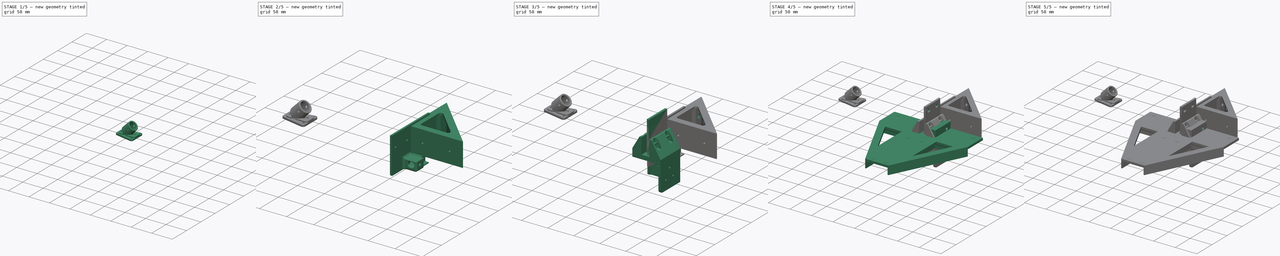
[diagram: build sequence overview — one tinted view per stage of 5, left to right]
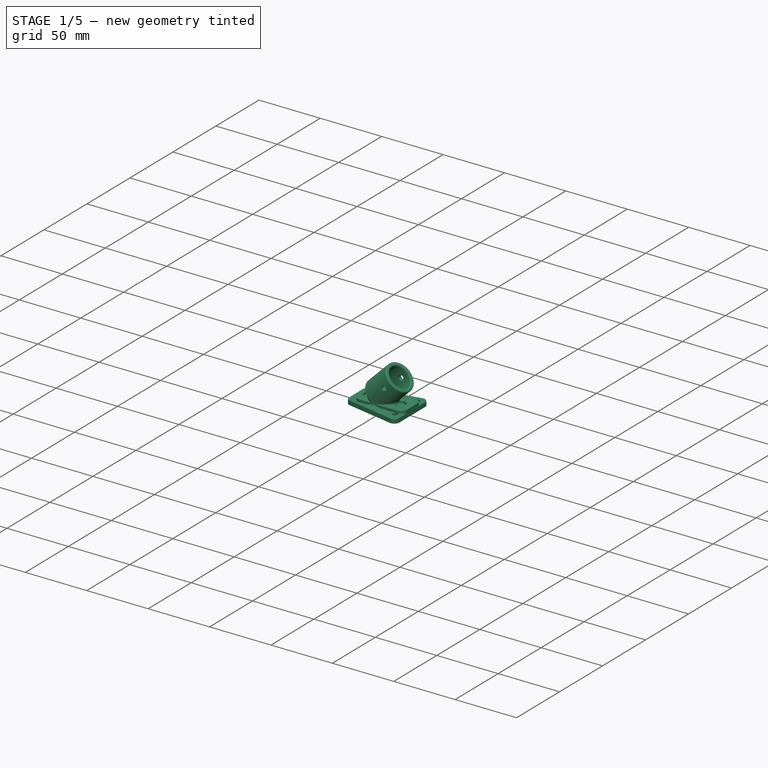
[diagram: stage 1 of 5 — iso view after this stage's code; geometry added in this stage tinted green]
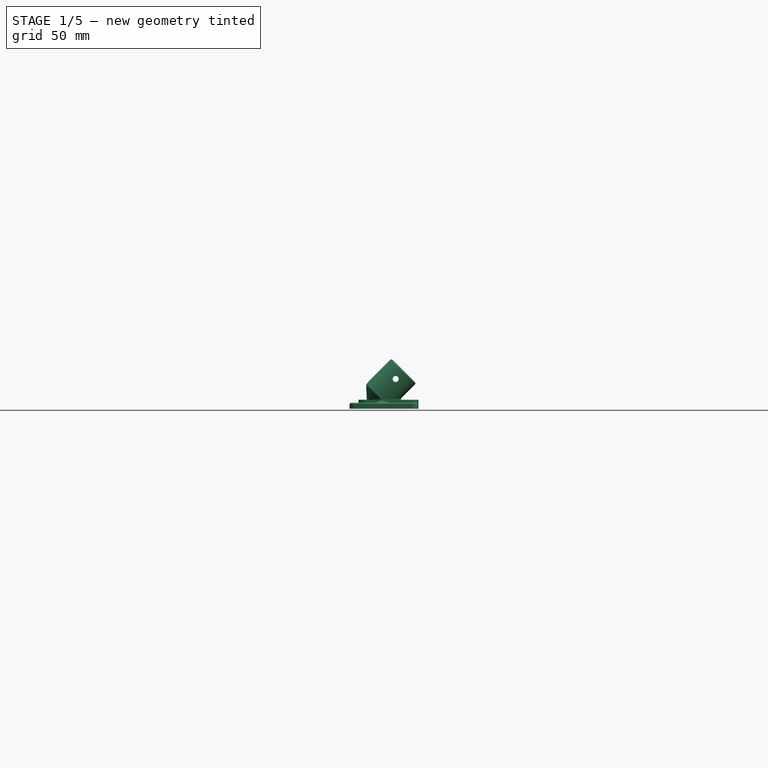
[diagram: stage 1 of 5 — front view after this stage's code; geometry added in this stage tinted green]
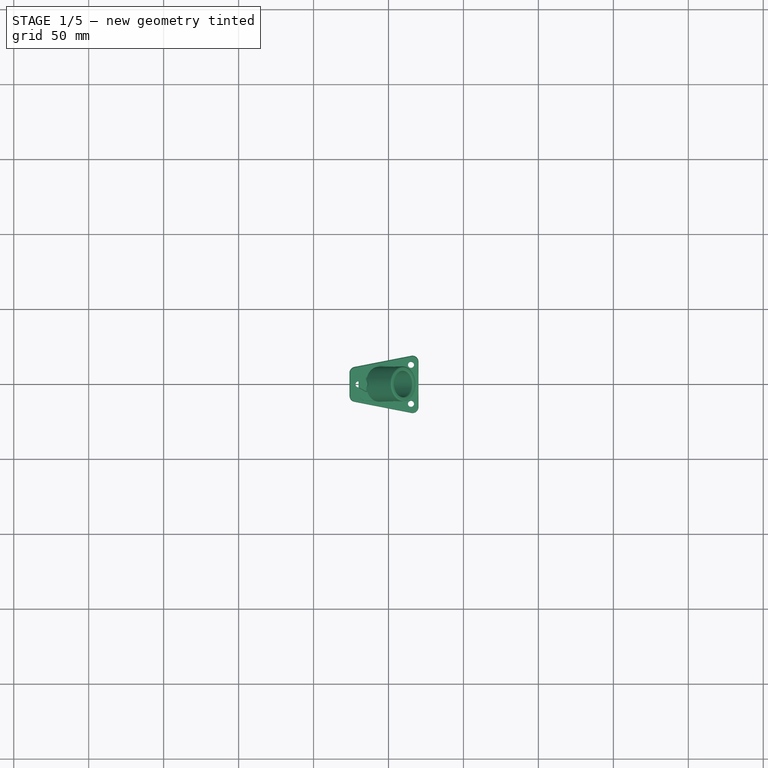
[diagram: stage 1 of 5 — top view after this stage's code; geometry added in this stage tinted green]
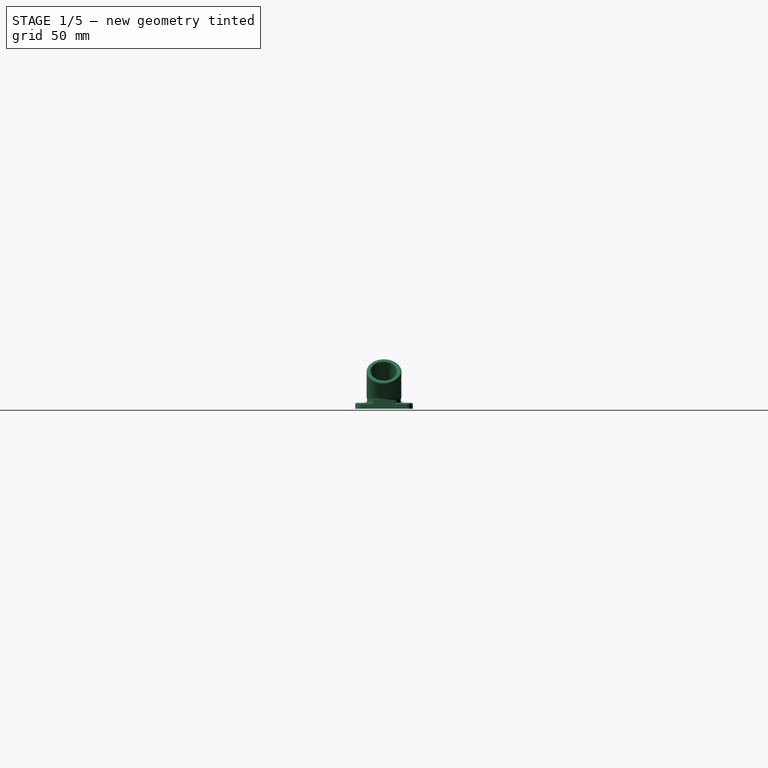
[diagram: stage 1 of 5 — right view after this stage's code; geometry added in this stage tinted green]
FCSTD DOCUMENT  (FreeCAD 0.21R33771 (Git))
Label: AlligningRoller
License: All rights reserved
LicenseURL: http://en.wikipedia.org/wiki/All_rights_reserved
objects: Sketcher::SketchObject×57, PartDesign::Pocket×33, PartDesign::Fillet×25, PartDesign::Body×12, PartDesign::Chamfer×11, PartDesign::Pad×11, PartDesign::Revolution×7, PartDesign::Groove×6, PartDesign::PolarPattern×2, Spreadsheet::Sheet×1, App::Part×1
note: 257 computed .brp shape members not serialized (recipe doc carries the construction recipe); baked Part::Feature solids carry a one-line shape summary decoded from their .brp

FEATURE [PartDesign::Body] Body009  label="FrameRopeFixatorBody"
  Group = -> [Sketch045,Pad008,Sketch046,Pocket024,Sketch047,Pocket025,Sketch048,Pocket026,Fillet014,Fillet015,Fillet016]
  Origin = -> Origin010
  Tip = -> Fillet016
FEATURE [Sketcher::SketchObject] Sketch049
  FullyConstrained = true
  MapMode = 5
  Placement = pos=(0,0,0) rot=(1,0,0;1.5708rad)
  Support = -> [XZ_Plane011]
  sketch-geometry (8):
    g0: LineSegment StartX=-250 StartY=4 StartZ=0 EndX=0 EndY=4 EndZ=0
    g1: LineSegment StartX=0 StartY=215 StartZ=0 EndX=-215 EndY=2.84e-14 EndZ=0
    g2: LineSegment StartX=-215 StartY=16.4049 StartZ=0 EndX=-198.029 EndY=33.3754 EndZ=0
    g3: LineSegment StartX=-198.029 StartY=33.3754 StartZ=0 EndX=-195.908 EndY=31.2541 EndZ=0
    g4: LineSegment StartX=-195.908 StartY=31.2541 StartZ=0 EndX=-210.05 EndY=17.112 EndZ=0
    g5: LineSegment StartX=-210.05 StartY=17.112 StartZ=0 EndX=-203.969 EndY=11.0309 EndZ=0
    g6: LineSegment StartX=-203.969 StartY=11.0309 StartZ=0 EndX=-215 EndY=0 EndZ=0
    g7: LineSegment StartX=-215 StartY=0 StartZ=0 EndX=-215 EndY=16.4049 EndZ=0
  constraints (25):
    c: DistanceY(g-1,g0) = 4
    c: Horizontal(g0)
    c: PointOnObject(g0,g-2)
    c: PointOnObject(g1,g-2)
    c: PointOnObject(g1,g-1)
    c: Angle(g-1,g1) = 0.785398
    c: DistanceX(g1,g-1) = 215
    c: DistanceX(g0,g0) = 250
    c: Coincident(g2,g3)
    c: Coincident(g3,g4)
    c: Coincident(g4,g5)
    c: PointOnObject(g5,g1)
    c: Coincident(g5,g6)
    c: Coincident(g6,g1)
    c: Coincident(g6,g7)
    c: Coincident(g7,g2)
    c: Vertical(g7)
    c: Parallel(g4,g2)
    c: Parallel(g4,g1)
    c: Perpendicular(g4,g5)
    c: Perpendicular(g1,g3)
    c: Distance(g2,g4) = 3
    c: Distance(g3,g1) = 8.6
    c: Distance(g4) = 20
    c: Distance(g2,g5) = 4
FEATURE [PartDesign::Revolution] Revolution005
  Angle = 360
  Axis = (-215,4.77e-14,-215)
  Base = (0,-4.77e-14,215)
  Placement = pos=(0,0,0) rot=(1,0,0;1.5708rad)
  Profile = -> Sketch049
  ReferenceAxis = -> Sketch049 [Axis1]
  Refine = true
  Reversed = true
FEATURE [Sketcher::SketchObject] Sketch050
  FullyConstrained = false
  MapMode = 5
  Placement = pos=(0,0,0) rot=(1,0,0;1.5708rad)
  Support = -> [XZ_Plane011]
  sketch-geometry (7):
    g0: LineSegment StartX=50.7375 StartY=6 StartZ=0 EndX=-273.496 EndY=6 EndZ=0
    g1: LineSegment StartX=-220 StartY=6 StartZ=0 EndX=-180 EndY=6 EndZ=0
    g2: LineSegment StartX=-180 StartY=6 StartZ=0 EndX=-180 EndY=0 EndZ=0
    g3: LineSegment StartX=-180 StartY=0 StartZ=0 EndX=-220 EndY=0 EndZ=0
    g4: LineSegment StartX=-220 StartY=0 StartZ=0 EndX=-220 EndY=6 EndZ=0
    g5: LineSegment StartX=-215 StartY=44.016 StartZ=0 EndX=-215 EndY=-59.3618 EndZ=0
    g6: LineSegment StartX=-190 StartY=44.5887 StartZ=0 EndX=-190 EndY=-58.5027 EndZ=0
  constraints (18):
    c: Horizontal(g0)
    c: DistanceY(g-1,g0) = 6
    c: Coincident(g1,g2)
    c: Coincident(g2,g3)
    c: Coincident(g3,g4)
    c: Coincident(g4,g1)
    c: Horizontal(g1)
    c: Horizontal(g3)
    c: Vertical(g2)
    c: Vertical(g4)
    c: PointOnObject(g2,g-1)
    c: Vertical(g5)
    c: Vertical(g6)
    c: DistanceX(g5,g-1) = 215
    c: DistanceX(g6,g-1) = 190
    c: PointOnObject(g1,g0)
    c: Distance(g1,g6) = 10
    c: Distance(g1,g5) = 5
FEATURE [PartDesign::Pad] Pad009
  BaseFeature = -> Revolution005
  Direction = (0,-1,-2e-16)
  Length = 22
  Length2 = 10
  Midplane = true
  Placement = pos=(0,0,0) rot=(1,0,0;1.5708rad)
  Profile = -> Sketch050
  ReferenceAxis = -> Sketch050 [N_Axis]
  Refine = true
  Type = 0
FEATURE [PartDesign::Fillet] Fillet017
  Base = -> Pad009 [Edge19,Edge21,Edge14,Edge12]
  BaseFeature = -> Pad009
  Placement = pos=(0,0,0) rot=(1,0,0;1.5708rad)
  Radius = 5
  Refine = true
  SupportTransform = false
  UseAllEdges = false
FEATURE [Sketcher::SketchObject] Sketch051
  FullyConstrained = false
  MapMode = 5
  Support = -> [XY_Plane011]
  sketch-geometry (4):
    g0: LineSegment StartX=-215 StartY=88.3143 StartZ=0 EndX=-215 EndY=-93.321 EndZ=0
    g1: LineSegment StartX=-190 StartY=88.9516 StartZ=0 EndX=-190 EndY=-91.4091 EndZ=0
    g2: Circle CenterX=-215 CenterY=0 CenterZ=0 NormalX=0 NormalY=0 NormalZ=1 AngleXU=0 Radius=2
    g3: Circle CenterX=-190 CenterY=0 CenterZ=0 NormalX=0 NormalY=0 NormalZ=1 AngleXU=0 Radius=2
  constraints (10):
    c: Vertical(g0)
    c: Vertical(g1)
    c: DistanceX(g1,g-1) = 190
    c: DistanceX(g0,g-1) = 215
    c: Equal(g3,g2)
    c: Diameter(g3) = 4
    c: PointOnObject(g3,g-1)
    c: PointOnObject(g2,g-1)
    c: PointOnObject(g3,g1)
    c: PointOnObject(g2,g0)
FEATURE [PartDesign::Pocket] Pocket027
  BaseFeature = -> Fillet017
  Direction = (0,0,-1)
  Length = 30
  Length2 = 5
  Placement = pos=(0,0,0) rot=(1,0,0;1.5708rad)
  Profile = -> Sketch051
  ReferenceAxis = -> Sketch051 [N_Axis]
  Refine = true
  Reversed = true
  Type = 0
FEATURE [Sketcher::SketchObject] Sketch052
  AttachmentOffset = pos=(0,0,4) rot=(0,0,1;0rad)
  FullyConstrained = false
  MapMode = 5
  Placement = pos=(0,0,4) rot=(0,0,1;0rad)
  Support = -> [XY_Plane011]
  sketch-geometry (16):
    g0: LineSegment StartX=-215 StartY=50.5358 StartZ=0 EndX=-215 EndY=-50.2799 EndZ=0
    g1: LineSegment StartX=-190 StartY=49.7681 StartZ=0 EndX=-190 EndY=-48.4887 EndZ=0
    g2: LineSegment StartX=-215 StartY=-4.67654 StartZ=0 EndX=-210.95 EndY=-2.33827 EndZ=0
    g3: LineSegment StartX=-210.95 StartY=-2.33827 StartZ=0 EndX=-210.95 EndY=2.33827 EndZ=0
    g4: LineSegment StartX=-210.95 StartY=2.33827 StartZ=0 EndX=-215 EndY=4.67654 EndZ=0
    g5: LineSegment StartX=-215 StartY=4.67654 StartZ=0 EndX=-219.05 EndY=2.33827 EndZ=0
    g6: LineSegment StartX=-219.05 StartY=2.33827 StartZ=0 EndX=-219.05 EndY=-2.33827 EndZ=0
    g7: LineSegment StartX=-219.05 StartY=-2.33827 StartZ=0 EndX=-215 EndY=-4.67654 EndZ=0
    g8: Circle CenterX=-215 CenterY=0 CenterZ=0 NormalX=0 NormalY=0 NormalZ=1 AngleXU=0 Radius=4.67654
    g9: LineSegment StartX=-190 StartY=-4.67654 StartZ=0 EndX=-185.95 EndY=-2.33827 EndZ=0
    g10: LineSegment StartX=-185.95 StartY=-2.33827 StartZ=0 EndX=-185.95 EndY=2.33827 EndZ=0
    g11: LineSegment StartX=-185.95 StartY=2.33827 StartZ=0 EndX=-190 EndY=4.67654 EndZ=0
    g12: LineSegment StartX=-190 StartY=4.67654 StartZ=0 EndX=-194.05 EndY=2.33827 EndZ=0
    g13: LineSegment StartX=-194.05 StartY=2.33827 StartZ=0 EndX=-194.05 EndY=-2.33827 EndZ=0
    g14: LineSegment StartX=-194.05 StartY=-2.33827 StartZ=0 EndX=-190 EndY=-4.67654 EndZ=0
    g15: Circle CenterX=-190 CenterY=0 CenterZ=0 NormalX=0 NormalY=0 NormalZ=1 AngleXU=0 Radius=4.67654
  constraints (38):
    c: Vertical(g0)
    c: Vertical(g1)
    c: DistanceX(g1,g-1) = 190
    c: DistanceX(g0,g-1) = 215
    c: Coincident(g2,g3)
    c: Coincident(g3,g4)
    c: Coincident(g4,g5)
    c: Coincident(g5,g6)
    c: Coincident(g6,g7)
    c: Coincident(g7,g2)
    c: Equal(g2, g3-g7) x5
    c: PointOnObject(g2,g8)
    c: PointOnObject(g3,g8)
    c: PointOnObject(g4,g8)
    c: PointOnObject(g5,g8)
    c: PointOnObject(g6,g8)
    c: PointOnObject(g7,g8)
    c: Coincident(g9,g10)
    c: Coincident(g10,g11)
    c: Coincident(g11,g12)
    c: Coincident(g12,g13)
    c: Coincident(g13,g14)
    c: Coincident(g14,g9)
    c: Equal(g9, g10-g14) x5
    c: PointOnObject(g9,g15)
    c: PointOnObject(g10,g15)
    c: PointOnObject(g11,g15)
    c: PointOnObject(g12,g15)
    c: PointOnObject(g13,g15)
    c: PointOnObject(g14,g15)
    c: Equal(g8,g15)
    c: Distance(g13,g9) = 8.1
    c: PointOnObject(g15,g-1)
    c: PointOnObject(g8,g-1)
    c: PointOnObject(g15,g1)
    c: PointOnObject(g8,g0)
    c: Vertical(g3)
    c: Vertical(g13)
FEATURE [PartDesign::Pocket] Pocket028
  BaseFeature = -> Pocket027
  Direction = (0,0,-1)
  Length = 8
  Length2 = 5
  Placement = pos=(0,0,0) rot=(1,0,0;1.5708rad)
  Profile = -> Sketch052
  ReferenceAxis = -> Sketch052 [N_Axis]
  Refine = true
  Reversed = true
  Type = 0
FEATURE [Sketcher::SketchObject] Sketch053
  FullyConstrained = true
  MapMode = 5
  Placement = pos=(0,0,0) rot=(1,0,0;1.5708rad)
  Support = -> [XZ_Plane011]
  sketch-geometry (2):
    g0: LineSegment StartX=0 StartY=215 StartZ=0 EndX=-215 EndY=0 EndZ=0
    g1: Circle CenterX=-195.201 CenterY=19.799 CenterZ=0 NormalX=0 NormalY=0 NormalZ=1 AngleXU=0 Radius=2
  constraints (7):
    c: PointOnObject(g0,g-2)
    c: PointOnObject(g0,g-1)
    c: DistanceX(g-2,g0) = -215
    c: DistanceY(g-1,g0) = 215
    c: Diameter(g1) = 4
    c: PointOnObject(g1,g0)
    c: Distance(g0,g1) = 28
FEATURE [PartDesign::Pocket] Pocket029
  BaseFeature = -> Pocket028
  Direction = (0,1,2e-16)
  Length = 50
  Length2 = 5
  Midplane = true
  Placement = pos=(0,0,0) rot=(1,0,0;1.5708rad)
  Profile = -> Sketch053
  ReferenceAxis = -> Sketch053 [N_Axis]
  Refine = true
  Type = 0
FEATURE [PartDesign::Fillet] Fillet018
  Base = -> Pocket029 [Edge109,Edge53]
  BaseFeature = -> Pocket029
  Placement = pos=(0,0,0) rot=(1,0,0;1.5708rad)
  Radius = 1
  Refine = true
  SupportTransform = false
  UseAllEdges = false
FEATURE [PartDesign::Chamfer] Chamfer010
  Angle = 45
  Base = -> Fillet018 [Edge41,Edge40,Edge44,Edge43,Edge42]
  BaseFeature = -> Fillet018
  ChamferType = 0
  FlipDirection = false
  Placement = pos=(0,0,0) rot=(1,0,0;1.5708rad)
  Refine = true
  Size = 0.5
  Size2 = 1
  SupportTransform = false
  UseAllEdges = false
FEATURE [PartDesign::Chamfer] Chamfer011
  Angle = 45
  Base = -> Chamfer010 [Edge99,Edge100,Edge101,Edge102,Edge98]
  BaseFeature = -> Chamfer010
  ChamferType = 0
  FlipDirection = false
  Placement = pos=(0,0,0) rot=(1,0,0;1.5708rad)
  Refine = true
  Size = 0.5
  Size2 = 1
  SupportTransform = false
  UseAllEdges = false
FEATURE [PartDesign::Body] Body010  label="VerticalFrameSupportBottom"
  Group = -> [Sketch049,Revolution005,Sketch050,Pad009,Fillet017,Sketch051,Pocket027,Sketch052,Pocket028,Sketch053,Pocket029,Fillet018,Chamfer010,Chamfer011,Fillet019]
  Origin = -> Origin011
  Tip = -> Fillet019
FEATURE [Sketcher::SketchObject] Sketch054
  FullyConstrained = true
  MapMode = 5
  Placement = pos=(0,0,0) rot=(1,0,0;1.5708rad)
  Support = -> [XZ_Plane012]
  sketch-geometry (8):
    g0: LineSegment StartX=-250 StartY=4 StartZ=0 EndX=0 EndY=4 EndZ=0
    g1: LineSegment StartX=0 StartY=215 StartZ=0 EndX=-215 EndY=2.84e-14 EndZ=0
    g2: LineSegment StartX=-215 StartY=16.4049 StartZ=0 EndX=-198.029 EndY=33.3754 EndZ=0
    g3: LineSegment StartX=-198.029 StartY=33.3754 StartZ=0 EndX=-195.908 EndY=31.2541 EndZ=0
    g4: LineSegment StartX=-195.908 StartY=31.2541 StartZ=0 EndX=-210.05 EndY=17.112 EndZ=0
    g5: LineSegment StartX=-210.05 StartY=17.112 StartZ=0 EndX=-203.969 EndY=11.0309 EndZ=0
    g6: LineSegment StartX=-203.969 StartY=11.0309 StartZ=0 EndX=-215 EndY=2.84e-14 EndZ=0
    g7: LineSegment StartX=-215 StartY=2.84e-14 StartZ=0 EndX=-215 EndY=16.4049 EndZ=0
  constraints (25):
    c: DistanceY(g-1,g0) = 4
    c: Horizontal(g0)
    c: PointOnObject(g0,g-2)
    c: PointOnObject(g1,g-2)
    c: PointOnObject(g1,g-1)
    c: Angle(g-1,g1) = 0.785398
    c: DistanceX(g1,g-1) = 215
    c: DistanceX(g0,g0) = 250
    c: Coincident(g2,g3)
    c: Coincident(g3,g4)
    c: Coincident(g4,g5)
    c: PointOnObject(g5,g1)
    c: Coincident(g5,g6)
    c: Coincident(g6,g1)
    c: Coincident(g6,g7)
    c: Coincident(g7,g2)
    c: Vertical(g7)
    c: Parallel(g4,g2)
    c: Parallel(g4,g1)
    c: Perpendicular(g4,g5)
    c: Perpendicular(g1,g3)
    c: Distance(g2,g4) = 3
    c: Distance(g3,g1) = 8.6
    c: Distance(g4) = 20
    c: Distance(g2,g5) = 4
FEATURE [PartDesign::Revolution] Revolution006
  Angle = 360
  Axis = (-215,4.77e-14,-215)
  Base = (0,-4.77e-14,215)
  Placement = pos=(0,0,0) rot=(1,0,0;1.5708rad)
  Profile = -> Sketch054
  ReferenceAxis = -> Sketch054 [Axis1]
  Refine = true
  Reversed = true
FEATURE [Sketcher::SketchObject] Sketch055
  FullyConstrained = false
  MapMode = 5
  Support = -> [XY_Plane012]
  sketch-geometry (13):
    g0: LineSegment StartX=-220 StartY=92.6784 StartZ=0 EndX=-220 EndY=-68.5421 EndZ=0
    g1: LineSegment StartX=-190 StartY=20 StartZ=0 EndX=-190 EndY=-68.5421 EndZ=0
    g2: LineSegment StartX=-226 StartY=11 StartZ=0 EndX=-226 EndY=-11 EndZ=0
    g3: LineSegment StartX=-226 StartY=-11 StartZ=0 EndX=-180 EndY=-20 EndZ=0
    g4: LineSegment StartX=-180 StartY=-20 StartZ=0 EndX=-180 EndY=20 EndZ=0
    g5: LineSegment StartX=-180 StartY=20 StartZ=0 EndX=-226 EndY=11 EndZ=0
    g6: LineSegment StartX=-258.16 StartY=13 StartZ=0 EndX=30.716 EndY=13 EndZ=0
    g7: LineSegment StartX=-256.574 StartY=-13 StartZ=0 EndX=30.716 EndY=-13 EndZ=0
    g8: Circle CenterX=-220 CenterY=0 CenterZ=0 NormalX=0 NormalY=0 NormalZ=1 AngleXU=0 Radius=2
    g9: Circle CenterX=-185 CenterY=-13 CenterZ=0 NormalX=0 NormalY=0 NormalZ=1 AngleXU=0 Radius=2
    g10: Circle CenterX=-185 CenterY=13 CenterZ=0 NormalX=0 NormalY=0 NormalZ=1 AngleXU=0 Radius=0
    g11: Circle CenterX=-185 CenterY=13 CenterZ=0 NormalX=0 NormalY=0 NormalZ=1 AngleXU=0 Radius=2
    g12: LineSegment StartX=-185 StartY=58.6845 StartZ=0 EndX=-185 EndY=-74.5846 EndZ=0
  constraints (30):
    c: Vertical(g0)
    c: Vertical(g1)
    c: DistanceX(g1,g-1) = 190
    c: DistanceX(g0,g-1) = 220
    c: Coincident(g2,g3)
    c: Coincident(g3,g4)
    c: Coincident(g4,g5)
    c: Coincident(g5,g2)
    c: DistanceY(g4,g4) = 40
    c: DistanceY(g2,g2) = 22
    c: Symmetric(g2,g2,g-1)
    c: Symmetric(g4,g3,g-1)
    c: Distance(g4,g1) = 10
    c: Horizontal(g6)
    c: Horizontal(g7)
    c: Symmetric(g7,g6,g-1)
    c: DistanceY(g-1,g6) = 13
    c: Coincident(g11,g10)
    c: Equal(g8,g11)
    c: Equal(g11,g9)
    c: Diameter(g11) = 4
    c: Vertical(g12)
    c: Symmetric(g4,g1,g12)
    c: PointOnObject(g9,g12)
    c: PointOnObject(g10,g12)
    c: PointOnObject(g10,g6)
    c: PointOnObject(g9,g7)
    c: PointOnObject(g8,g-1)
    c: PointOnObject(g8,g0)
    c: Distance(g2,g0) = 6
FEATURE [PartDesign::Pad] Pad010
  BaseFeature = -> Revolution006
  Direction = (0,0,1)
  Length = 4
  Length2 = 10
  Placement = pos=(0,0,0) rot=(1,0,0;1.5708rad)
  Profile = -> Sketch055
  ReferenceAxis = -> Sketch055 [N_Axis]
  Refine = true
  Type = 0
FEATURE [Sketcher::SketchObject] Sketch056
  FullyConstrained = false
  MapMode = 5
  Support = -> [XY_Plane012]
  sketch-geometry (10):
    g0: LineSegment StartX=-220 StartY=92.6784 StartZ=0 EndX=-220 EndY=-68.5421 EndZ=0
    g1: LineSegment StartX=-190 StartY=20 StartZ=0 EndX=-190 EndY=-68.5421 EndZ=0
    g2: LineSegment StartX=-180 StartY=-20 StartZ=0 EndX=-180 EndY=20 EndZ=0
    g3: LineSegment StartX=-258.16 StartY=13 StartZ=0 EndX=30.716 EndY=13 EndZ=0
    g4: LineSegment StartX=-256.574 StartY=-13 StartZ=0 EndX=30.716 EndY=-13 EndZ=0
    g5: Circle CenterX=-220 CenterY=0 CenterZ=0 NormalX=0 NormalY=0 NormalZ=1 AngleXU=0 Radius=2
    g6: Circle CenterX=-185 CenterY=-13 CenterZ=0 NormalX=0 NormalY=0 NormalZ=1 AngleXU=0 Radius=2
    g7: Circle CenterX=-185 CenterY=13 CenterZ=0 NormalX=0 NormalY=0 NormalZ=1 AngleXU=0 Radius=0
    g8: Circle CenterX=-185 CenterY=13 CenterZ=0 NormalX=0 NormalY=0 NormalZ=1 AngleXU=0 Radius=2
    g9: LineSegment StartX=-185 StartY=58.6845 StartZ=0 EndX=-185 EndY=-74.5846 EndZ=0
  constraints (23):
    c: Vertical(g0)
    c: Vertical(g1)
    c: DistanceX(g1,g-1) = 190
    c: DistanceX(g0,g-1) = 220
    c: DistanceY(g2,g2) = 40
    c: Symmetric(g2,g2,g-1)
    c: Distance(g2,g1) = 10
    c: Horizontal(g3)
    c: Horizontal(g4)
    c: Symmetric(g4,g3,g-1)
    c: DistanceY(g-1,g3) = 13
    c: Coincident(g8,g7)
    c: Equal(g5,g8)
    c: Equal(g8,g6)
    c: Diameter(g8) = 4
    c: Vertical(g9)
    c: Symmetric(g2,g1,g9)
    c: PointOnObject(g6,g9)
    c: PointOnObject(g7,g9)
    c: PointOnObject(g7,g3)
    c: PointOnObject(g6,g4)
    c: PointOnObject(g5,g-1)
    c: PointOnObject(g5,g0)
FEATURE [PartDesign::Pocket] Pocket030
  BaseFeature = -> Pad010
  Direction = (0,0,-1)
  Length = 50
  Length2 = 5
  Placement = pos=(0,0,0) rot=(1,0,0;1.5708rad)
  Profile = -> Sketch056
  ReferenceAxis = -> Sketch056 [N_Axis]
  Refine = true
  Reversed = true
  Type = 0
FEATURE [Sketcher::SketchObject] Sketch057
  AttachmentOffset = pos=(0,0,4) rot=(0,0,1;0rad)
  FullyConstrained = false
  MapMode = 5
  Placement = pos=(0,0,4) rot=(0,0,1;0rad)
  Support = -> [XY_Plane012]
  sketch-geometry (8):
    g0: LineSegment StartX=-220 StartY=92.6784 StartZ=0 EndX=-220 EndY=-68.5421 EndZ=0
    g1: LineSegment StartX=-190 StartY=20 StartZ=0 EndX=-190 EndY=-68.5421 EndZ=0
    g2: LineSegment StartX=-180 StartY=-20 StartZ=0 EndX=-180 EndY=20 EndZ=0
    g3: LineSegment StartX=-258.16 StartY=13 StartZ=0 EndX=30.716 EndY=13 EndZ=0
    g4: LineSegment StartX=-256.574 StartY=-13 StartZ=0 EndX=30.716 EndY=-13 EndZ=0
    g5: Circle CenterX=-220 CenterY=0 CenterZ=0 NormalX=0 NormalY=0 NormalZ=1 AngleXU=0 Radius=6
    g6: Circle CenterX=-185 CenterY=13 CenterZ=0 NormalX=0 NormalY=0 NormalZ=1 AngleXU=0 Radius=0
    g7: LineSegment StartX=-185 StartY=58.6845 StartZ=0 EndX=-185 EndY=-74.5846 EndZ=0
  constraints (18):
    c: Vertical(g0)
    c: Vertical(g1)
    c: DistanceX(g1,g-1) = 190
    c: DistanceX(g0,g-1) = 220
    c: DistanceY(g2,g2) = 40
    c: Symmetric(g2,g2,g-1)
    c: Distance(g2,g1) = 10
    c: Horizontal(g3)
    c: Horizontal(g4)
    c: Symmetric(g4,g3,g-1)
    c: DistanceY(g-1,g3) = 13
    c: Vertical(g7)
    c: Symmetric(g2,g1,g7)
    c: PointOnObject(g6,g7)
    c: PointOnObject(g6,g3)
    c: PointOnObject(g5,g-1)
    c: PointOnObject(g5,g0)
    c: Diameter(g5) = 12
FEATURE [PartDesign::Pocket] Pocket031
  BaseFeature = -> Pocket030
  Direction = (0,0,-1)
  Length = 20
  Length2 = 5
  Placement = pos=(0,0,0) rot=(1,0,0;1.5708rad)
  Profile = -> Sketch057
  ReferenceAxis = -> Sketch057 [N_Axis]
  Refine = true
  Reversed = true
  Type = 0
FEATURE [PartDesign::Fillet] Fillet020
  Base = -> Pocket031 [Edge33,Edge36]
  BaseFeature = -> Pocket031
  Placement = pos=(0,0,0) rot=(1,0,0;1.5708rad)
  Radius = 1
  Refine = true
  SupportTransform = false
  UseAllEdges = false
FEATURE [PartDesign::Fillet] Fillet021
  Base = -> Fillet020 [Edge27,Edge25,Edge24,Edge29]
  BaseFeature = -> Fillet020
  Placement = pos=(0,0,0) rot=(1,0,0;1.5708rad)
  Radius = 4
  Refine = true
  SupportTransform = false
  UseAllEdges = false
FEATURE [PartDesign::Fillet] Fillet022
  Base = -> Fillet021 [Edge8]
  BaseFeature = -> Fillet021
  Placement = pos=(0,0,0) rot=(1,0,0;1.5708rad)
  Radius = 1
  Refine = true
  SupportTransform = false
  UseAllEdges = false
FEATURE [PartDesign::Fillet] Fillet023
  Base = -> Fillet022 [Edge38,Edge34,Edge35,Edge36]
  BaseFeature = -> Fillet022
  Placement = pos=(0,0,0) rot=(1,0,0;1.5708rad)
  Radius = 2
  Refine = true
  SupportTransform = false
  UseAllEdges = false
FEATURE [PartDesign::Fillet] Fillet024
  Base = -> Fillet023 [Edge1]
  BaseFeature = -> Fillet023
  Placement = pos=(0,0,0) rot=(1,0,0;1.5708rad)
  Radius = 2
  Refine = true
  SupportTransform = false
  UseAllEdges = false
FEATURE [Sketcher::SketchObject] Sketch058
  FullyConstrained = true
  MapMode = 5
  Placement = pos=(0,0,0) rot=(1,0,0;1.5708rad)
  Support = -> [XZ_Plane012]
  sketch-geometry (2):
    g0: LineSegment StartX=0 StartY=215 StartZ=0 EndX=-215 EndY=0 EndZ=0
    g1: Circle CenterX=-195.201 CenterY=19.799 CenterZ=0 NormalX=0 NormalY=0 NormalZ=1 AngleXU=0 Radius=2
  constraints (7):
    c: PointOnObject(g0,g-2)
    c: PointOnObject(g0,g-1)
    c: DistanceX(g-2,g0) = -215
    c: DistanceY(g-1,g0) = 215
    c: Diameter(g1) = 4
    c: PointOnObject(g1,g0)
    c: Distance(g0,g1) = 28
FEATURE [PartDesign::Pocket] Pocket032
  BaseFeature = -> Fillet024
  Direction = (0,1,2e-16)
  Length = 40
  Length2 = 5
  Midplane = true
  Placement = pos=(0,0,0) rot=(1,0,0;1.5708rad)
  Profile = -> Sketch058
  ReferenceAxis = -> Sketch058 [N_Axis]
  Refine = true
  Type = 0
FEATURE [PartDesign::Body] Body011  label="VerticalFrameSupportUpper"
  Group = -> [Sketch054,Revolution006,Sketch055,Pad010,Sketch056,Pocket030,Sketch057,Pocket031,Fillet020,Fillet021,Fillet022,Fillet023,Fillet024,Sketch058,Pocket032]
  Origin = -> Origin012
  Tip = -> Pocket032
FEATURE [App::Part] Part  label="PulleyPart"
  Group = -> [Body,Body001,Body002,Body003,Body004,Body005,Body006,Body007,Body008,Body009,Body010,Body011]
  Origin = -> Origin
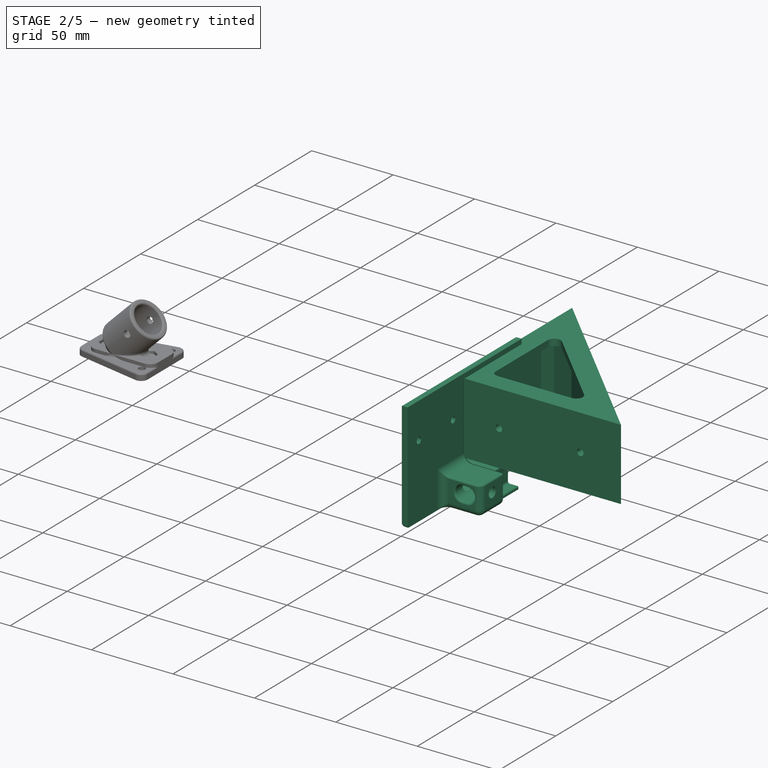
[diagram: stage 2 of 5 — iso view after this stage's code; geometry added in this stage tinted green]
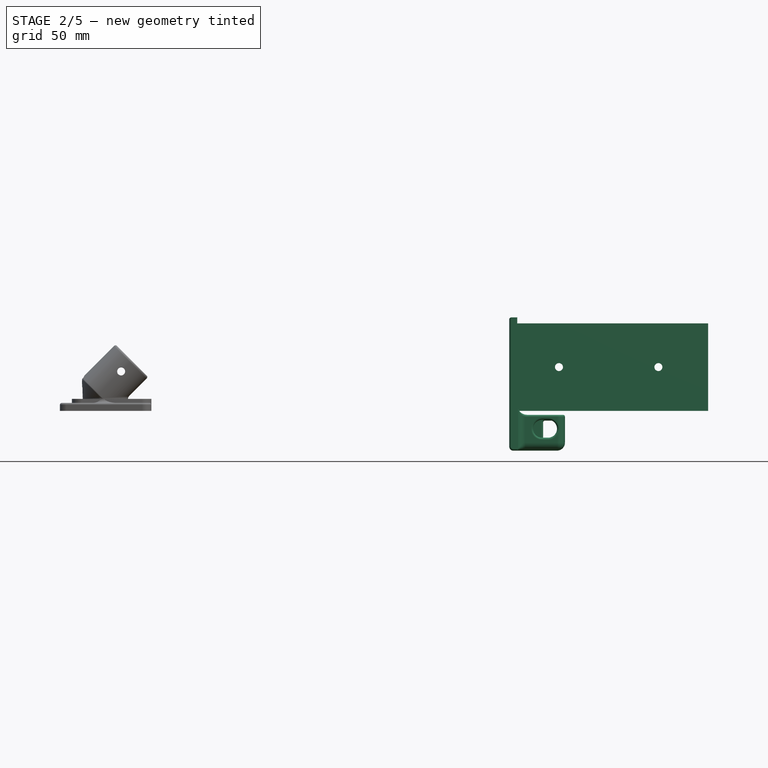
[diagram: stage 2 of 5 — front view after this stage's code; geometry added in this stage tinted green]
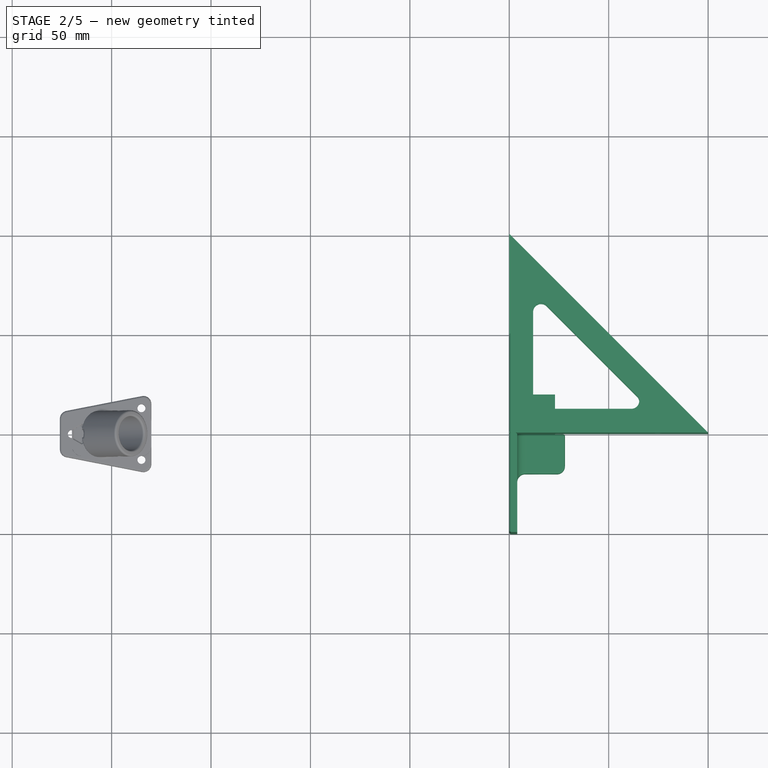
[diagram: stage 2 of 5 — top view after this stage's code; geometry added in this stage tinted green]
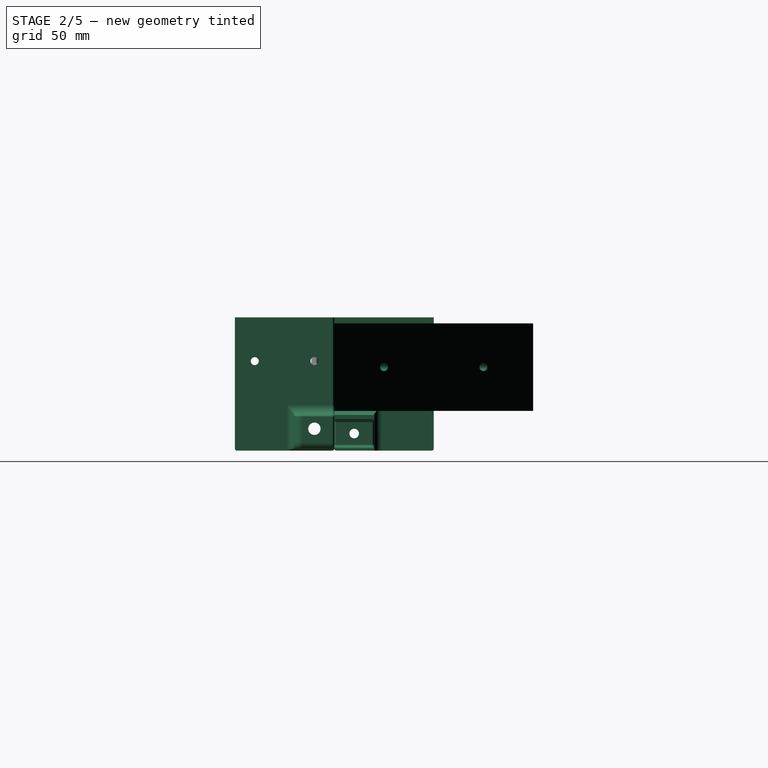
[diagram: stage 2 of 5 — right view after this stage's code; geometry added in this stage tinted green]
FEATURE [PartDesign::Body] Body004  label="BaseRopeRegulaorBody"
  Group = -> [Sketch021,Pad002,Sketch022,Pocket006,Fillet004,Chamfer005]
  Origin = -> Origin005
  Tip = -> Chamfer005
FEATURE [Sketcher::SketchObject] Sketch023
  FullyConstrained = true
  MapMode = 5
  Support = -> [XY_Plane006]
  expr: Constraints[20] = <<Spreadsheet>>.mmCornerHight
  expr: Constraints[21] = <<Spreadsheet>>.mmCornerHight
  expr: Constraints[22] = <<Spreadsheet>>.mmCornerHight
  expr: Constraints[8] = <<Spreadsheet>>.mmCornerSide
  sketch-geometry (9):
    g0: LineSegment StartX=0 StartY=100 StartZ=0 EndX=0 EndY=0 EndZ=0
    g1: LineSegment StartX=0 StartY=0 StartZ=0 EndX=100 EndY=0 EndZ=0
    g2: LineSegment StartX=100 StartY=0 StartZ=0 EndX=0 EndY=100 EndZ=0
    g3: LineSegment StartX=12 StartY=16 StartZ=0 EndX=12 EndY=61.3726 EndZ=0
    g4: LineSegment StartX=18.8284 StartY=64.201 StartZ=0 EndX=64.201 EndY=18.8284 EndZ=0
    g5: LineSegment StartX=16 StartY=12 StartZ=0 EndX=61.3726 EndY=12 EndZ=0
    g6: ArcOfCircle CenterX=16 CenterY=61.3726 CenterZ=0 NormalX=0 NormalY=0 NormalZ=1 AngleXU=0 Radius=4 StartAngle=0.785398 EndAngle=3.14159
    g7: ArcOfCircle CenterX=16 CenterY=16 CenterZ=0 NormalX=0 NormalY=0 NormalZ=1 AngleXU=0 Radius=4 StartAngle=3.14159 EndAngle=4.71239
    g8: ArcOfCircle CenterX=61.3726 CenterY=16 CenterZ=0 NormalX=0 NormalY=0 NormalZ=1 AngleXU=0 Radius=4 StartAngle=4.71239 EndAngle=7.06858
  constraints (23):
    c: PointOnObject(g0,g-2)
    c: Coincident(g0,g-1)
    c: Coincident(g0,g1)
    c: PointOnObject(g1,g-1)
    c: Coincident(g1,g2)
    c: Coincident(g2,g0)
    c: Vertical(g3)
    c: Equal(g1,g0)
    c: DistanceX(g1,g1) = 100
    c: Horizontal(g5)
    c: Parallel(g4,g2)
    c: Tangent(g4,g6) = 1.5708
    c: Tangent(g3,g6) = 1.5708
    c: Distance(g6,g4) = 4
    c: Tangent(g3,g7) = 1.5708
    c: Tangent(g5,g7) = -1.5708
    c: Distance(g7,g5) = 4
    c: Tangent(g4,g8) = 1.5708
    c: Tangent(g5,g8) = -1.5708
    c: Distance(g8,g4) = 4
    c: Distance(g1,g5) = 12
    c: Distance(g3,g0) = 12
    c: Distance(g4,g2) = 12
FEATURE [PartDesign::Pad] Pad003
  Direction = (0,0,1)
  Length = 44
  Length2 = 10
  Profile = -> Sketch023
  ReferenceAxis = -> Sketch023 [N_Axis]
  Type = 0
  expr: Length = <<Spreadsheet>>.mmCornerWidth
FEATURE [Sketcher::SketchObject] Sketch024
  AttachmentOffset = pos=(-1,0,4) rot=(0,0,1;0rad)
  ExternalGeometry = -> [Pad003,Sketch023]
  FullyConstrained = false
  MapMode = 5
  Placement = pos=(-1,0,4) rot=(0,0,1;0rad)
  Support = -> [XY_Plane006]
  expr: .AttachmentOffset.Base.z = <<Spreadsheet>>.mmCornerWall
  expr: Constraints[20] = <<Spreadsheet>>.mmCornerWall
  expr: Constraints[21] = <<Spreadsheet>>.mmCornerWall
  expr: Constraints[22] = <<Spreadsheet>>.mmCornerWall
  expr: Constraints[6] = <<Spreadsheet>>.mmCornerSide / 4
  expr: Constraints[7] = <<Spreadsheet>>.mmCornerSide / 4
  expr: Constraints[8] = <<Spreadsheet>>.mmCornerSide / 4 * 3
  expr: Constraints[9] = <<Spreadsheet>>.mmCornerSide / 4 * 3
  sketch-geometry (10):
    g0: LineSegment StartX=5 StartY=80.6863 StartZ=0 EndX=5 EndY=8 EndZ=0
    g1: LineSegment StartX=9 StartY=4 StartZ=0 EndX=81.6863 EndY=4 EndZ=0
    g2: LineSegment StartX=84.5147 StartY=10.8284 StartZ=0 EndX=11.8284 EndY=83.5147 EndZ=0
    g3: LineSegment StartX=75 StartY=226.486 StartZ=0 EndX=75 EndY=-25.9527 EndZ=0
    g4: LineSegment StartX=-90.1147 StartY=75 StartZ=0 EndX=233.802 EndY=75 EndZ=0
    g5: LineSegment StartX=-88.72 StartY=25 StartZ=0 EndX=238.684 EndY=25 EndZ=0
    g6: LineSegment StartX=25 StartY=228.23 StartZ=0 EndX=25 EndY=-26.3014 EndZ=0
    g7: ArcOfCircle CenterX=9 CenterY=80.6863 CenterZ=0 NormalX=0 NormalY=0 NormalZ=1 AngleXU=0 Radius=4 StartAngle=0.785398 EndAngle=3.14159
    g8: ArcOfCircle CenterX=9 CenterY=8 CenterZ=0 NormalX=0 NormalY=0 NormalZ=1 AngleXU=0 Radius=4 StartAngle=3.14159 EndAngle=4.71239
    g9: ArcOfCircle CenterX=81.6863 CenterY=8 CenterZ=0 NormalX=0 NormalY=0 NormalZ=1 AngleXU=0 Radius=4 StartAngle=4.71239 EndAngle=7.06858
  constraints (23):
    c: Vertical(g0)
    c: Horizontal(g1)
    c: Vertical(g3)
    c: Horizontal(g4)
    c: Horizontal(g5)
    c: Vertical(g6)
    c: DistanceX(g-1,g6) = 25
    c: DistanceY(g-1,g5) = 25
    c: DistanceY(g-1,g4) = 75
    c: DistanceX(g-2,g3) = 75
    c: Equal(g0,g1)
    c: Tangent(g0,g7) = -1.5708
    c: Tangent(g2,g7) = -1.5708
    c: Tangent(g1,g8) = -1.5708
    c: Tangent(g0,g8) = -1.5708
    c: Tangent(g2,g9) = -1.5708
    c: Tangent(g1,g9) = -1.5708
    c: Distance(g7,g2) = 4
    c: Distance(g8,g1) = 4
    c: Distance(g9,g2) = 4
    c: DistanceY(g-1,g1) = 4
    c: Distance(g2,g-3) = 4
    c: Distance(g0,g-5) = 4
FEATURE [PartDesign::Pocket] Pocket007
  BaseFeature = -> Pad003
  Direction = (0,0,-1)
  Length = 36
  Length2 = 5
  Profile = -> Sketch024
  ReferenceAxis = -> Sketch024 [N_Axis]
  Reversed = true
  Type = 0
  expr: Length = <<Spreadsheet>>.mmCornerWidth - 2 * <<Spreadsheet>>.mmCornerWall
FEATURE [Sketcher::SketchObject] Sketch025
  ExternalGeometry = -> [Pocket007]
  FullyConstrained = false
  MapMode = 5
  Support = -> [XY_Plane006]
  expr: Constraints[2] = <<Spreadsheet>>.mmCornerSide / 4
  expr: Constraints[35] = Spreadsheet.DiaWoodScrew * 4
  expr: Constraints[3] = <<Spreadsheet>>.mmCornerSide / 4 * 3
  expr: Constraints[4] = <<Spreadsheet>>.mmCornerSide / 4 * 3
  expr: Constraints[50] = <<Spreadsheet>>.mmCornerSide / 4
  sketch-geometry (20):
    g0: LineSegment StartX=-47.5826 StartY=75 StartZ=0 EndX=220.198 EndY=75 EndZ=0
    g1: LineSegment StartX=-47.9312 StartY=25 StartZ=0 EndX=222.987 EndY=25 EndZ=0
    g2: LineSegment StartX=25 StartY=205.603 StartZ=0 EndX=25 EndY=-13.7807 EndZ=0
    g3: LineSegment StartX=75 StartY=202.731 StartZ=0 EndX=75 EndY=-15.0571 EndZ=0
    g4: LineSegment StartX=0 StartY=83 StartZ=0 EndX=12 EndY=83 EndZ=0
    g5: LineSegment StartX=12 StartY=83 StartZ=0 EndX=12 EndY=67 EndZ=0
    g6: LineSegment StartX=12 StartY=67 StartZ=0 EndX=0 EndY=67 EndZ=0
    g7: LineSegment StartX=0 StartY=67 StartZ=0 EndX=0 EndY=83 EndZ=0
    g8: LineSegment StartX=0 StartY=33 StartZ=0 EndX=12 EndY=33 EndZ=0
    g9: LineSegment StartX=12 StartY=33 StartZ=0 EndX=12 EndY=17 EndZ=0
    g10: LineSegment StartX=12 StartY=17 StartZ=0 EndX=0 EndY=17 EndZ=0
    g11: LineSegment StartX=0 StartY=17 StartZ=0 EndX=0 EndY=33 EndZ=0
    g12: LineSegment StartX=17 StartY=12 StartZ=0 EndX=33 EndY=12 EndZ=0
    g13: LineSegment StartX=33 StartY=12 StartZ=0 EndX=33 EndY=0 EndZ=0
    g14: LineSegment StartX=33 StartY=0 StartZ=0 EndX=17 EndY=0 EndZ=0
    g15: LineSegment StartX=17 StartY=0 StartZ=0 EndX=17 EndY=12 EndZ=0
    g16: LineSegment StartX=67 StartY=12 StartZ=0 EndX=83 EndY=12 EndZ=0
    g17: LineSegment StartX=83 StartY=12 StartZ=0 EndX=83 EndY=0 EndZ=0
    g18: LineSegment StartX=83 StartY=0 StartZ=0 EndX=67 EndY=0 EndZ=0
    g19: LineSegment StartX=67 StartY=0 StartZ=0 EndX=67 EndY=12 EndZ=0
  constraints (52):
    c: Horizontal(g0)
    c: Horizontal(g1)
    c: DistanceY(g-1,g1) = 25
    c: DistanceX(g-1,g3) = 75
    c: DistanceY(g-1,g0) = 75
    c: Coincident(g4,g5)
    c: Coincident(g5,g6)
    c: Coincident(g6,g7)
    c: Coincident(g7,g4)
    c: Horizontal(g4)
    c: Horizontal(g6)
    c: Coincident(g8,g9)
    c: Coincident(g9,g10)
    c: Coincident(g10,g11)
    c: Coincident(g11,g8)
    c: Horizontal(g8)
    c: Horizontal(g10)
    c: Vertical(g9)
    c: Coincident(g12,g13)
    c: Coincident(g13,g14)
    c: Coincident(g14,g15)
    c: Coincident(g15,g12)
    c: Horizontal(g12)
    c: Vertical(g13)
    c: Vertical(g15)
    c: Coincident(g16,g17)
    c: Coincident(g17,g18)
    c: Coincident(g18,g19)
    c: Coincident(g19,g16)
    c: Vertical(g17)
    c: Vertical(g19)
    c: PointOnObject(g4,g-2)
    c: PointOnObject(g10,g-2)
    c: Symmetric(g4,g6,g0)
    c: Symmetric(g10,g8,g1)
    c: DistanceY(g5,g5) = 16
    c: Equal(g16,g5)
    c: Symmetric(g17,g18,g3)
    c: PointOnObject(g18,g-1)
    c: Symmetric(g14,g13,g2)
    c: PointOnObject(g14,g-1)
    c: PointOnObject(g12,g-4)
    c: Equal(g9,g12)
    c: PointOnObject(g8,g-5)
    c: Equal(g7,g9)
    c: PointOnObject(g5,g-5)
    c: PointOnObject(g4,g-5)
    c: PointOnObject(g16,g-4)
    c: PointOnObject(g16,g-4)
    c: Vertical(g3)
    c: DistanceX(g-2,g2) = 25
    c: Vertical(g2)
FEATURE [PartDesign::Pad] Pad004
  BaseFeature = -> Pocket007
  Direction = (0,0,1)
  Length = 44
  Length2 = 10
  Profile = -> Sketch025
  ReferenceAxis = -> Sketch025 [N_Axis]
  Type = 0
  expr: Length = Spreadsheet.mmCornerWidth
FEATURE [Sketcher::SketchObject] Sketch026
  FullyConstrained = false
  MapMode = 5
  Placement = pos=(0,0,0) rot=(1,0,0;1.5708rad)
  Support = -> [XZ_Plane006]
  expr: Constraints[11] = Spreadsheet.DiaWoodScrew
  expr: Constraints[3] = Spreadsheet.mmCornerWidth / 2
  expr: Constraints[4] = <<Spreadsheet>>.mmCornerSide / 4
  expr: Constraints[5] = <<Spreadsheet>>.mmCornerSide / 4 * 3
  sketch-geometry (5):
    g0: LineSegment StartX=25 StartY=83.7814 StartZ=0 EndX=25 EndY=-24.3072 EndZ=0
    g1: LineSegment StartX=75 StartY=80.2946 StartZ=0 EndX=75 EndY=-21.8665 EndZ=0
    g2: LineSegment StartX=-12.014 StartY=22 StartZ=0 EndX=227.524 EndY=22 EndZ=0
    g3: Circle CenterX=25 CenterY=22 CenterZ=0 NormalX=0 NormalY=0 NormalZ=1 AngleXU=0 Radius=2
    g4: Circle CenterX=75 CenterY=22 CenterZ=0 NormalX=0 NormalY=0 NormalZ=1 AngleXU=0 Radius=2
  constraints (12):
    c: Vertical(g0)
    c: Vertical(g1)
    c: Horizontal(g2)
    c: DistanceY(g-1,g2) = 22
    c: DistanceX(g-1,g0) = 25
    c: DistanceX(g-1,g1) = 75
    c: PointOnObject(g3,g0)
    c: PointOnObject(g4,g1)
    c: PointOnObject(g3,g2)
    c: PointOnObject(g4,g2)
    c: Equal(g3,g4)
    c: Diameter(g3) = 4
FEATURE [PartDesign::Pocket] Pocket008
  BaseFeature = -> Pad004
  Direction = (0,1,2e-16)
  Length = 100
  Length2 = 5
  Profile = -> Sketch026
  ReferenceAxis = -> Sketch026 [N_Axis]
  Type = 0
  expr: Length = Spreadsheet.mmCornerSide
FEATURE [PartDesign::Body] Body005  label="VerticalCorner"
  Group = -> [Sketch023,Pad003,Sketch024,Pocket007,Sketch025,Pad004,Sketch026,Pocket008,Sketch027,Pocket009,Sketch028,Pocket010,Sketch029,Pocket011,Fillet007]
  Origin = -> Origin006
  Tip = -> Fillet007
FEATURE [Sketcher::SketchObject] Sketch042
  FullyConstrained = false
  MapMode = 5
  Placement = pos=(0,0,0) rot=(1,0,0;1.5708rad)
  Support = -> [XZ_Plane009]
  expr: Constraints[24] = 25 + 22
  sketch-geometry (16):
    g0: LineSegment StartX=18 StartY=73.4997 StartZ=0 EndX=18 EndY=-28.4872 EndZ=0
    g1: LineSegment StartX=-45.9322 StartY=-9 StartZ=0 EndX=68.0081 EndY=-9 EndZ=0
    g2: LineSegment StartX=0 StartY=47 StartZ=0 EndX=0 EndY=-18 EndZ=0
    g3: LineSegment StartX=2 StartY=-20 StartZ=0 EndX=28 EndY=-20 EndZ=0
    g4: LineSegment StartX=28 StartY=-20 StartZ=0 EndX=28 EndY=-2 EndZ=0
    g5: LineSegment StartX=28 StartY=-2 StartZ=0 EndX=9 EndY=-2 EndZ=0
    g6: LineSegment StartX=4 StartY=3 StartZ=0 EndX=4 EndY=47 EndZ=0
    g7: LineSegment StartX=4 StartY=47 StartZ=0 EndX=0 EndY=47 EndZ=0
    g8: LineSegment StartX=-42.8052 StartY=-20 StartZ=0 EndX=71.3229 EndY=-20 EndZ=0
    g9: ArcOfCircle CenterX=9 CenterY=3 CenterZ=0 NormalX=0 NormalY=0 NormalZ=1 AngleXU=0 Radius=5 StartAngle=3.14159 EndAngle=4.71239
    g10: ArcOfCircle CenterX=2 CenterY=-18 CenterZ=0 NormalX=0 NormalY=0 NormalZ=1 AngleXU=0 Radius=2 StartAngle=3.14159 EndAngle=4.71239
    g11: LineSegment StartX=-2 StartY=76.0007 StartZ=0 EndX=-2 EndY=-9.1103 EndZ=0
    g12: ArcOfCircle CenterX=16.5 CenterY=-9 CenterZ=0 NormalX=0 NormalY=0 NormalZ=1 AngleXU=0 Radius=4.5 StartAngle=1.5708 EndAngle=4.71239
    g13: ArcOfCircle CenterX=19.5 CenterY=-9 CenterZ=0 NormalX=0 NormalY=0 NormalZ=1 AngleXU=0 Radius=4.5 StartAngle=4.71239 EndAngle=7.85398
    g14: LineSegment StartX=16.5 StartY=-13.5 StartZ=0 EndX=19.5 EndY=-13.5 EndZ=0
    g15: LineSegment StartX=19.5 StartY=-4.5 StartZ=0 EndX=16.5 EndY=-4.5 EndZ=0
  constraints (39):
    c: Vertical(g0)
    c: Horizontal(g1)
    c: DistanceX(g-1,g0) = 18
    c: Vertical(g2)
    c: Coincident(g3,g4)
    c: Vertical(g4)
    c: Coincident(g4,g5)
    c: Horizontal(g5)
    c: Vertical(g6)
    c: Coincident(g6,g7)
    c: Coincident(g7,g2)
    c: Horizontal(g8)
    c: Horizontal(g7)
    c: DistanceX(g7,g7) = 4
    c: Horizontal(g3)
    c: PointOnObject(g2,g-2)
    c: DistanceY(g4,g4) = 18
    c: Tangent(g5,g9) = 1.5708
    c: Tangent(g6,g9) = 1.5708
    c: Distance(g9,g5) = 5
    c: Tangent(g3,g10) = -1.5708
    c: Tangent(g2,g10) = -1.5708
    c: Distance(g10,g3) = 2
    c: PointOnObject(g3,g8)
    c: DistanceY(g-1,g2) = 47
    c: Vertical(g11)
    c: DistanceX(g11,g-1) = 2
    c: Distance(g11,g4) = 30
    c: Tangent(g12,g14) = -1.5708
    c: Tangent(g14,g13) = -1.5708
    c: Tangent(g13,g15) = -1.5708
    c: Tangent(g15,g12) = -1.5708
    c: Equal(g12,g13)
    c: PointOnObject(g12,g1)
    c: Symmetric(g12,g13,g0)
    c: DistanceY(g13,g13) = 9
    c: DistanceX(g14,g14) = 3
    c: DistanceY(g1,g-1) = 9
    c: DistanceY(g4,g-1) = 2
FEATURE [PartDesign::Pad] Pad007
  Direction = (0,-1,2e-16)
  Length = 50
  Length2 = 10
  Placement = pos=(0,0,0) rot=(1,0,0;1.5708rad)
  Profile = -> Sketch042
  ReferenceAxis = -> Sketch042 [N_Axis]
  Refine = true
  Type = 0
FEATURE [Sketcher::SketchObject] Sketch043
  FullyConstrained = false
  MapMode = 5
  Placement = pos=(0,0,0) rot=(0.57735,0.57735,0.57735;2.0944rad)
  Support = -> [YZ_Plane009]
  expr: Constraints[12] = <<Spreadsheet>>.DiaWoodScrew
  sketch-geometry (9):
    g0: LineSegment StartX=-10 StartY=64.9913 StartZ=0 EndX=-10 EndY=-56.9943 EndZ=0
    g1: LineSegment StartX=-96.5608 StartY=-9 StartZ=0 EndX=22.949 EndY=-9 EndZ=0
    g2: LineSegment StartX=-20 StartY=80.6247 StartZ=0 EndX=-20 EndY=-28.199 EndZ=0
    g3: LineSegment StartX=-90.7376 StartY=25 StartZ=0 EndX=62.4672 EndY=25 EndZ=0
    g4: Circle CenterX=-40 CenterY=25 CenterZ=0 NormalX=0 NormalY=0 NormalZ=1 AngleXU=0 Radius=2
    g5: Circle CenterX=-10 CenterY=25 CenterZ=0 NormalX=0 NormalY=0 NormalZ=1 AngleXU=0 Radius=2
    g6: Circle CenterX=-10 CenterY=-9 CenterZ=0 NormalX=0 NormalY=0 NormalZ=1 AngleXU=0 Radius=3.1
    g7: LineSegment StartX=-25 StartY=58.0381 StartZ=0 EndX=-25 EndY=-40.0296 EndZ=0
    g8: LineSegment StartX=-43.1353 StartY=3 StartZ=0 EndX=144.433 EndY=3 EndZ=0
  constraints (20):
    c: Vertical(g0)
    c: Horizontal(g1)
    c: DistanceY(g1,g-1) = 9
    c: Vertical(g2)
    c: DistanceX(g0,g-1) = 10
    c: DistanceX(g2,g-1) = 20
    c: Horizontal(g3)
    c: DistanceY(g-1,g3) = 25
    c: Diameter(g6) = 6.2
    c: PointOnObject(g6,g0)
    c: PointOnObject(g6,g1)
    c: Equal(g5,g4)
    c: Diameter(g5) = 4
    c: Vertical(g7)
    c: DistanceX(g7,g-1) = 25
    c: Symmetric(g5,g4,g7)
    c: PointOnObject(g5,g3)
    c: DistanceX(g4,g5) = 30
    c: Horizontal(g8)
    c: DistanceY(g-1,g8) = 3
FEATURE [PartDesign::Pocket] Pocket022
  BaseFeature = -> Pad007
  Direction = (-1,2e-16,-3e-16)
  Length = 50
  Length2 = 5
  Placement = pos=(0,0,0) rot=(1,0,0;1.5708rad)
  Profile = -> Sketch043
  ReferenceAxis = -> Sketch043 [N_Axis]
  Refine = true
  Reversed = true
  Type = 0
FEATURE [Sketcher::SketchObject] Sketch044
  AttachmentOffset = pos=(0,0,4) rot=(0,0,1;0rad)
  FullyConstrained = false
  MapMode = 5
  Placement = pos=(4,-9e-16,9e-16) rot=(0.57735,0.57735,0.57735;2.0944rad)
  Support = -> [YZ_Plane009]
  sketch-geometry (9):
    g0: LineSegment StartX=-20 StartY=55.9731 StartZ=0 EndX=-20 EndY=-43.8438 EndZ=0
    g1: LineSegment StartX=-25 StartY=55.7812 StartZ=0 EndX=-25 EndY=-46.5312 EndZ=0
    g2: LineSegment StartX=-50.5898 StartY=-30 StartZ=0 EndX=25.2327 EndY=-30 EndZ=0
    g3: LineSegment StartX=-71.8969 StartY=3 StartZ=0 EndX=62.856 EndY=3 EndZ=0
    g4: LineSegment StartX=-50 StartY=3 StartZ=0 EndX=-20 EndY=3 EndZ=0
    g5: LineSegment StartX=-20 StartY=3 StartZ=0 EndX=-20 EndY=-30 EndZ=0
    g6: LineSegment StartX=-20 StartY=-30 StartZ=0 EndX=-50 EndY=-30 EndZ=0
    g7: LineSegment StartX=-50 StartY=-30 StartZ=0 EndX=-50 EndY=3 EndZ=0
    g8: LineSegment StartX=-50 StartY=61.7551 StartZ=0 EndX=-50 EndY=-58.985 EndZ=0
  constraints (22):
    c: Vertical(g0)
    c: Vertical(g1)
    c: Horizontal(g2)
    c: DistanceY(g2) = -30
    c: DistanceX(g0,g-1) = 20
    c: DistanceX(g1,g-1) = 25
    c: Horizontal(g3)
    c: DistanceY(g-1,g3) = 3
    c: Coincident(g4,g5)
    c: Coincident(g5,g6)
    c: Coincident(g6,g7)
    c: Coincident(g7,g4)
    c: Horizontal(g4)
    c: Horizontal(g6)
    c: Vertical(g5)
    c: Vertical(g7)
    c: PointOnObject(g5,g2)
    c: PointOnObject(g5,g0)
    c: Vertical(g8)
    c: DistanceX(g8,g-1) = 50
    c: PointOnObject(g4,g3)
    c: PointOnObject(g4,g8)
FEATURE [PartDesign::Pocket] Pocket023
  BaseFeature = -> Pocket022
  Direction = (-1,2e-16,-3e-16)
  Length = 30
  Length2 = 5
  Placement = pos=(0,0,0) rot=(1,0,0;1.5708rad)
  Profile = -> Sketch044
  ReferenceAxis = -> Sketch044 [N_Axis]
  Refine = true
  Reversed = true
  Type = 0
FEATURE [PartDesign::Fillet] Fillet010
  Base = -> Pocket023 [Edge27]
  BaseFeature = -> Pocket023
  Placement = pos=(0,0,0) rot=(1,0,0;1.5708rad)
  Radius = 4
  Refine = true
  SupportTransform = false
  UseAllEdges = false
FEATURE [PartDesign::Fillet] Fillet011
  Base = -> Fillet010 [Edge6,Edge8,Edge19]
  BaseFeature = -> Fillet010
  Placement = pos=(0,0,0) rot=(1,0,0;1.5708rad)
  Radius = 4
  Refine = true
  SupportTransform = false
  UseAllEdges = false
FEATURE [PartDesign::Fillet] Fillet012
  Base = -> Fillet011 [Edge17,Edge18,Edge41,Edge39,Edge49,Edge63,Edge62]
  BaseFeature = -> Fillet011
  Placement = pos=(0,0,0) rot=(1,0,0;1.5708rad)
  Radius = 1
  Refine = true
  SupportTransform = false
  UseAllEdges = false
FEATURE [PartDesign::Fillet] Fillet013
  Base = -> Fillet012 [Edge33,Edge72,Edge24,Edge30,Edge34,Edge28,Edge8,Edge9,Edge7,Edge6]
  BaseFeature = -> Fillet012
  Placement = pos=(0,0,0) rot=(1,0,0;1.5708rad)
  Radius = 1
  Refine = true
  SupportTransform = false
  UseAllEdges = false
FEATURE [PartDesign::Body] Body008  label="FrameRopeRegulatroBody"
  Group = -> [Sketch042,Pad007,Sketch043,Pocket022,Sketch044,Pocket023,Fillet010,Fillet011,Fillet012,Fillet013]
  Origin = -> Origin009
  Tip = -> Fillet013
FEATURE [Sketcher::SketchObject] Sketch045
  FullyConstrained = false
  MapMode = 5
  Placement = pos=(0,0,0) rot=(1,0,0;1.5708rad)
  Support = -> [XZ_Plane010]
  expr: Constraints[24] = 25 + 22
  expr: Constraints[41] = 4.8 / 2
  sketch-geometry (17):
    g0: LineSegment StartX=18 StartY=73.4997 StartZ=0 EndX=18 EndY=-28.4872 EndZ=0
    g1: LineSegment StartX=-45.9322 StartY=-9 StartZ=0 EndX=68.0081 EndY=-9 EndZ=0
    g2: LineSegment StartX=0 StartY=47 StartZ=0 EndX=0 EndY=-18 EndZ=0
    g3: LineSegment StartX=2 StartY=-20 StartZ=0 EndX=23 EndY=-20 EndZ=0
    g4: LineSegment StartX=23 StartY=-20 StartZ=0 EndX=23 EndY=-17.9 EndZ=0
    g5: LineSegment StartX=23 StartY=-2 StartZ=0 EndX=9 EndY=-2 EndZ=0
    g6: LineSegment StartX=4 StartY=3 StartZ=0 EndX=4 EndY=47 EndZ=0
    g7: LineSegment StartX=4 StartY=47 StartZ=0 EndX=0 EndY=47 EndZ=0
    g8: LineSegment StartX=-42.8052 StartY=-20 StartZ=0 EndX=71.3229 EndY=-20 EndZ=0
    g9: ArcOfCircle CenterX=9 CenterY=3 CenterZ=0 NormalX=0 NormalY=0 NormalZ=1 AngleXU=0 Radius=5 StartAngle=3.14159 EndAngle=4.71239
    g10: ArcOfCircle CenterX=2 CenterY=-18 CenterZ=0 NormalX=0 NormalY=0 NormalZ=1 AngleXU=0 Radius=2 StartAngle=3.14159 EndAngle=4.71239
    g11: LineSegment StartX=-2 StartY=76.0007 StartZ=0 EndX=-2 EndY=-9.1103 EndZ=0
    g12: LineSegment StartX=17 StartY=-4.9 StartZ=0 EndX=17 EndY=-17.9 EndZ=0
    g13: LineSegment StartX=17 StartY=-4.9 StartZ=0 EndX=23 EndY=-4.9 EndZ=0
    g14: LineSegment StartX=17 StartY=-17.9 StartZ=0 EndX=23 EndY=-17.9 EndZ=0
    g15: LineSegment StartX=23 StartY=-4.9 StartZ=0 EndX=23 EndY=-2 EndZ=0
    g16: LineSegment StartX=-9.44705 StartY=-11.4 StartZ=0 EndX=55.2377 EndY=-11.4 EndZ=0
  constraints (43):
    c: Vertical(g0)
    c: Horizontal(g1)
    c: DistanceX(g-1,g0) = 18
    c: Vertical(g2)
    c: Coincident(g3,g4)
    c: Vertical(g4)
    c: Coincident(g15,g5)
    c: Horizontal(g5)
    c: Vertical(g6)
    c: Coincident(g6,g7)
    c: Coincident(g7,g2)
    c: Horizontal(g8)
    c: Horizontal(g7)
    c: DistanceX(g7,g7) = 4
    c: Horizontal(g3)
    c: PointOnObject(g2,g-2)
    c: DistanceY(g4,g15) = 18
    c: Tangent(g5,g9) = 1.5708
    c: Tangent(g6,g9) = 1.5708
    c: Distance(g9,g5) = 5
    c: Tangent(g3,g10) = -1.5708
    c: Tangent(g2,g10) = -1.5708
    c: Distance(g10,g3) = 2
    c: PointOnObject(g3,g8)
    c: DistanceY(g-1,g2) = 47
    c: Vertical(g11)
    c: DistanceX(g11,g-1) = 2
    c: DistanceY(g1,g-1) = 9
    c: DistanceY(g15,g-1) = 2
    c: Distance(g15,g0) = 5
    c: Vertical(g12)
    c: DistanceY(g12,g12) = 13
    c: Coincident(g13,g12)
    c: PointOnObject(g13,g4)
    c: Horizontal(g13)
    c: Coincident(g14,g12)
    c: Horizontal(g14)
    c: Coincident(g4,g14)
    c: Coincident(g13,g15)
    c: Vertical(g15)
    c: Distance(g12,g0) = 1
    c: Distance(g16,g1) = 2.4
    c: Symmetric(g12,g12,g16)
FEATURE [PartDesign::Pad] Pad008
  Direction = (0,-1,2e-16)
  Length = 50
  Length2 = 10
  Placement = pos=(0,0,0) rot=(1,0,0;1.5708rad)
  Profile = -> Sketch045
  ReferenceAxis = -> Sketch045 [N_Axis]
  Refine = true
  Reversed = true
  Type = 0
FEATURE [Sketcher::SketchObject] Sketch046
  ExternalGeometry = -> [Pad008]
  FullyConstrained = false
  MapMode = 5
  Placement = pos=(0,0,0) rot=(0.57735,0.57735,0.57735;2.0944rad)
  Support = -> [YZ_Plane010]
  expr: Constraints[13] = <<Spreadsheet>>.DiaWoodScrew
  expr: Constraints[5] = -9 mm
  expr: Constraints[8] = 4.8 / 2
  sketch-geometry (9):
    g0: LineSegment StartX=20 StartY=72.6837 StartZ=0 EndX=20 EndY=-22.8696 EndZ=0
    g1: LineSegment StartX=10 StartY=67.1831 StartZ=0 EndX=10 EndY=-22.7125 EndZ=0
    g2: LineSegment StartX=57.8034 StartY=-9 StartZ=0 EndX=-65.4101 EndY=-9 EndZ=0
    g3: Circle CenterX=10 CenterY=-11.4 CenterZ=0 NormalX=0 NormalY=0 NormalZ=1 AngleXU=0 Radius=2.4
    g4: LineSegment StartX=-74.3959 StartY=3 StartZ=0 EndX=94.9092 EndY=3 EndZ=0
    g5: LineSegment StartX=-49.6336 StartY=25 StartZ=0 EndX=89.9183 EndY=25 EndZ=0
    g6: Circle CenterX=10 CenterY=25 CenterZ=0 NormalX=0 NormalY=0 NormalZ=1 AngleXU=0 Radius=2
    g7: Circle CenterX=40 CenterY=25 CenterZ=0 NormalX=0 NormalY=0 NormalZ=1 AngleXU=0 Radius=2
    g8: LineSegment StartX=25 StartY=64.4393 StartZ=0 EndX=25 EndY=-39.9613 EndZ=0
  constraints (20):
    c: Vertical(g0)
    c: DistanceX(g-1,g0) = 20
    c: Vertical(g1)
    c: DistanceX(g-1,g1) = 10
    c: Horizontal(g2)
    c: DistanceY(g-1,g2) = -9
    c: Diameter(g3) = 4.8
    c: PointOnObject(g3,g1)
    c: Distance(g3,g2) = 2.4
    c: Horizontal(g4)
    c: DistanceY(g-1,g4) = 3
    c: Horizontal(g5)
    c: Equal(g7,g6)
    c: Diameter(g7) = 4
    c: DistanceX(g6,g7) = 30
    c: PointOnObject(g6,g5)
    c: PointOnObject(g7,g5)
    c: DistanceY(g-1,g5) = 25
    c: DistanceX(g-1,g8) = 25
    c: Symmetric(g6,g7,g8)
FEATURE [PartDesign::Pocket] Pocket024
  BaseFeature = -> Pad008
  Direction = (-1,2e-16,-3e-16)
  Length = 30
  Length2 = 5
  Placement = pos=(0,0,0) rot=(1,0,0;1.5708rad)
  Profile = -> Sketch046
  ReferenceAxis = -> Sketch046 [N_Axis]
  Refine = true
  Reversed = true
  Type = 0
FEATURE [Sketcher::SketchObject] Sketch047
  AttachmentOffset = pos=(0,0,4) rot=(0,0,1;0rad)
  FullyConstrained = false
  MapMode = 5
  Placement = pos=(4,-9e-16,9e-16) rot=(0.57735,0.57735,0.57735;2.0944rad)
  Support = -> [YZ_Plane010]
  sketch-geometry (7):
    g0: LineSegment StartX=20 StartY=54.0425 StartZ=0 EndX=20 EndY=-37.8962 EndZ=0
    g1: LineSegment StartX=-54.3043 StartY=-20 StartZ=0 EndX=98.9268 EndY=-20 EndZ=0
    g2: LineSegment StartX=50 StartY=54.8283 StartZ=0 EndX=50 EndY=-40.4107 EndZ=0
    g3: LineSegment StartX=20 StartY=15 StartZ=0 EndX=50 EndY=15 EndZ=0
    g4: LineSegment StartX=50 StartY=15 StartZ=0 EndX=50 EndY=-20 EndZ=0
    g5: LineSegment StartX=50 StartY=-20 StartZ=0 EndX=20 EndY=-20 EndZ=0
    g6: LineSegment StartX=20 StartY=-20 StartZ=0 EndX=20 EndY=15 EndZ=0
  constraints (17):
    c: Vertical(g0)
    c: Horizontal(g1)
    c: Vertical(g2)
    c: DistanceX(g-1,g0) = 20
    c: DistanceX(g-1,g2) = 50
    c: DistanceY(g1,g-1) = 20
    c: Coincident(g3,g4)
    c: Coincident(g4,g5)
    c: Coincident(g5,g6)
    c: Coincident(g6,g3)
    c: Horizontal(g3)
    c: Horizontal(g5)
    c: Vertical(g4)
    c: Vertical(g6)
    c: PointOnObject(g4,g1)
    c: PointOnObject(g4,g2)
    c: DistanceY(g-1,g3) = 15
FEATURE [PartDesign::Pocket] Pocket025
  BaseFeature = -> Pocket024
  Direction = (-1,2e-16,-3e-16)
  Length = 30
  Length2 = 5
  Placement = pos=(0,0,0) rot=(1,0,0;1.5708rad)
  Profile = -> Sketch047
  ReferenceAxis = -> Sketch047 [N_Axis]
  Refine = true
  Reversed = true
  Type = 0
FEATURE [Sketcher::SketchObject] Sketch048
  FullyConstrained = false
  MapMode = 5
  Placement = pos=(0,0,0) rot=(0.57735,0.57735,0.57735;2.0944rad)
  Support = -> [YZ_Plane010]
  expr: Constraints[3] = 9 + 4.8 / 2
  sketch-geometry (9):
    g0: LineSegment StartX=63.4646 StartY=-11.4 StartZ=0 EndX=-15.5416 EndY=-11.4 EndZ=0
    g1: LineSegment StartX=10 StartY=49.3977 StartZ=0 EndX=10 EndY=-22.4497 EndZ=0
    g2: LineSegment StartX=5.43893 StartY=-11.4 StartZ=0 EndX=7.71947 EndY=-15.35 EndZ=0
    g3: LineSegment StartX=7.71947 StartY=-15.35 StartZ=0 EndX=12.2805 EndY=-15.35 EndZ=0
    g4: LineSegment StartX=12.2805 StartY=-15.35 StartZ=0 EndX=14.5611 EndY=-11.4 EndZ=0
    g5: LineSegment StartX=14.5611 StartY=-11.4 StartZ=0 EndX=12.2805 EndY=-7.45 EndZ=0
    g6: LineSegment StartX=12.2805 StartY=-7.45 StartZ=0 EndX=7.71947 EndY=-7.45 EndZ=0
    g7: LineSegment StartX=7.71947 StartY=-7.45 StartZ=0 EndX=5.43893 EndY=-11.4 EndZ=0
    g8: Circle CenterX=10 CenterY=-11.4 CenterZ=0 NormalX=0 NormalY=0 NormalZ=1 AngleXU=0 Radius=4.56107
  constraints (21):
    c: Horizontal(g0)
    c: Vertical(g1)
    c: DistanceX(g-1,g1) = 10
    c: DistanceY(g0,g-1) = 11.4
    c: Coincident(g2,g3)
    c: Coincident(g3,g4)
    c: Coincident(g4,g5)
    c: Coincident(g5,g6)
    c: Coincident(g6,g7)
    c: Coincident(g7,g2)
    c: Equal(g2, g3-g7) x5
    c: PointOnObject(g2,g8)
    c: PointOnObject(g3,g8)
    c: PointOnObject(g4,g8)
    c: PointOnObject(g5,g8)
    c: PointOnObject(g6,g8)
    c: PointOnObject(g7,g8)
    c: PointOnObject(g8,g0)
    c: Horizontal(g3)
    c: PointOnObject(g8,g1)
    c: Distance(g4,g2) = 7.9
FEATURE [PartDesign::Pocket] Pocket026
  BaseFeature = -> Pocket025
  Direction = (-1,2e-16,-3e-16)
  Length = 5
  Length2 = 5
  Placement = pos=(0,0,0) rot=(1,0,0;1.5708rad)
  Profile = -> Sketch048
  ReferenceAxis = -> Sketch048 [N_Axis]
  Refine = true
  Reversed = true
  Type = 0
FEATURE [PartDesign::Fillet] Fillet014
  Base = -> Pocket026 [Edge14]
  BaseFeature = -> Pocket026
  Placement = pos=(0,0,0) rot=(1,0,0;1.5708rad)
  Radius = 4
  Refine = true
  SupportTransform = false
  UseAllEdges = false
FEATURE [PartDesign::Fillet] Fillet015
  Base = -> Fillet014 [Edge31,Edge56,Edge54,Edge41,Edge43,Edge30,Edge44,Edge53,Edge42,Edge29]
  BaseFeature = -> Fillet014
  Placement = pos=(0,0,0) rot=(1,0,0;1.5708rad)
  Radius = 1
  Refine = true
  SupportTransform = false
  UseAllEdges = false
FEATURE [PartDesign::Fillet] Fillet016
  Base = -> Fillet015 [Edge7,Edge32,Edge33]
  BaseFeature = -> Fillet015
  Placement = pos=(0,0,0) rot=(1,0,0;1.5708rad)
  Radius = 1
  Refine = true
  SupportTransform = false
  UseAllEdges = false
FEATURE [PartDesign::Fillet] Fillet019
  Base = -> Chamfer011 [Edge5,Edge44,Edge42,Edge35]
  BaseFeature = -> Chamfer011
  Placement = pos=(0,0,0) rot=(1,0,0;1.5708rad)
  Radius = 1
  Refine = true
  SupportTransform = false
  UseAllEdges = false
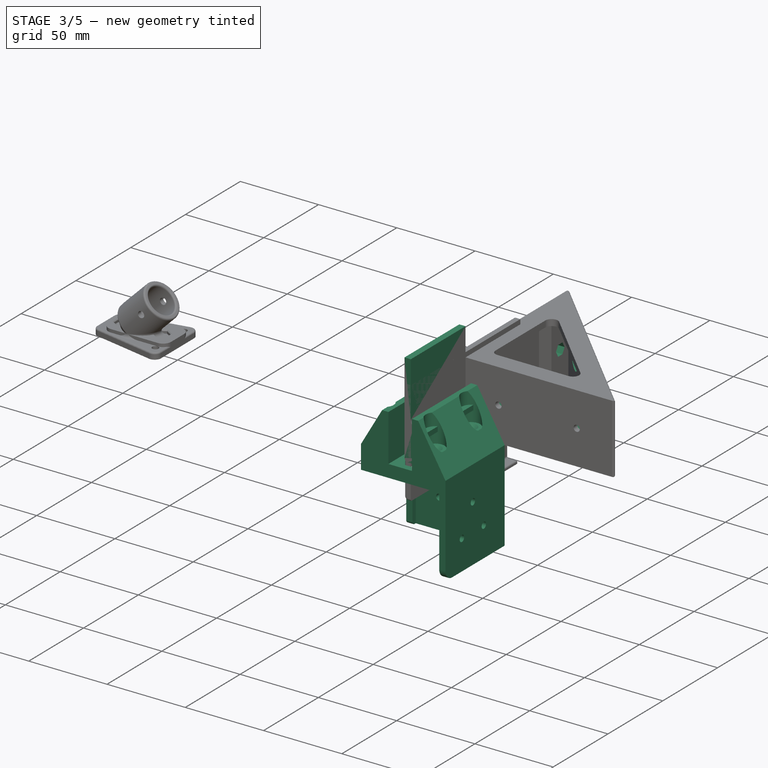
[diagram: stage 3 of 5 — iso view after this stage's code; geometry added in this stage tinted green]
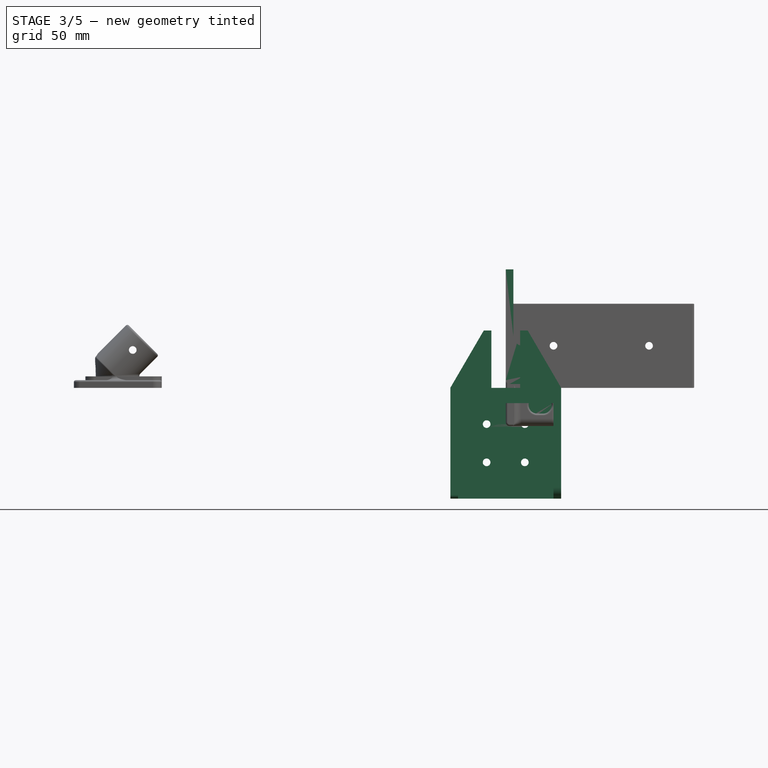
[diagram: stage 3 of 5 — front view after this stage's code; geometry added in this stage tinted green]
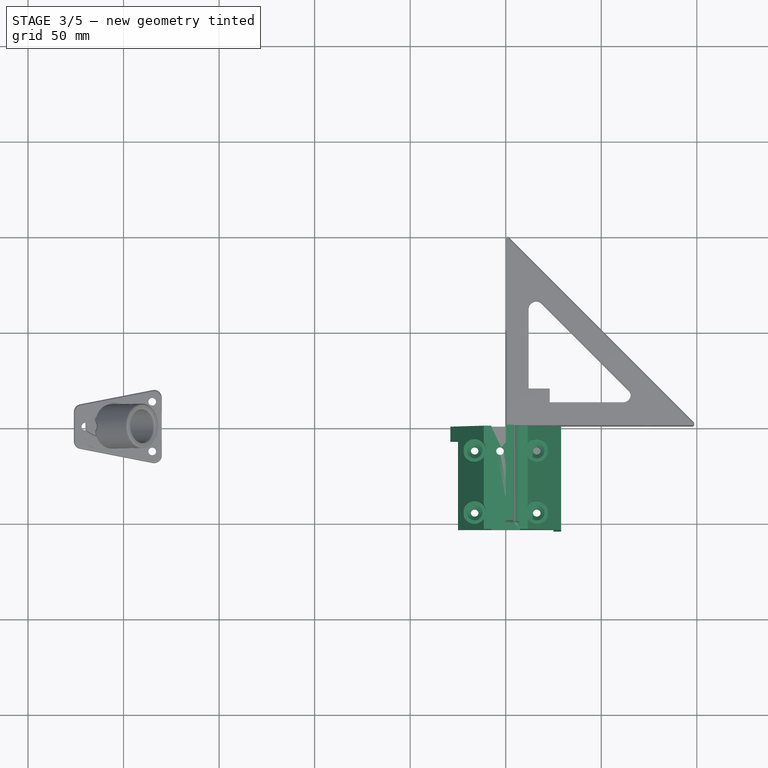
[diagram: stage 3 of 5 — top view after this stage's code; geometry added in this stage tinted green]
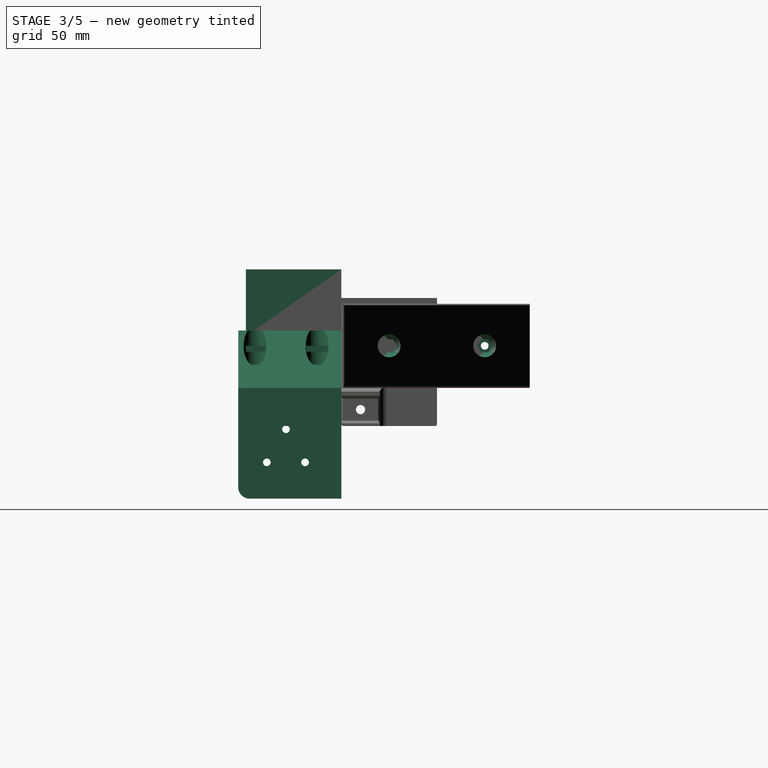
[diagram: stage 3 of 5 — right view after this stage's code; geometry added in this stage tinted green]
FEATURE [Sketcher::SketchObject] Sketch027
  AttachmentOffset = pos=(0,0,-3.52941) rot=(0,0,1;0rad)
  FullyConstrained = false
  MapMode = 5
  Placement = pos=(0,3.52941,8e-16) rot=(1,0,0;1.5708rad)
  Support = -> [XZ_Plane006]
  expr: .AttachmentOffset.Base.z = -max(Spreadsheet.mmCornerHight / 3.4)
  expr: Constraints[3] = Spreadsheet.mmCornerWidth / 2
  expr: Constraints[4] = <<Spreadsheet>>.mmCornerSide / 4
  expr: Constraints[5] = <<Spreadsheet>>.mmCornerSide / 4 * 3
  expr: Constraints[7] = Spreadsheet.DiaWoodScrew * 3
  sketch-geometry (5):
    g0: LineSegment StartX=25 StartY=68.8673 StartZ=0 EndX=25 EndY=-36.0832 EndZ=0
    g1: LineSegment StartX=75 StartY=66.4266 StartZ=0 EndX=75 EndY=-23.8797 EndZ=0
    g2: LineSegment StartX=-19.5076 StartY=22 StartZ=0 EndX=225.261 EndY=22 EndZ=0
    g3: Circle CenterX=25 CenterY=22 CenterZ=0 NormalX=0 NormalY=0 NormalZ=1 AngleXU=0 Radius=6
    g4: Circle CenterX=75 CenterY=22 CenterZ=0 NormalX=0 NormalY=0 NormalZ=1 AngleXU=0 Radius=6
  constraints (12):
    c: Vertical(g0)
    c: Vertical(g1)
    c: Horizontal(g2)
    c: DistanceY(g-1,g2) = 22
    c: DistanceX(g-2,g0) = 25
    c: DistanceX(g-2,g1) = 75
    c: Equal(g4,g3)
    c: Diameter(g4) = 12
    c: PointOnObject(g4,g2)
    c: PointOnObject(g3,g2)
    c: PointOnObject(g3,g0)
    c: PointOnObject(g4,g1)
FEATURE [PartDesign::Pocket] Pocket009
  BaseFeature = -> Pocket008
  Direction = (0,1,2e-16)
  Length = 100
  Length2 = 5
  Profile = -> Sketch027
  ReferenceAxis = -> Sketch027 [N_Axis]
  Type = 0
  expr: Length = Spreadsheet.mmCornerSide
FEATURE [Sketcher::SketchObject] Sketch029
  AttachmentOffset = pos=(0,0,3.52941) rot=(0,0,1;0rad)
  FullyConstrained = false
  MapMode = 5
  Placement = pos=(3.52941,-8e-16,8e-16) rot=(0.57735,0.57735,0.57735;2.0944rad)
  Support = -> [YZ_Plane006]
  expr: .AttachmentOffset.Base.z = max(Spreadsheet.mmCornerHight / 3.4)
  expr: Constraints[11] = 7.9
  expr: Constraints[3] = <<Spreadsheet>>.mmCornerSide / 4 * 3
  expr: Constraints[4] = <<Spreadsheet>>.mmCornerSide / 4
  expr: Constraints[5] = Spreadsheet.mmCornerWidth / 2
  sketch-geometry (19):
    g0: LineSegment StartX=256.966 StartY=22 StartZ=0 EndX=-29.9988 EndY=22 EndZ=0
    g1: LineSegment StartX=75 StartY=99.2328 StartZ=0 EndX=75 EndY=-38.4961 EndZ=0
    g2: LineSegment StartX=25 StartY=89.1211 StartZ=0 EndX=25 EndY=-31.8712 EndZ=0
    g3: Circle CenterX=75 CenterY=22 CenterZ=0 NormalX=0 NormalY=0 NormalZ=1 AngleXU=0 Radius=3.95
    g4: Circle CenterX=25 CenterY=22 CenterZ=0 NormalX=0 NormalY=0 NormalZ=1 AngleXU=0 Radius=3.95
    g5: LineSegment StartX=21.05 StartY=22 StartZ=0 EndX=23.025 EndY=18.5792 EndZ=0
    g6: LineSegment StartX=23.025 StartY=18.5792 StartZ=0 EndX=26.975 EndY=18.5792 EndZ=0
    g7: LineSegment StartX=26.975 StartY=18.5792 StartZ=0 EndX=28.95 EndY=22 EndZ=0
    g8: LineSegment StartX=28.95 StartY=22 StartZ=0 EndX=26.975 EndY=25.4208 EndZ=0
    g9: LineSegment StartX=26.975 StartY=25.4208 StartZ=0 EndX=23.025 EndY=25.4208 EndZ=0
    g10: LineSegment StartX=23.025 StartY=25.4208 StartZ=0 EndX=21.05 EndY=22 EndZ=0
    g11: Circle CenterX=25 CenterY=22 CenterZ=0 NormalX=0 NormalY=0 NormalZ=1 AngleXU=0 Radius=3.95
    g12: LineSegment StartX=76.975 StartY=25.4208 StartZ=0 EndX=73.025 EndY=25.4208 EndZ=0
    g13: LineSegment StartX=73.025 StartY=25.4208 StartZ=0 EndX=71.05 EndY=22 EndZ=0
    g14: LineSegment StartX=71.05 StartY=22 StartZ=0 EndX=73.025 EndY=18.5792 EndZ=0
    g15: LineSegment StartX=73.025 StartY=18.5792 StartZ=0 EndX=76.975 EndY=18.5792 EndZ=0
    g16: LineSegment StartX=76.975 StartY=18.5792 StartZ=0 EndX=78.95 EndY=22 EndZ=0
    g17: LineSegment StartX=78.95 StartY=22 StartZ=0 EndX=76.975 EndY=25.4208 EndZ=0
    g18: Circle CenterX=75 CenterY=22 CenterZ=0 NormalX=0 NormalY=0 NormalZ=1 AngleXU=0 Radius=3.95
  constraints (45):
    c: Horizontal(g0)
    c: Vertical(g1)
    c: Vertical(g2)
    c: DistanceX(g-1,g1) = 75
    c: DistanceX(g-1,g2) = 25
    c: DistanceY(g-1,g0) = 22
    c: Equal(g3,g4)
    c: PointOnObject(g3,g0)
    c: PointOnObject(g4,g0)
    c: PointOnObject(g3,g1)
    c: PointOnObject(g4,g2)
    c: Diameter(g4) = 7.9
    c: Coincident(g5,g6)
    c: Coincident(g6,g7)
    c: Coincident(g7,g8)
    c: Coincident(g8,g9)
    c: Coincident(g9,g10)
    c: Coincident(g10,g5)
    c: Equal(g5, g6-g10) x5
    c: PointOnObject(g5,g11)
    c: PointOnObject(g6,g11)
    c: PointOnObject(g7,g11)
    c: PointOnObject(g8,g11)
    c: PointOnObject(g9,g11)
    c: PointOnObject(g10,g11)
    c: PointOnObject(g11,g2)
    c: PointOnObject(g10,g4)
    c: Coincident(g12,g13)
    c: Coincident(g13,g14)
    c: Coincident(g14,g15)
    c: Coincident(g15,g16)
    c: Coincident(g16,g17)
    c: Coincident(g17,g12)
    c: Equal(g12, g13-g17) x5
    c: PointOnObject(g12,g18)
    c: PointOnObject(g13,g18)
    c: PointOnObject(g14,g18)
    c: PointOnObject(g15,g18)
    c: PointOnObject(g16,g18)
    c: PointOnObject(g17,g18)
    c: Coincident(g18,g3)
    c: PointOnObject(g17,g3)
    c: Equal(g11,g4)
    c: Horizontal(g9)
    c: Horizontal(g15)
FEATURE [Sketcher::SketchObject] Sketch030
  FullyConstrained = false
  MapMode = 5
  Placement = pos=(0,0,0) rot=(1,0,0;1.5708rad)
  Support = -> [XZ_Plane007]
  expr: Constraints[41] = (13 + 4.8) / 2
  sketch-geometry (18):
    g0: LineSegment StartX=11 StartY=73.4997 StartZ=0 EndX=11 EndY=-28.4872 EndZ=0
    g1: LineSegment StartX=-42.3207 StartY=10 StartZ=0 EndX=71.6196 EndY=10 EndZ=0
    g2: LineSegment StartX=0 StartY=62 StartZ=0 EndX=0 EndY=4 EndZ=0
    g3: LineSegment StartX=2 StartY=2 StartZ=0 EndX=14 EndY=2 EndZ=0
    g4: LineSegment StartX=14 StartY=2 StartZ=0 EndX=14 EndY=5.9 EndZ=0
    g5: LineSegment StartX=14 StartY=22 StartZ=0 EndX=9 EndY=22 EndZ=0
    g6: LineSegment StartX=4 StartY=27 StartZ=0 EndX=4 EndY=62 EndZ=0
    g7: LineSegment StartX=4 StartY=62 StartZ=0 EndX=0 EndY=62 EndZ=0
    g8: LineSegment StartX=-42.9338 StartY=2 StartZ=0 EndX=71.1942 EndY=2 EndZ=0
    g9: ArcOfCircle CenterX=9 CenterY=27 CenterZ=0 NormalX=0 NormalY=0 NormalZ=1 AngleXU=0 Radius=5 StartAngle=3.14159 EndAngle=4.71239
    g10: ArcOfCircle CenterX=2 CenterY=4 CenterZ=0 NormalX=0 NormalY=0 NormalZ=1 AngleXU=0 Radius=2 StartAngle=3.14159 EndAngle=4.71239
    g11: LineSegment StartX=-1 StartY=32.8456 StartZ=0 EndX=-1 EndY=-10.4935 EndZ=0
    g12: LineSegment StartX=-11 StartY=31.9234 StartZ=0 EndX=-11 EndY=-10.4935 EndZ=0
    g13: LineSegment StartX=-2 StartY=68.8077 StartZ=0 EndX=-2 EndY=-9.1103 EndZ=0
    g14: LineSegment StartX=9 StartY=18.9 StartZ=0 EndX=14 EndY=18.9 EndZ=0
    g15: LineSegment StartX=14 StartY=5.9 StartZ=0 EndX=9 EndY=5.9 EndZ=0
    g16: LineSegment StartX=9 StartY=5.9 StartZ=0 EndX=9 EndY=18.9 EndZ=0
    g17: LineSegment StartX=14 StartY=18.9 StartZ=0 EndX=14 EndY=22 EndZ=0
  constraints (44):
    c: Vertical(g0)
    c: Horizontal(g1)
    c: DistanceY(g-1,g1) = 10
    c: DistanceX(g-1,g0) = 11
    c: Vertical(g2)
    c: Coincident(g3,g4)
    c: Vertical(g4)
    c: Coincident(g17,g5)
    c: Horizontal(g5)
    c: Vertical(g6)
    c: Coincident(g6,g7)
    c: Coincident(g7,g2)
    c: Horizontal(g8)
    c: DistanceY(g-1,g8) = 2
    c: Horizontal(g7)
    c: DistanceX(g7,g7) = 4
    c: Horizontal(g3)
    c: PointOnObject(g2,g-2)
    c: DistanceY(g4,g17) = 20
    c: Tangent(g5,g9) = 1.5708
    c: Tangent(g6,g9) = 1.5708
    c: Distance(g9,g5) = 5
    c: Tangent(g3,g10) = -1.5708
    c: Tangent(g2,g10) = -1.5708
    c: Distance(g10,g3) = 2
    c: PointOnObject(g3,g8)
    c: DistanceY(g-1,g2) = 62
    c: Vertical(g11)
    c: Vertical(g12)
    c: Distance(g11,g4) = 15
    c: Distance(g12,g4) = 25
    c: Vertical(g13)
    c: DistanceX(g13,g-1) = 2
    c: Distance(g13,g4) = 16
    c: Coincident(g15,g16)
    c: Coincident(g16,g14)
    c: Horizontal(g14)
    c: Horizontal(g15)
    c: Vertical(g16)
    c: DistanceY(g15,g14) = 13
    c: DistanceX(g14,g14) = 5
    c: Distance(g14,g1) = 8.9
    c: Coincident(g17,g14)
    c: Vertical(g4,g14)
FEATURE [PartDesign::Pad] Pad005
  Direction = (0,-1,-2e-16)
  Length = 50
  Length2 = 10
  Placement = pos=(0,0,0) rot=(1,0,0;1.5708rad)
  Profile = -> Sketch030
  ReferenceAxis = -> Sketch030 [N_Axis]
  Type = 0
FEATURE [Sketcher::SketchObject] Sketch031
  ExternalGeometry = -> [Pad005]
  FullyConstrained = false
  MapMode = 5
  Placement = pos=(0,0,0) rot=(0.57735,0.57735,0.57735;2.0944rad)
  Support = -> [YZ_Plane007]
  sketch-geometry (8):
    g0: LineSegment StartX=-50 StartY=91.3888 StartZ=0 EndX=-50 EndY=-28.211 EndZ=0
    g1: LineSegment StartX=-34 StartY=91.1304 StartZ=0 EndX=-34 EndY=-28.4693 EndZ=0
    g2: LineSegment StartX=-98.2973 StartY=10 StartZ=0 EndX=45.5841 EndY=10 EndZ=0
    g3: Circle CenterX=-41.5 CenterY=12.425 CenterZ=0 NormalX=0 NormalY=0 NormalZ=1 AngleXU=0 Radius=2.425
    g4: Circle CenterX=-26.5 CenterY=12.425 CenterZ=0 NormalX=0 NormalY=0 NormalZ=1 AngleXU=0 Radius=2.425
    g5: LineSegment StartX=0 StartY=22 StartZ=0 EndX=-18 EndY=2 EndZ=0
    g6: LineSegment StartX=-18 StartY=2 StartZ=0 EndX=0 EndY=2 EndZ=0
    g7: LineSegment StartX=0 StartY=2 StartZ=0 EndX=0 EndY=22 EndZ=0
  constraints (20):
    c: Vertical(g0)
    c: Vertical(g1)
    c: DistanceX(g0,g-1) = 50
    c: Distance(g1,g0) = 16
    c: Horizontal(g2)
    c: DistanceY(g-1,g2) = 10
    c: Symmetric(g3,g4,g1)
    c: DistanceX(g3,g4) = 15
    c: Equal(g4,g3)
    c: Diameter(g4) = 4.85
    c: Tangent(g4,g2)
    c: Coincident(g5,g6)
    c: Horizontal(g6)
    c: Coincident(g6,g7)
    c: Coincident(g7,g5)
    c: Vertical(g7)
    c: Distance(g5,g1) = 16
    c: PointOnObject(g5,g-3)
    c: PointOnObject(g5,g-2)
    c: PointOnObject(g5,g-4)
FEATURE [PartDesign::Pocket] Pocket012
  BaseFeature = -> Pad005
  Direction = (-1,2e-16,-3e-16)
  Length = 30
  Length2 = 5
  Placement = pos=(0,0,0) rot=(1,0,0;1.5708rad)
  Profile = -> Sketch031
  ReferenceAxis = -> Sketch031 [N_Axis]
  Reversed = true
  Type = 0
FEATURE [Sketcher::SketchObject] Sketch032
  ExternalGeometry = -> [Pad005]
  FullyConstrained = false
  MapMode = 5
  Placement = pos=(0,0,0) rot=(0.57735,0.57735,0.57735;2.0944rad)
  Support = -> [YZ_Plane007]
  sketch-geometry (18):
    g0: LineSegment StartX=-50 StartY=91.3888 StartZ=0 EndX=-50 EndY=-28.211 EndZ=0
    g1: LineSegment StartX=-34 StartY=91.1303 StartZ=0 EndX=-34 EndY=-28.4691 EndZ=0
    g2: LineSegment StartX=-98.2973 StartY=10 StartZ=0 EndX=45.5841 EndY=10 EndZ=0
    g3: LineSegment StartX=-61.6654 StartY=12.425 StartZ=0 EndX=12.014 EndY=12.425 EndZ=0
    g4: LineSegment StartX=-36.9389 StartY=12.425 StartZ=0 EndX=-39.2195 EndY=16.375 EndZ=0
    g5: LineSegment StartX=-39.2195 StartY=16.375 StartZ=0 EndX=-43.7805 EndY=16.375 EndZ=0
    g6: LineSegment StartX=-43.7805 StartY=16.375 StartZ=0 EndX=-46.0611 EndY=12.425 EndZ=0
    g7: LineSegment StartX=-46.0611 StartY=12.425 StartZ=0 EndX=-43.7805 EndY=8.475 EndZ=0
    g8: LineSegment StartX=-43.7805 StartY=8.475 StartZ=0 EndX=-39.2195 EndY=8.475 EndZ=0
    g9: LineSegment StartX=-39.2195 StartY=8.475 StartZ=0 EndX=-36.9389 EndY=12.425 EndZ=0
    g10: Circle CenterX=-41.5 CenterY=12.425 CenterZ=0 NormalX=0 NormalY=0 NormalZ=1 AngleXU=0 Radius=4.56107
    g11: LineSegment StartX=-24.2195 StartY=8.475 StartZ=0 EndX=-21.9389 EndY=12.425 EndZ=0
    g12: LineSegment StartX=-21.9389 StartY=12.425 StartZ=0 EndX=-24.2195 EndY=16.375 EndZ=0
    g13: LineSegment StartX=-24.2195 StartY=16.375 StartZ=0 EndX=-28.7805 EndY=16.375 EndZ=0
    g14: LineSegment StartX=-28.7805 StartY=16.375 StartZ=0 EndX=-31.0611 EndY=12.425 EndZ=0
    g15: LineSegment StartX=-31.0611 StartY=12.425 StartZ=0 EndX=-28.7805 EndY=8.475 EndZ=0
    g16: LineSegment StartX=-28.7805 StartY=8.475 StartZ=0 EndX=-24.2195 EndY=8.475 EndZ=0
    g17: Circle CenterX=-26.5 CenterY=12.425 CenterZ=0 NormalX=0 NormalY=0 NormalZ=1 AngleXU=0 Radius=4.56107
  constraints (41):
    c: Vertical(g0)
    c: Vertical(g1)
    c: DistanceX(g0,g-1) = 50
    c: Distance(g1,g0) = 16
    c: Horizontal(g2)
    c: DistanceY(g-1,g2) = 10
    c: Horizontal(g3)
    c: Distance(g3,g2) = 2.425
    c: Coincident(g4,g5)
    c: Coincident(g5,g6)
    c: Coincident(g6,g7)
    c: Coincident(g7,g8)
    c: Coincident(g8,g9)
    c: Coincident(g9,g4)
    c: Equal(g4, g5-g9) x5
    c: PointOnObject(g4,g10)
    c: PointOnObject(g5,g10)
    c: PointOnObject(g6,g10)
    c: PointOnObject(g7,g10)
    c: PointOnObject(g8,g10)
    c: PointOnObject(g9,g10)
    c: Coincident(g11,g12)
    c: Coincident(g12,g13)
    c: Coincident(g13,g14)
    c: Coincident(g14,g15)
    c: Coincident(g15,g16)
    c: Coincident(g16,g11)
    c: Equal(g11, g12-g16) x5
    c: PointOnObject(g11,g17)
    c: PointOnObject(g12,g17)
    c: PointOnObject(g13,g17)
    c: PointOnObject(g14,g17)
    c: PointOnObject(g15,g17)
    c: PointOnObject(g16,g17)
    c: Symmetric(g10,g17,g1)
    c: DistanceX(g10,g17) = 15
    c: Equal(g17,g10)
    c: Distance(g15,g11) = 7.9
    c: Horizontal(g16)
    c: Horizontal(g8)
    c: PointOnObject(g10,g3)
FEATURE [PartDesign::Pocket] Pocket013
  BaseFeature = -> Pocket012
  Direction = (-1,2e-16,-3e-16)
  Length = 5
  Length2 = 5
  Placement = pos=(0,0,0) rot=(1,0,0;1.5708rad)
  Profile = -> Sketch032
  ReferenceAxis = -> Sketch032 [N_Axis]
  Reversed = true
  Type = 0
FEATURE [PartDesign::Body] Body006  label="BaseRopeFixatorBody"
  Group = -> [Sketch030,Pad005,Sketch031,Pocket012,Sketch032,Pocket013,Fillet005,Fillet006,Sketch033,Pocket014,Chamfer006]
  Origin = -> Origin007
  Tip = -> Chamfer006
FEATURE [Sketcher::SketchObject] Sketch034
  FullyConstrained = true
  MapMode = 5
  Placement = pos=(0,0,0) rot=(1,0,0;1.5708rad)
  Support = -> [XZ_Plane008]
  expr: Constraints[14] = 50 + <<Spreadsheet>>.mmCornerWall * 2
  expr: Constraints[15] = 50 + <<Spreadsheet>>.mmCornerWall * 2
  expr: Constraints[27] = <<Spreadsheet>>.mmCornerWall
  sketch-geometry (14):
    g0: LineSegment StartX=-7.5 StartY=30 StartZ=0 EndX=7.5 EndY=30 EndZ=0
    g1: LineSegment StartX=7.5 StartY=30 StartZ=0 EndX=7.5 EndY=0 EndZ=0
    g2: LineSegment StartX=7.5 StartY=0 StartZ=0 EndX=-7.5 EndY=0 EndZ=0
    g3: LineSegment StartX=-7.5 StartY=0 StartZ=0 EndX=-7.5 EndY=30 EndZ=0
    g4: LineSegment StartX=-7.5 StartY=0 StartZ=0 EndX=7.5 EndY=0 EndZ=0
    g5: LineSegment StartX=29 StartY=0 StartZ=0 EndX=29 EndY=-58 EndZ=0
    g6: LineSegment StartX=29 StartY=-58 StartZ=0 EndX=-29 EndY=-58 EndZ=0
    g7: LineSegment StartX=-29 StartY=-58 StartZ=0 EndX=-29 EndY=0 EndZ=0
    g8: LineSegment StartX=-11.5 StartY=30 StartZ=0 EndX=-7.5 EndY=30 EndZ=0
    g9: LineSegment StartX=-7.5 StartY=30 StartZ=0 EndX=-7.5 EndY=0 EndZ=0
    g10: LineSegment StartX=-29 StartY=-1e-16 StartZ=0 EndX=-11.5 EndY=30 EndZ=0
    g11: LineSegment StartX=7.5 StartY=30 StartZ=0 EndX=11.5 EndY=30 EndZ=0
    g12: LineSegment StartX=11.5 StartY=30 StartZ=0 EndX=29 EndY=0 EndZ=0
    g13: LineSegment StartX=7.5 StartY=0 StartZ=0 EndX=7.5 EndY=30 EndZ=0
  constraints (36):
    c: Coincident(g0,g1)
    c: Coincident(g1,g2)
    c: Coincident(g2,g3)
    c: Coincident(g3,g0)
    c: Vertical(g3)
    c: PointOnObject(g1,g-1)
    c: Symmetric(g0,g0,g-2)
    c: DistanceY(g1,g1) = 30
    c: DistanceX(g0,g0) = 15
    c: Coincident(g5,g6)
    c: Coincident(g6,g7)
    c: Horizontal(g6)
    c: Vertical(g5)
    c: Vertical(g7)
    c: DistanceX(g7,g5) = 58
    c: DistanceY(g5,g5) = 58
    c: PointOnObject(g5,g-1)
    c: Coincident(g8,g9)
    c: Coincident(g10,g8)
    c: Coincident(g11,g12)
    c: Coincident(g13,g11)
    c: Coincident(g9,g2)
    c: Coincident(g12,g5)
    c: Equal(g8,g11)
    c: Coincident(g8,g0)
    c: Coincident(g11,g0)
    c: Horizontal(g8)
    c: DistanceX(g8,g8) = 4
    c: Horizontal(g11)
    c: Coincident(g4,g1)
    c: Coincident(g4,g13)
    c: Vertical(g13)
    c: Coincident(g4,g9)
    c: PointOnObject(g4,g-1)
    c: Coincident(g7,g10)
    c: Symmetric(g7,g5,g-2)
FEATURE [PartDesign::Pad] Pad006
  Direction = (0,-1,2e-16)
  Length = 54
  Length2 = 10
  Placement = pos=(0,0,0) rot=(1,0,0;1.5708rad)
  Profile = -> Sketch034
  ReferenceAxis = -> Sketch034 [N_Axis]
  Type = 0
  expr: Length = 50 + <<Spreadsheet>>.mmCornerWall
FEATURE [Sketcher::SketchObject] Sketch035
  AttachmentOffset = pos=(0,0,4) rot=(0,0,1;0rad)
  ExternalGeometry = -> [Pad006]
  FullyConstrained = true
  MapMode = 5
  Placement = pos=(0,-4,-9e-16) rot=(1,0,0;1.5708rad)
  Support = -> [XZ_Plane008]
  expr: .AttachmentOffset.Base.z = <<Spreadsheet>>.mmCornerWall
  sketch-geometry (4):
    g0: LineSegment StartX=-25 StartY=-8 StartZ=0 EndX=25 EndY=-8 EndZ=0
    g1: LineSegment StartX=25 StartY=-8 StartZ=0 EndX=25 EndY=-58 EndZ=0
    g2: LineSegment StartX=25 StartY=-58 StartZ=0 EndX=-25 EndY=-58 EndZ=0
    g3: LineSegment StartX=-25 StartY=-58 StartZ=0 EndX=-25 EndY=-8 EndZ=0
  constraints (11):
    c: Coincident(g0,g1)
    c: Coincident(g1,g2)
    c: Coincident(g2,g3)
    c: Coincident(g3,g0)
    c: Horizontal(g2)
    c: Vertical(g1)
    c: Vertical(g3)
    c: Equal(g3,g2)
    c: DistanceX(g0,g0) = 50
    c: Symmetric(g0,g0,g-2)
    c: PointOnObject(g2,g-3)
FEATURE [PartDesign::Pocket] Pocket015
  BaseFeature = -> Pad006
  Direction = (0,1,-2e-16)
  Length = 50
  Length2 = 5
  Placement = pos=(0,0,0) rot=(1,0,0;1.5708rad)
  Profile = -> Sketch035
  ReferenceAxis = -> Sketch035 [N_Axis]
  Reversed = true
  Type = 0
FEATURE [Sketcher::SketchObject] Sketch036
  ExternalGeometry = -> [Pocket015]
  FullyConstrained = true
  MapMode = 5
  Placement = pos=(0,0,0) rot=(0.57735,0.57735,0.57735;2.0944rad)
  Support = -> [YZ_Plane008]
  expr: Constraints[7] = -(3 + <<Spreadsheet>>.mmCornerWall)
  sketch-geometry (4):
    g0: LineSegment StartX=-54 StartY=-8 StartZ=0 EndX=-7 EndY=-8 EndZ=0
    g1: LineSegment StartX=-7 StartY=-8 StartZ=0 EndX=-7 EndY=-58 EndZ=0
    g2: LineSegment StartX=-7 StartY=-58 StartZ=0 EndX=-54 EndY=-58 EndZ=0
    g3: LineSegment StartX=-54 StartY=-58 StartZ=0 EndX=-54 EndY=-8 EndZ=0
  constraints (10):
    c: Coincident(g0,g1)
    c: Coincident(g1,g2)
    c: Coincident(g2,g3)
    c: Coincident(g3,g0)
    c: Horizontal(g0)
    c: Horizontal(g2)
    c: Vertical(g1)
    c: DistanceX(g-2,g1) = -7
    c: Coincident(g2,g-4)
    c: Coincident(g0,g-5)
FEATURE [PartDesign::Pocket] Pocket016
  BaseFeature = -> Pocket015
  Direction = (-1,2e-16,-3e-16)
  Length = 50
  Length2 = 5
  Placement = pos=(0,0,0) rot=(1,0,0;1.5708rad)
  Profile = -> Sketch036
  ReferenceAxis = -> Sketch036 [N_Axis]
  Type = 0
FEATURE [PartDesign::Fillet] Fillet008
  Base = -> Pocket016 [Edge25]
  BaseFeature = -> Pocket016
  Placement = pos=(0,0,0) rot=(1,0,0;1.5708rad)
  Radius = 6
  SupportTransform = false
  UseAllEdges = false
FEATURE [PartDesign::Fillet] Fillet009
  Base = -> Fillet008 [Edge51]
  BaseFeature = -> Fillet008
  Placement = pos=(0,0,0) rot=(1,0,0;1.5708rad)
  Radius = 2
  SupportTransform = false
  UseAllEdges = false
FEATURE [Sketcher::SketchObject] Sketch037
  ExternalGeometry = -> [Fillet009]
  FullyConstrained = true
  MapMode = 5
  Support = -> [XY_Plane008]
  expr: Constraints[9] = <<Spreadsheet>>.mmCornerWall
  sketch-geometry (4):
    g0: LineSegment StartX=-29 StartY=-7 StartZ=0 EndX=-25 EndY=-7 EndZ=0
    g1: LineSegment StartX=-25 StartY=-7 StartZ=0 EndX=-25 EndY=-54 EndZ=0
    g2: LineSegment StartX=-25 StartY=-54 StartZ=0 EndX=-29 EndY=-54 EndZ=0
    g3: LineSegment StartX=-29 StartY=-54 StartZ=0 EndX=-29 EndY=-7 EndZ=0
  constraints (12):
    c: Coincident(g0,g1)
    c: Coincident(g1,g2)
    c: Coincident(g2,g3)
    c: Coincident(g3,g0)
    c: Horizontal(g0)
    c: Horizontal(g2)
    c: Vertical(g1)
    c: Vertical(g3)
    c: DistanceX(g-2,g0) = -25
    c: DistanceX(g0,g0) = 4
    c: PointOnObject(g1,g-3)
    c: PointOnObject(g0,g-4)
FEATURE [PartDesign::Pocket] Pocket017
  BaseFeature = -> Fillet009
  Direction = (0,0,-1)
  Length = 50
  Length2 = 5
  Midplane = true
  Placement = pos=(0,0,0) rot=(1,0,0;1.5708rad)
  Profile = -> Sketch037
  ReferenceAxis = -> Sketch037 [N_Axis]
  Type = 0
FEATURE [Sketcher::SketchObject] Sketch038
  FullyConstrained = false
  MapMode = 5
  Support = -> [XY_Plane008]
  expr: Constraints[17] = <<Spreadsheet>>.mmCornerWall
  expr: Constraints[20] = 25 + <<Spreadsheet>>.mmCornerWall
  expr: Constraints[22] = (50 - 15) / 4
  expr: Constraints[28] = <<Spreadsheet>>.DiaWoodScrew
  sketch-geometry (15):
    g0: LineSegment StartX=-16.25 StartY=-12.75 StartZ=0 EndX=16.25 EndY=-12.75 EndZ=0
    g1: LineSegment StartX=16.25 StartY=-12.75 StartZ=0 EndX=16.25 EndY=-45.25 EndZ=0
    g2: LineSegment StartX=16.25 StartY=-45.25 StartZ=0 EndX=-16.25 EndY=-45.25 EndZ=0
    g3: LineSegment StartX=-16.25 StartY=-45.25 StartZ=0 EndX=-16.25 EndY=-12.75 EndZ=0
    g4: LineSegment StartX=-55.253 StartY=-29 StartZ=0 EndX=64.3322 EndY=-29 EndZ=0
    g5: LineSegment StartX=-25 StartY=-4 StartZ=0 EndX=25 EndY=-4 EndZ=0
    g6: LineSegment StartX=25 StartY=-4 StartZ=0 EndX=25 EndY=-54 EndZ=0
    g7: LineSegment StartX=25 StartY=-54 StartZ=0 EndX=-25 EndY=-54 EndZ=0
    g8: LineSegment StartX=-25 StartY=-54 StartZ=0 EndX=-25 EndY=-4 EndZ=0
    g9: Circle CenterX=-16.25 CenterY=-12.75 CenterZ=0 NormalX=0 NormalY=0 NormalZ=1 AngleXU=0 Radius=2
    g10: Circle CenterX=-16.25 CenterY=-45.25 CenterZ=0 NormalX=0 NormalY=0 NormalZ=1 AngleXU=0 Radius=2
    g11: Circle CenterX=16.25 CenterY=-45.25 CenterZ=0 NormalX=0 NormalY=0 NormalZ=1 AngleXU=0 Radius=2
    g12: Circle CenterX=16.25 CenterY=-12.75 CenterZ=0 NormalX=0 NormalY=0 NormalZ=1 AngleXU=0 Radius=2
    g13: Circle CenterX=-3 CenterY=-12.75 CenterZ=0 NormalX=0 NormalY=0 NormalZ=1 AngleXU=0 Radius=2
    g14: Circle CenterX=3 CenterY=-45.25 CenterZ=0 NormalX=0 NormalY=0 NormalZ=1 AngleXU=0 Radius=2
  constraints (37):
    c: Coincident(g0,g1)
    c: Coincident(g1,g2)
    c: Coincident(g2,g3)
    c: Coincident(g3,g0)
    c: Horizontal(g2)
    c: Vertical(g1)
    c: Horizontal(g4)
    c: Coincident(g5,g6)
    c: Coincident(g6,g7)
    c: Coincident(g7,g8)
    c: Coincident(g8,g5)
    c: Horizontal(g7)
    c: Vertical(g6)
    c: Vertical(g8)
    c: Equal(g8,g5)
    c: Symmetric(g5,g5,g-2)
    c: DistanceY(g8,g8) = 50
    c: DistanceY(g5,g-1) = 4
    c: Symmetric(g0,g0,g-2)
    c: Symmetric(g0,g2,g4)
    c: DistanceY(g4,g-1) = 29
    c: Equal(g2,g3)
    c: Distance(g0,g6) = 8.75
    c: Equal(g10,g9)
    c: Equal(g9,g13)
    c: Equal(g13,g14)
    c: Equal(g14,g11)
    c: Equal(g11,g12)
    c: Diameter(g12) = 4
    c: Coincident(g9,g0)
    c: Coincident(g10,g2)
    c: Coincident(g11,g1)
    c: Coincident(g12,g0)
    c: PointOnObject(g14,g2)
    c: PointOnObject(g13,g0)
    c: DistanceX(g-2,g13) = -3
    c: DistanceX(g-2,g14) = 3
FEATURE [PartDesign::Pocket] Pocket018
  BaseFeature = -> Pocket017
  Direction = (0,0,-1)
  Length = 100
  Length2 = 5
  Midplane = true
  Placement = pos=(0,0,0) rot=(1,0,0;1.5708rad)
  Profile = -> Sketch038
  ReferenceAxis = -> Sketch038 [N_Axis]
  Type = 0
  expr: Length = 100
FEATURE [PartDesign::Chamfer] Chamfer008
  Angle = 45
  Base = -> Pocket018 [Edge72,Edge77]
  BaseFeature = -> Pocket018
  ChamferType = 0
  FlipDirection = false
  Placement = pos=(0,0,0) rot=(1,0,0;1.5708rad)
  Size = 2
  Size2 = 1
  SupportTransform = false
  UseAllEdges = false
FEATURE [Sketcher::SketchObject] Sketch039
  AttachmentOffset = pos=(0,0,12) rot=(0,0,1;0rad)
  FullyConstrained = false
  MapMode = 5
  Placement = pos=(0,0,12) rot=(0,0,1;0rad)
  Support = -> [XY_Plane008]
  expr: .AttachmentOffset.Base.z = Spreadsheet.mmCornerWall * 3
  expr: Constraints[17] = <<Spreadsheet>>.mmCornerWall
  expr: Constraints[20] = 25 + <<Spreadsheet>>.mmCornerWall
  expr: Constraints[22] = (50 - 15) / 4
  expr: Constraints[25] = <<Spreadsheet>>.DiaWoodScrew * 3
  sketch-geometry (13):
    g0: LineSegment StartX=-16.25 StartY=-12.75 StartZ=0 EndX=16.25 EndY=-12.75 EndZ=0
    g1: LineSegment StartX=16.25 StartY=-12.75 StartZ=0 EndX=16.25 EndY=-45.25 EndZ=0
    g2: LineSegment StartX=16.25 StartY=-45.25 StartZ=0 EndX=-16.25 EndY=-45.25 EndZ=0
    g3: LineSegment StartX=-16.25 StartY=-45.25 StartZ=0 EndX=-16.25 EndY=-12.75 EndZ=0
    g4: LineSegment StartX=-55.253 StartY=-29 StartZ=0 EndX=64.3322 EndY=-29 EndZ=0
    g5: LineSegment StartX=-25 StartY=-4 StartZ=0 EndX=25 EndY=-4 EndZ=0
    g6: LineSegment StartX=25 StartY=-4 StartZ=0 EndX=25 EndY=-54 EndZ=0
    g7: LineSegment StartX=25 StartY=-54 StartZ=0 EndX=-25 EndY=-54 EndZ=0
    g8: LineSegment StartX=-25 StartY=-54 StartZ=0 EndX=-25 EndY=-4 EndZ=0
    g9: Circle CenterX=-16.25 CenterY=-12.75 CenterZ=0 NormalX=0 NormalY=0 NormalZ=1 AngleXU=0 Radius=6
    g10: Circle CenterX=-16.25 CenterY=-45.25 CenterZ=0 NormalX=0 NormalY=0 NormalZ=1 AngleXU=0 Radius=6
    g11: Circle CenterX=16.25 CenterY=-45.25 CenterZ=0 NormalX=0 NormalY=0 NormalZ=1 AngleXU=0 Radius=6
    g12: Circle CenterX=16.25 CenterY=-12.75 CenterZ=0 NormalX=0 NormalY=0 NormalZ=1 AngleXU=0 Radius=6
  constraints (31):
    c: Coincident(g0,g1)
    c: Coincident(g1,g2)
    c: Coincident(g2,g3)
    c: Coincident(g3,g0)
    c: Horizontal(g2)
    c: Vertical(g1)
    c: Horizontal(g4)
    c: Coincident(g5,g6)
    c: Coincident(g6,g7)
    c: Coincident(g7,g8)
    c: Coincident(g8,g5)
    c: Horizontal(g7)
    c: Vertical(g6)
    c: Vertical(g8)
    c: Equal(g8,g5)
    c: Symmetric(g5,g5,g-2)
    c: DistanceY(g8,g8) = 50
    c: DistanceY(g5,g-1) = 4
    c: Symmetric(g0,g0,g-2)
    c: Symmetric(g0,g2,g4)
    c: DistanceY(g4,g-1) = 29
    c: Equal(g2,g3)
    c: Distance(g0,g6) = 8.75
    c: Equal(g10,g9)
    c: Equal(g11,g12)
    c: Diameter(g12) = 12
    c: Coincident(g9,g0)
    c: Coincident(g10,g2)
    c: Coincident(g11,g1)
    c: Coincident(g12,g0)
    c: Equal(g9,g12)
FEATURE [PartDesign::Pocket] Pocket019
  BaseFeature = -> Chamfer008
  Direction = (0,0,-1)
  Length = 50
  Length2 = 5
  Placement = pos=(0,0,0) rot=(1,0,0;1.5708rad)
  Profile = -> Sketch039
  ReferenceAxis = -> Sketch039 [N_Axis]
  Reversed = true
  Type = 0
FEATURE [PartDesign::Chamfer] Chamfer009
  Angle = 45
  Base = -> Pocket019 [Edge59,Edge61,Edge51,Edge53]
  BaseFeature = -> Pocket019
  ChamferType = 0
  FlipDirection = false
  Placement = pos=(0,0,0) rot=(1,0,0;1.5708rad)
  Size = 2
  Size2 = 1
  SupportTransform = false
  UseAllEdges = false
FEATURE [Sketcher::SketchObject] Sketch040
  ExternalGeometry = -> [Chamfer009]
  FullyConstrained = false
  MapMode = 5
  Placement = pos=(0,0,0) rot=(0.57735,0.57735,0.57735;2.0944rad)
  Support = -> [YZ_Plane008]
  expr: Constraints[16] = <<Spreadsheet>>.DiaWoodScrew
  expr: Constraints[17] = -(<<Spreadsheet>>.mmCornerWall + 50 - 15)
  expr: Constraints[2] = -(25 + <<Spreadsheet>>.mmCornerWall)
  expr: Constraints[6] = -(15 + <<Spreadsheet>>.mmCornerWall)
  sketch-geometry (8):
    g0: LineSegment StartX=-70.2734 StartY=-39 StartZ=0 EndX=39.6369 EndY=-39 EndZ=0
    g1: LineSegment StartX=-29 StartY=37.5078 StartZ=0 EndX=-29 EndY=-62.6252 EndZ=0
    g2: Circle CenterX=-29 CenterY=-21.6795 CenterZ=0 NormalX=0 NormalY=0 NormalZ=1 AngleXU=0 Radius=2
    g3: Circle CenterX=-39 CenterY=-39 CenterZ=0 NormalX=0 NormalY=0 NormalZ=1 AngleXU=0 Radius=2
    g4: Circle CenterX=-19 CenterY=-39 CenterZ=0 NormalX=0 NormalY=0 NormalZ=1 AngleXU=0 Radius=2
    g5: LineSegment StartX=-39 StartY=-39 StartZ=0 EndX=-19 EndY=-39 EndZ=0
    g6: LineSegment StartX=-29 StartY=-21.6795 StartZ=0 EndX=-39 EndY=-39 EndZ=0
    g7: LineSegment StartX=-39 StartY=-39 StartZ=0 EndX=-19 EndY=-39 EndZ=0
  constraints (18):
    c: Horizontal(g0)
    c: Vertical(g1)
    c: DistanceX(g-2,g1) = -29
    c: PointOnObject(g2,g1)
    c: PointOnObject(g3,g0)
    c: Symmetric(g4,g3,g1)
    c: DistanceX(g-2,g4) = -19
    c: Coincident(g5,g3)
    c: Coincident(g5,g4)
    c: Coincident(g6,g2)
    c: Coincident(g6,g3)
    c: Coincident(g7,g3)
    c: Equal(g7,g6)
    c: Coincident(g7,g4)
    c: Equal(g3,g2)
    c: Equal(g2,g4)
    c: Diameter(g2) = 4
    c: DistanceY(g-1,g0) = -39
FEATURE [PartDesign::Pocket] Pocket020
  BaseFeature = -> Chamfer009
  Direction = (-1,2e-16,-3e-16)
  Length = 50
  Length2 = 5
  Placement = pos=(0,0,0) rot=(1,0,0;1.5708rad)
  Profile = -> Sketch040
  ReferenceAxis = -> Sketch040 [N_Axis]
  Reversed = true
  Type = 0
FEATURE [Sketcher::SketchObject] Sketch041
  ExternalGeometry = -> [Pocket020]
  FullyConstrained = true
  MapMode = 5
  Placement = pos=(0,0,0) rot=(1,0,0;1.5708rad)
  Support = -> [XZ_Plane008]
  expr: Constraints[16] = <<Spreadsheet>>.DiaWoodScrew
  expr: Constraints[17] = -(<<Spreadsheet>>.mmCornerWall + 50 - 15)
  sketch-geometry (8):
    g0: LineSegment StartX=-10 StartY=-19 StartZ=0 EndX=10 EndY=-19 EndZ=0
    g1: LineSegment StartX=10 StartY=-19 StartZ=0 EndX=10 EndY=-39 EndZ=0
    g2: LineSegment StartX=10 StartY=-39 StartZ=0 EndX=-10 EndY=-39 EndZ=0
    g3: LineSegment StartX=-10 StartY=-39 StartZ=0 EndX=-10 EndY=-19 EndZ=0
    g4: Circle CenterX=-10 CenterY=-19 CenterZ=0 NormalX=0 NormalY=0 NormalZ=1 AngleXU=0 Radius=2
    g5: Circle CenterX=10 CenterY=-19 CenterZ=0 NormalX=0 NormalY=0 NormalZ=1 AngleXU=0 Radius=2
    g6: Circle CenterX=-10 CenterY=-39 CenterZ=0 NormalX=0 NormalY=0 NormalZ=1 AngleXU=0 Radius=2
    g7: Circle CenterX=10 CenterY=-39 CenterZ=0 NormalX=0 NormalY=0 NormalZ=1 AngleXU=0 Radius=2
  constraints (19):
    c: Coincident(g0,g1)
    c: Coincident(g1,g2)
    c: Coincident(g2,g3)
    c: Coincident(g3,g0)
    c: Horizontal(g2)
    c: Vertical(g1)
    c: Vertical(g3)
    c: DistanceY(g1,g1) = 20
    c: Symmetric(g0,g0,g-2)
    c: Equal(g4,g6)
    c: Equal(g6,g7)
    c: Equal(g7,g5)
    c: Coincident(g4,g0)
    c: Coincident(g5,g0)
    c: Coincident(g6,g2)
    c: Coincident(g7,g1)
    c: Diameter(g5) = 4
    c: DistanceY(g-1,g7) = -39
    c: Equal(g0,g1)
FEATURE [PartDesign::Pocket] Pocket021
  BaseFeature = -> Pocket020
  Direction = (0,1,-2e-16)
  Length = 10
  Length2 = 5
  Placement = pos=(0,0,0) rot=(1,0,0;1.5708rad)
  Profile = -> Sketch041
  ReferenceAxis = -> Sketch041 [N_Axis]
  Reversed = true
  Type = 0
FEATURE [PartDesign::Body] Body007  label="VerticalFrameCorner"
  Group = -> [Sketch034,Pad006,Sketch035,Pocket015,Sketch036,Pocket016,Fillet008,Fillet009,Sketch037,Pocket017,Sketch038,Pocket018,Chamfer008,Sketch039,Pocket019,Chamfer009,Sketch040,Pocket020,Sketch041,Pocket021]
  Origin = -> Origin008
  Tip = -> Pocket021
FEATURE [Sketcher::SketchObject] Sketch028
  FullyConstrained = false
  MapMode = 5
  Placement = pos=(0,0,0) rot=(0.57735,0.57735,0.57735;2.0944rad)
  Support = -> [YZ_Plane006]
  expr: Constraints[11] = Spreadsheet.DiaWoodScrew
  expr: Constraints[3] = Spreadsheet.mmCornerWidth / 2
  expr: Constraints[4] = <<Spreadsheet>>.mmCornerSide / 4
  expr: Constraints[5] = <<Spreadsheet>>.mmCornerSide / 4 * 3
  sketch-geometry (5):
    g0: LineSegment StartX=25 StartY=82.6003 StartZ=0 EndX=25 EndY=-47.106 EndZ=0
    g1: LineSegment StartX=75 StartY=76.6728 StartZ=0 EndX=75 EndY=-41.8759 EndZ=0
    g2: LineSegment StartX=-40.7676 StartY=22 StartZ=0 EndX=189.357 EndY=22 EndZ=0
    g3: Circle CenterX=75 CenterY=22 CenterZ=0 NormalX=0 NormalY=0 NormalZ=1 AngleXU=0 Radius=2
    g4: Circle CenterX=25 CenterY=22 CenterZ=0 NormalX=0 NormalY=0 NormalZ=1 AngleXU=0 Radius=2
  constraints (12):
    c: Vertical(g0)
    c: Vertical(g1)
    c: Horizontal(g2)
    c: DistanceY(g-1,g2) = 22
    c: DistanceX(g-1,g0) = 25
    c: DistanceX(g-1,g1) = 75
    c: Equal(g4,g3)
    c: PointOnObject(g4,g2)
    c: PointOnObject(g3,g2)
    c: PointOnObject(g3,g1)
    c: PointOnObject(g4,g0)
    c: Diameter(g4) = 4
FEATURE [PartDesign::Pocket] Pocket010
  BaseFeature = -> Pocket009
  Direction = (-1,2e-16,-3e-16)
  Length = 100
  Length2 = 5
  Profile = -> Sketch028
  ReferenceAxis = -> Sketch028 [N_Axis]
  Reversed = true
  Type = 0
  expr: Length = Spreadsheet.mmCornerSide
FEATURE [PartDesign::Pocket] Pocket011
  BaseFeature = -> Pocket010
  Direction = (-1,2e-16,-3e-16)
  Length = 100
  Length2 = 5
  Profile = -> Sketch029
  ReferenceAxis = -> Sketch029 [N_Axis]
  Reversed = true
  Type = 0
  expr: Length = Spreadsheet.mmCornerSide
FEATURE [PartDesign::Fillet] Fillet007
  Base = -> Pocket011 [Edge26,Edge5,Edge43,Edge4]
  BaseFeature = -> Pocket011
  Radius = 1
  SupportTransform = false
  UseAllEdges = false
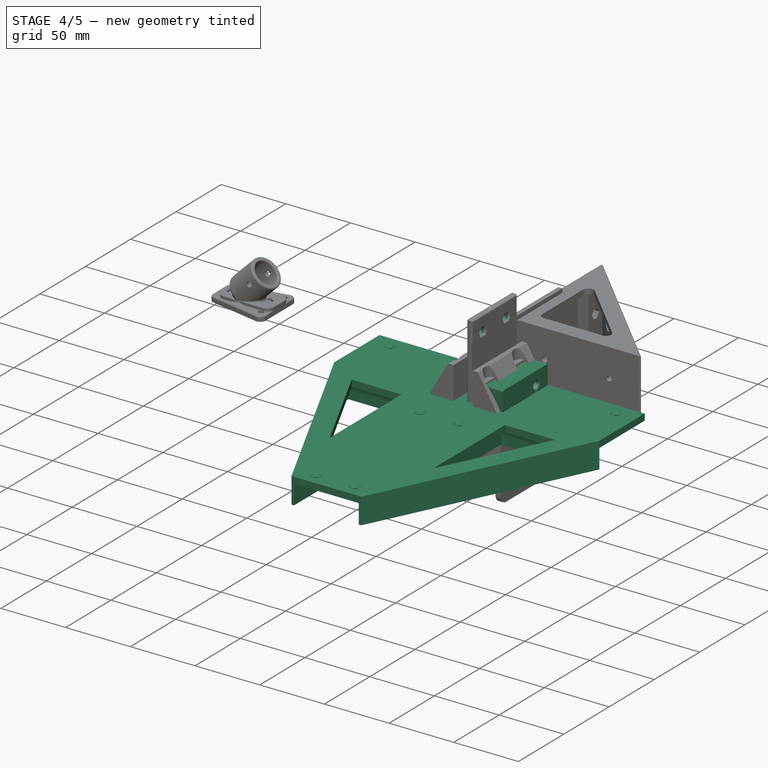
[diagram: stage 4 of 5 — iso view after this stage's code; geometry added in this stage tinted green]
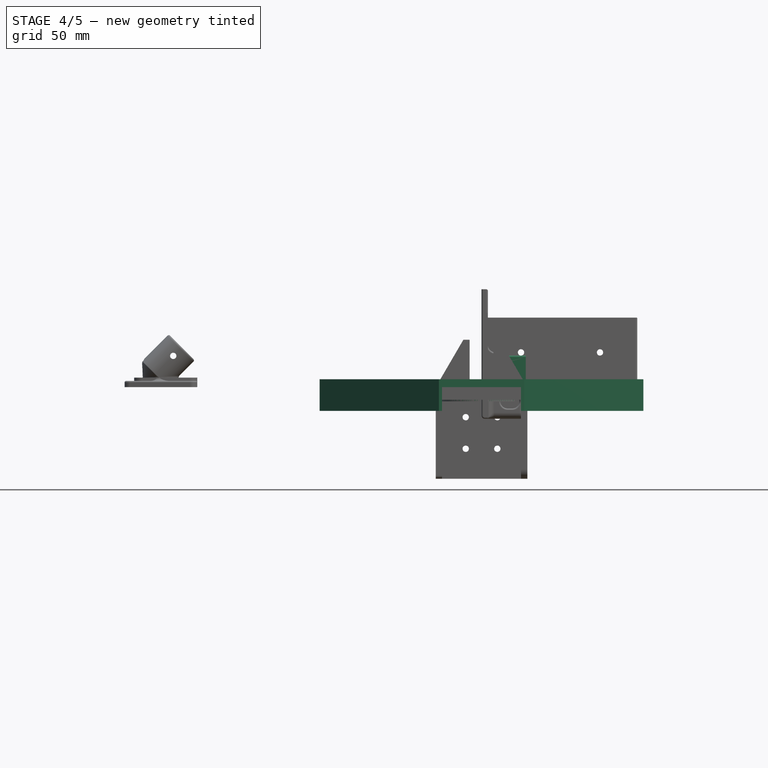
[diagram: stage 4 of 5 — front view after this stage's code; geometry added in this stage tinted green]
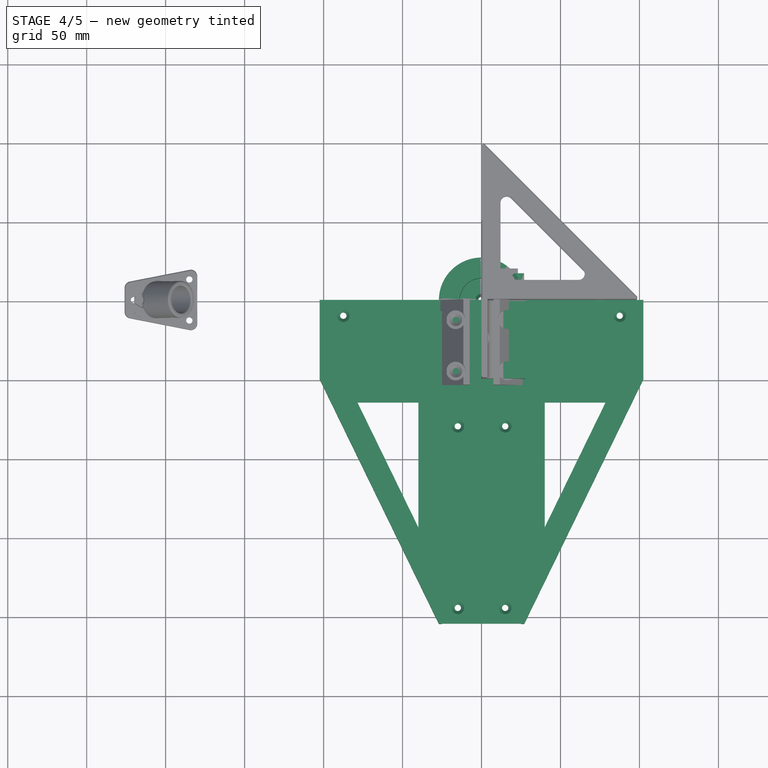
[diagram: stage 4 of 5 — top view after this stage's code; geometry added in this stage tinted green]
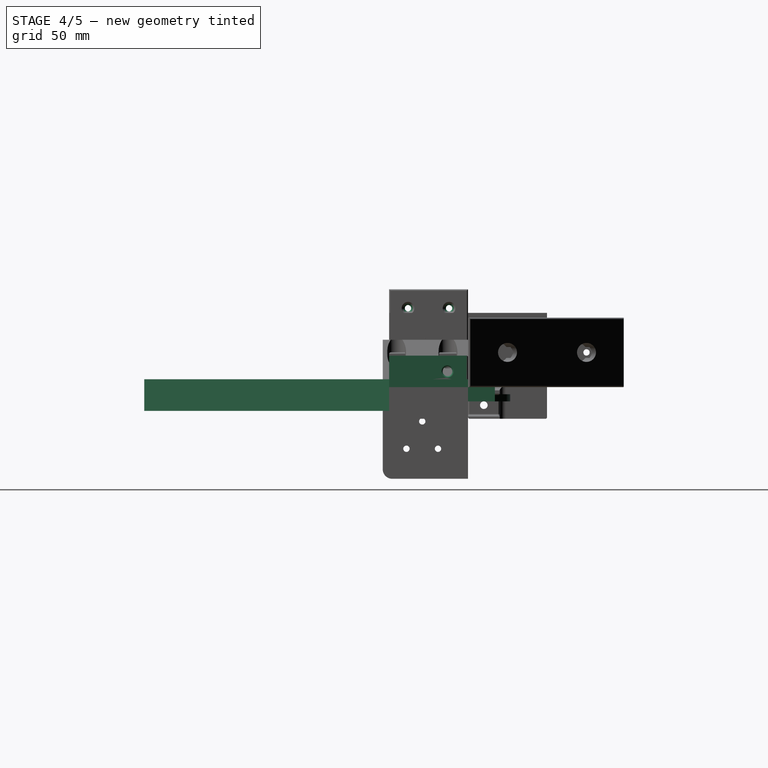
[diagram: stage 4 of 5 — right view after this stage's code; geometry added in this stage tinted green]
FEATURE [Sketcher::SketchObject] Sketch008
  FullyConstrained = false
  MapMode = 5
  Placement = pos=(0,0,0) rot=(1,0,0;1.5708rad)
  Support = -> [XZ_Plane002]
  expr: Constraints[19] = (<<Spreadsheet>>.mmBearHight + 4 * <<Spreadsheet>>.mmWallThickness + <<Spreadsheet>>.mmAirSpace) / 2
  expr: Constraints[20] = <<Spreadsheet>>.mmStraightFixLen * sqrt(2)
  expr: Constraints[21] = <<Spreadsheet>>.DiaAxisScrew / 2 + <<Spreadsheet>>.mmTolerance / 2
  expr: Constraints[23] = <<Spreadsheet>>.mmBearHight / 2
  expr: Constraints[30] = <<Spreadsheet>>.mmWallThickness - <<Spreadsheet>>.mmTolerance
  expr: Constraints[31] = <<Spreadsheet>>.DiaPulleyExt / 2 + <<Spreadsheet>>.mmAirSpace
  expr: Constraints[32] = <<Spreadsheet>>.mmAirSpace
  expr: Constraints[33] = <<Spreadsheet>>.DiaBearExt / 2 + <<Spreadsheet>>.mmTolerance - <<Spreadsheet>>.mmTolerance - <<Spreadsheet>>.mmAirSpace
  expr: Constraints[36] = <<Spreadsheet>>.mmWallThickness - <<Spreadsheet>>.mmTolerance
  expr: Constraints[37] = <<Spreadsheet>>.DiaBearInt / 2
  expr: Constraints[41] = <<Spreadsheet>>.mmTolerance
  expr: Constraints[45] = <<Spreadsheet>>.mmBearHight / 2 + <<Spreadsheet>>.mmWallThickness + <<Spreadsheet>>.mmAirSpace
  sketch-geometry (16):
    g0: LineSegment StartX=70.7107 StartY=0 StartZ=0 EndX=26.95 EndY=0 EndZ=0
    g1: LineSegment StartX=26.95 StartY=0 StartZ=0 EndX=26 EndY=0.95 EndZ=0
    g2: LineSegment StartX=25 StartY=0 StartZ=0 EndX=25 EndY=-7.5 EndZ=0
    g3: LineSegment StartX=25 StartY=-7.5 StartZ=0 EndX=14 EndY=-7.5 EndZ=0
    g4: LineSegment StartX=14 StartY=-7.5 StartZ=0 EndX=13.7401 EndY=-5.5 EndZ=0
    g5: LineSegment StartX=13.7401 StartY=-5.5 StartZ=0 EndX=12.117 EndY=-5.5 EndZ=0
    g6: LineSegment StartX=5 StartY=-4.5 StartZ=0 EndX=5 EndY=0 EndZ=0
    g7: LineSegment StartX=5 StartY=0 StartZ=0 EndX=3.975 EndY=0 EndZ=0
    g8: LineSegment StartX=3.975 StartY=0 StartZ=0 EndX=2.025 EndY=1.95 EndZ=0
    g9: LineSegment StartX=2.025 StartY=1.95 StartZ=0 EndX=2.025 EndY=-9 EndZ=0
    g10: LineSegment StartX=2.025 StartY=-9 StartZ=0 EndX=70.7107 EndY=-9 EndZ=0
    g11: LineSegment StartX=70.7107 StartY=-9 StartZ=0 EndX=70.7107 EndY=0 EndZ=0
    g12: LineSegment StartX=5 StartY=-4.5 StartZ=0 EndX=12.117 EndY=-4.5 EndZ=0
    g13: LineSegment StartX=12.117 StartY=-5.5 StartZ=0 EndX=12.117 EndY=-4.5 EndZ=0
    g14: LineSegment StartX=25 StartY=0 StartZ=0 EndX=25.05 EndY=0 EndZ=0
    g15: LineSegment StartX=25.05 StartY=0 StartZ=0 EndX=26 EndY=0.95 EndZ=0
  constraints (46):
    c: Horizontal(g0)
    c: Coincident(g0,g1)
    c: Vertical(g2)
    c: Coincident(g2,g3)
    c: Horizontal(g3)
    c: Coincident(g3,g4)
    c: Coincident(g4,g5)
    c: Horizontal(g5)
    c: Vertical(g6)
    c: Coincident(g6,g7)
    c: Horizontal(g7)
    c: Coincident(g7,g8)
    c: Coincident(g8,g9)
    c: Vertical(g9)
    c: Coincident(g9,g10)
    c: Horizontal(g10)
    c: Coincident(g10,g11)
    c: Coincident(g11,g0)
    c: Vertical(g11)
    c: DistanceY(g11,g11) = 9
    c: DistanceX(g-1,g10) = 70.7107
    c: DistanceX(g-1,g9) = 2.025
    c: Angle(g-1,g8) = 2.35619
    c: DistanceY(g6,g6) = 4.5
    c: Coincident(g12,g6)
    c: Horizontal(g12)
    c: Coincident(g13,g5)
    c: Coincident(g13,g12)
    c: Vertical(g13)
    c: Horizontal(g2,g0)
    c: DistanceX(g2,g0) = 1.95
    c: DistanceX(g-1,g2) = 25
    c: DistanceY(g13,g13) = 1
    c: DistanceX(g-1,g3) = 14
    c: Horizontal(g6,g2)
    c: PointOnObject(g6,g-1)
    c: DistanceY(g-1,g8) = 1.95
    c: DistanceX(g-1,g6) = 5
    c: PointOnObject(g14,g-1)
    c: Coincident(g15,g14)
    c: Coincident(g15,g1)
    c: DistanceX(g14,g14) = 0.05
    c: Angle(g0,g15) = 0.785398
    c: Angle(g1) = 2.35619
    c: Coincident(g14,g2)
    c: DistanceY(g2,g2) = 7.5
FEATURE [PartDesign::Revolution] Revolution002
  Angle = 360
  Axis = (0,-2e-16,1)
  Base = (0,0,0)
  Placement = pos=(0,0,0) rot=(1,0,0;1.5708rad)
  Profile = -> Sketch008
  ReferenceAxis = -> Sketch008 [V_Axis]
  Refine = true
  Reversed = true
FEATURE [Sketcher::SketchObject] Sketch009
  FullyConstrained = true
  MapMode = 5
  Support = -> [XY_Plane002]
  expr: Constraints[11] = <<Spreadsheet>>.mmStraightFixLen * 2 * sqrt(2)
  expr: Constraints[13] = <<Spreadsheet>>.DiaPulleyExt + 2 * <<Spreadsheet>>.mmAirSpace + 2 * <<Spreadsheet>>.mmWallThickness
  expr: Constraints[8] = <<Spreadsheet>>.DiaPulleyInt - 2 * <<Spreadsheet>>.mmWallThickness
  expr: Constraints[9] = 0.5 * (<<Spreadsheet>>.DiaPulleyExt + 2 * <<Spreadsheet>>.mmAirSpace + 2 * <<Spreadsheet>>.mmWallThickness)
  sketch-geometry (5):
    g0: LineSegment StartX=20.9762 StartY=17 StartZ=0 EndX=27 EndY=17 EndZ=0
    g1: LineSegment StartX=27 StartY=17 StartZ=0 EndX=27 EndY=-17 EndZ=0
    g2: LineSegment StartX=27 StartY=-17 StartZ=0 EndX=20.9762 EndY=-17 EndZ=0
    g3: ArcOfCircle CenterX=0 CenterY=0 CenterZ=0 NormalX=0 NormalY=0 NormalZ=1 AngleXU=0 Radius=27 StartAngle=0.681076 EndAngle=5.60211
    g4: Circle CenterX=0 CenterY=0 CenterZ=0 NormalX=0 NormalY=0 NormalZ=1 AngleXU=0 Radius=70.7107
  constraints (14):
    c: Coincident(g0,g1)
    c: Coincident(g1,g2)
    c: Horizontal(g0)
    c: Horizontal(g2)
    c: Vertical(g1)
    c: Coincident(g3,g-1)
    c: Coincident(g3,g0)
    c: Coincident(g3,g2)
    c: DistanceY(g1,g1) = 34
    c: DistanceX(g-2,g1) = 27
    c: Coincident(g4,g3)
    c: Diameter(g4) = 141.421
    c: Vertical(g2,g0)
    c: Diameter(g3) = 54
FEATURE [Sketcher::SketchObject] Sketch010
  AttachmentOffset = pos=(0,0,-9) rot=(0,0,1;0rad)
  FullyConstrained = true
  MapMode = 5
  Placement = pos=(0,0,-9) rot=(0,0,1;0rad)
  Support = -> [XY_Plane002]
  expr: .AttachmentOffset.Base.z = -(<<Spreadsheet>>.mmBearHight + 4 * <<Spreadsheet>>.mmWallThickness + <<Spreadsheet>>.mmAirSpace) / 2
  sketch-geometry (1):
    g0: Circle CenterX=0 CenterY=0 CenterZ=0 NormalX=0 NormalY=0 NormalZ=1 AngleXU=0 Radius=4.5
  constraints (2):
    c: Coincident(g0,g-1)
    c: Diameter(g0) = 9
FEATURE [Sketcher::SketchObject] Sketch011
  FullyConstrained = false
  MapMode = 5
  Placement = pos=(0,0,0) rot=(1,0,0;1.5708rad)
  Support = -> [XZ_Plane002]
  expr: Constraints[14] = <<Spreadsheet>>.mmWallThickness - <<Spreadsheet>>.mmTolerance
  expr: Constraints[15] = <<Spreadsheet>>.DiaWoodScrew / 2
  expr: Constraints[2] = <<Spreadsheet>>.mmStraightFixLen
  expr: Constraints[3] = <<Spreadsheet>>.mmStraigthHoleDist
  sketch-geometry (6):
    g0: LineSegment StartX=50 StartY=13.8911 StartZ=0 EndX=50 EndY=-17.2884 EndZ=0
    g1: LineSegment StartX=42 StartY=13.7378 StartZ=0 EndX=42 EndY=-17.9779 EndZ=0
    g2: LineSegment StartX=42 StartY=-2e-16 StartZ=0 EndX=42 EndY=1.95 EndZ=0
    g3: LineSegment StartX=42 StartY=1.95 StartZ=0 EndX=44 EndY=1.95 EndZ=0
    g4: LineSegment StartX=44 StartY=1.95 StartZ=0 EndX=45.95 EndY=-2e-16 EndZ=0
    g5: LineSegment StartX=45.95 StartY=-2e-16 StartZ=0 EndX=42 EndY=-2e-16 EndZ=0
  constraints (16):
    c: Vertical(g0)
    c: Vertical(g1)
    c: DistanceX(g-1,g0) = 50
    c: Distance(g1,g0) = 8
    c: PointOnObject(g2,g1)
    c: PointOnObject(g2,g1)
    c: Coincident(g2,g3)
    c: Horizontal(g3)
    c: Coincident(g3,g4)
    c: PointOnObject(g4,g-1)
    c: Coincident(g4,g5)
    c: Coincident(g5,g2)
    c: Horizontal(g5)
    c: Angle(g4,g-1) = 0.785398
    c: DistanceY(g-1,g3) = 1.95
    c: DistanceX(g3,g3) = 2
FEATURE [Sketcher::SketchObject] Sketch012
  FullyConstrained = false
  MapMode = 5
  Placement = pos=(0,0,0) rot=(1,0,0;1.5708rad)
  Support = -> [XZ_Plane002]
  expr: Constraints[13] = <<Spreadsheet>>.mmWallThickness - <<Spreadsheet>>.mmTolerance
  expr: Constraints[15] = <<Spreadsheet>>.DiaWoodScrew / 2
  expr: Constraints[2] = <<Spreadsheet>>.mmStraightFixLen
  expr: Constraints[3] = <<Spreadsheet>>.mmStraigthHoleDist * 2.3
  sketch-geometry (6):
    g0: LineSegment StartX=50 StartY=13.5887 StartZ=0 EndX=50 EndY=-25.0399 EndZ=0
    g1: LineSegment StartX=31.6 StartY=13.9316 StartZ=0 EndX=31.6 EndY=-27.0971 EndZ=0
    g2: LineSegment StartX=31.6 StartY=1.95 StartZ=0 EndX=33.6 EndY=1.95 EndZ=0
    g3: LineSegment StartX=33.6 StartY=1.95 StartZ=0 EndX=35.55 EndY=0 EndZ=0
    g4: LineSegment StartX=35.55 StartY=0 StartZ=0 EndX=31.6 EndY=0 EndZ=0
    g5: LineSegment StartX=31.6 StartY=0 StartZ=0 EndX=31.6 EndY=1.95 EndZ=0
  constraints (16):
    c: Vertical(g0)
    c: Vertical(g1)
    c: DistanceX(g-1,g0) = 50
    c: Distance(g1,g0) = 18.4
    c: PointOnObject(g2,g1)
    c: Horizontal(g2)
    c: Coincident(g2,g3)
    c: Coincident(g3,g4)
    c: PointOnObject(g4,g1)
    c: Horizontal(g4)
    c: Coincident(g4,g5)
    c: Coincident(g5,g2)
    c: Angle(g3,g-1) = 0.785398
    c: DistanceY(g-1,g2) = 1.95
    c: PointOnObject(g3,g-1)
    c: DistanceX(g2,g2) = 2
FEATURE [PartDesign::Revolution] Revolution004
  Angle = 360
  Axis = (0,9.1e-15,-41.0286)
  Base = (31.6,-3.1e-15,13.9316)
  BaseFeature = -> Revolution002
  Placement = pos=(0,0,0) rot=(1,0,0;1.5708rad)
  Profile = -> Sketch012
  ReferenceAxis = -> Sketch012 [Axis1]
  Refine = true
FEATURE [PartDesign::Revolution] Revolution003
  Angle = 360
  Axis = (0,7e-15,-31.7158)
  Base = (42,-3.1e-15,13.7378)
  BaseFeature = -> Revolution004
  Placement = pos=(0,0,0) rot=(1,0,0;1.5708rad)
  Profile = -> Sketch011
  ReferenceAxis = -> Sketch011 [Axis1]
  Refine = true
FEATURE [PartDesign::Pocket] Pocket004
  BaseFeature = -> Revolution003
  Direction = (0,0,-1)
  Length = 18
  Length2 = 5
  Midplane = true
  Placement = pos=(0,0,0) rot=(1,0,0;1.5708rad)
  Profile = -> Sketch009
  ReferenceAxis = -> Sketch009 [N_Axis]
  Refine = true
  Type = 0
  expr: Length = <<Spreadsheet>>.mmBearHight * 2
FEATURE [PartDesign::Pocket] Pocket005
  BaseFeature = -> Pocket004
  Direction = (0,0,-1)
  Length = 3
  Length2 = 5
  Placement = pos=(0,0,0) rot=(1,0,0;1.5708rad)
  Profile = -> Sketch010
  ReferenceAxis = -> Sketch010 [N_Axis]
  Refine = true
  Reversed = true
  Type = 0
FEATURE [PartDesign::Chamfer] Chamfer003
  Angle = 45
  Base = -> Pocket005 [Edge12]
  BaseFeature = -> Pocket005
  ChamferType = 0
  FlipDirection = false
  Placement = pos=(0,0,0) rot=(1,0,0;1.5708rad)
  Refine = true
  Size = 2
  Size2 = 1
  SupportTransform = false
  UseAllEdges = false
FEATURE [Sketcher::SketchObject] Sketch013
  FullyConstrained = true
  MapMode = 5
  Placement = pos=(0,0,0) rot=(1,0,0;1.5708rad)
  Support = -> [XZ_Plane002]
  expr: Constraints[7] = -<<Spreadsheet>>.DiaPulleyExt / 2
  expr: Constraints[8] = -(<<Spreadsheet>>.DiaPulleyExt + 2 * <<Spreadsheet>>.mmAirSpace + 2 * <<Spreadsheet>>.mmWallThickness) / 2
  expr: Constraints[9] = <<Spreadsheet>>.mmBearHight
  sketch-geometry (4):
    g0: LineSegment StartX=-24 StartY=4.5 StartZ=0 EndX=-27 EndY=4.5 EndZ=0
    g1: LineSegment StartX=-27 StartY=4.5 StartZ=0 EndX=-27 EndY=-4.5 EndZ=0
    g2: LineSegment StartX=-27 StartY=-4.5 StartZ=0 EndX=-24 EndY=-4.5 EndZ=0
    g3: LineSegment StartX=-24 StartY=-4.5 StartZ=0 EndX=-24 EndY=4.5 EndZ=0
  constraints (11):
    c: Coincident(g0,g1)
    c: Coincident(g1,g2)
    c: Coincident(g2,g3)
    c: Coincident(g3,g0)
    c: Horizontal(g0)
    c: Horizontal(g2)
    c: Vertical(g3)
    c: DistanceX(g-1,g0) = -24
    c: DistanceX(g-1,g0) = -27
    c: DistanceY(g1,g1) = 9
    c: Symmetric(g0,g1,g-1)
FEATURE [PartDesign::Groove] Groove002
  Angle = 281.954
  Axis = (1e-16,1e-16,1)
  Base = (0,0,0)
  BaseFeature = -> Chamfer003
  Midplane = true
  Placement = pos=(0,0,0) rot=(1,0,0;1.5708rad)
  Profile = -> Sketch013
  ReferenceAxis = -> Z_Axis002
  Refine = true
  expr: Angle = 360 deg - 2 * asin((<<Spreadsheet>>.DiaPulleyInt - 2 * <<Spreadsheet>>.mmWallThickness) / (<<Spreadsheet>>.DiaPulleyExt + 2 * <<Spreadsheet>>.mmAirSpace + 2 * <<Spreadsheet>>.mmWallThickness))
FEATURE [PartDesign::Body] Body001  label="BearingCenterOut"
  Group = -> [Sketch008,Revolution002,Revolution004,Revolution003,Sketch009,Pocket004,Sketch010,Pocket005,Sketch011,Sketch012,Chamfer003,Sketch013,Groove002,Sketch017,Groove004,Sketch018,Groove005]
  Origin = -> Origin002
  Tip = -> Groove005
FEATURE [Sketcher::SketchObject] Sketch019
  FullyConstrained = true
  MapMode = 5
  Support = -> [XY_Plane004]
  sketch-geometry (18):
    g0: LineSegment StartX=-102.5 StartY=0 StartZ=0 EndX=102.5 EndY=0 EndZ=0
    g1: LineSegment StartX=102.5 StartY=0 StartZ=0 EndX=102.5 EndY=-50 EndZ=0
    g2: LineSegment StartX=102.5 StartY=-50 StartZ=0 EndX=27 EndY=-205 EndZ=0
    g3: LineSegment StartX=27 StartY=-205 StartZ=0 EndX=-27 EndY=-205 EndZ=0
    g4: LineSegment StartX=-27 StartY=-205 StartZ=0 EndX=-102.5 EndY=-50 EndZ=0
    g5: LineSegment StartX=-102.5 StartY=-50 StartZ=0 EndX=-102.5 EndY=0 EndZ=0
    g6: LineSegment StartX=-78.5087 StartY=-65 StartZ=0 EndX=-40 EndY=-65 EndZ=0
    g7: LineSegment StartX=-40 StartY=-65 StartZ=0 EndX=-40 EndY=-144.058 EndZ=0
    g8: LineSegment StartX=-40 StartY=-144.058 StartZ=0 EndX=-78.5087 EndY=-65 EndZ=0
    g9: LineSegment StartX=78.5087 StartY=-65 StartZ=0 EndX=40 EndY=-65 EndZ=0
    g10: LineSegment StartX=40 StartY=-65 StartZ=0 EndX=40 EndY=-144.058 EndZ=0
    g11: LineSegment StartX=40 StartY=-144.058 StartZ=0 EndX=78.5087 EndY=-65 EndZ=0
    g12: Circle CenterX=-87.5 CenterY=-10 CenterZ=0 NormalX=0 NormalY=0 NormalZ=1 AngleXU=0 Radius=2
    g13: Circle CenterX=87.5 CenterY=-10 CenterZ=0 NormalX=0 NormalY=0 NormalZ=1 AngleXU=0 Radius=2
    g14: Circle CenterX=-15 CenterY=-80 CenterZ=0 NormalX=0 NormalY=0 NormalZ=1 AngleXU=0 Radius=2
    g15: Circle CenterX=15 CenterY=-80 CenterZ=0 NormalX=0 NormalY=0 NormalZ=1 AngleXU=0 Radius=2
    g16: Circle CenterX=-15 CenterY=-195 CenterZ=0 NormalX=0 NormalY=0 NormalZ=1 AngleXU=0 Radius=2
    g17: Circle CenterX=15 CenterY=-195 CenterZ=0 NormalX=0 NormalY=0 NormalZ=1 AngleXU=0 Radius=2
  constraints (47):
    c: Coincident(g0,g1)
    c: Coincident(g1,g2)
    c: Coincident(g2,g3)
    c: Coincident(g3,g4)
    c: Coincident(g4,g5)
    c: Coincident(g0,g5)
    c: Vertical(g5)
    c: Symmetric(g0,g0,g-2)
    c: Equal(g5,g1)
    c: Symmetric(g3,g2,g-2)
    c: DistanceX(g0,g0) = 205
    c: DistanceY(g5,g5) = 50
    c: DistanceX(g3,g3) = 54
    c: DistanceY(g2,g-1) = 205
    c: PointOnObject(g0,g-1)
    c: Vertical(g1)
    c: Horizontal(g6)
    c: Coincident(g6,g7)
    c: Vertical(g7)
    c: Coincident(g7,g8)
    c: Coincident(g8,g6)
    c: Horizontal(g9)
    c: Coincident(g9,g10)
    c: Coincident(g10,g11)
    c: Coincident(g11,g9)
    c: Parallel(g11,g2)
    c: Symmetric(g6,g9,g-2)
    c: Equal(g6,g9)
    c: Symmetric(g10,g7,g-2)
    c: DistanceX(g6,g9) = 80
    c: Distance(g6,g4) = 15
    c: Distance(g4,g6) = 15
    c: Equal(g12,g13)
    c: Equal(g13,g14)
    c: Equal(g14,g15)
    c: Equal(g15,g17)
    c: Equal(g17,g16)
    c: Diameter(g12) = 4
    c: Symmetric(g12,g13,g-2)
    c: Symmetric(g14,g15,g-2)
    c: Symmetric(g17,g16,g-2)
    c: Vertical(g17,g15)
    c: DistanceX(g14,g-1) = 15
    c: DistanceY(g13,g-1) = 10
    c: Distance(g13,g1) = 15
    c: Distance(g17,g3) = 10
    c: Distance(g14,g6) = 15
FEATURE [PartDesign::Pad] Pad
  Direction = (0,0,1)
  Length = 5
  Length2 = 10
  Profile = -> Sketch019
  ReferenceAxis = -> Sketch019 [N_Axis]
  Refine = true
  Type = 0
FEATURE [Sketcher::SketchObject] Sketch020
  ExternalGeometry = -> [Pad]
  FullyConstrained = true
  MapMode = 5
  Support = -> [XY_Plane004]
  sketch-geometry (14):
    g0: LineSegment StartX=-25 StartY=-50 StartZ=0 EndX=-25 EndY=-205 EndZ=0
    g1: LineSegment StartX=-30 StartY=-187.423 StartZ=0 EndX=-30 EndY=-55 EndZ=0
    g2: LineSegment StartX=-30 StartY=-55 StartZ=0 EndX=-94.5029 EndY=-55 EndZ=0
    g3: LineSegment StartX=94.5029 StartY=-55 StartZ=0 EndX=30 EndY=-55 EndZ=0
    g4: LineSegment StartX=25 StartY=-50 StartZ=0 EndX=25 EndY=-205 EndZ=0
    g5: LineSegment StartX=30 StartY=-187.423 StartZ=0 EndX=30 EndY=-55 EndZ=0
    g6: LineSegment StartX=25 StartY=-50 StartZ=0 EndX=102.5 EndY=-50 EndZ=0
    g7: LineSegment StartX=-94.5029 StartY=-55 StartZ=0 EndX=-30 EndY=-187.423 EndZ=0
    g8: LineSegment StartX=94.5029 StartY=-55 StartZ=0 EndX=30 EndY=-187.423 EndZ=0
    g9: LineSegment StartX=-102.5 StartY=-50 StartZ=0 EndX=-25 EndY=-50 EndZ=0
    g10: LineSegment StartX=-102.5 StartY=-50 StartZ=0 EndX=-27 EndY=-205 EndZ=0
    g11: LineSegment StartX=-25 StartY=-205 StartZ=0 EndX=-27 EndY=-205 EndZ=0
    g12: LineSegment StartX=25 StartY=-205 StartZ=0 EndX=27 EndY=-205 EndZ=0
    g13: LineSegment StartX=102.5 StartY=-50 StartZ=0 EndX=27 EndY=-205 EndZ=0
  constraints (37):
    c: Coincident(g1,g2)
    c: Horizontal(g2)
    c: Vertical(g0)
    c: Horizontal(g3)
    c: Coincident(g6,g4)
    c: DistanceX(g0,g4) = 50
    c: Horizontal(g6)
    c: Coincident(g7,g2)
    c: Coincident(g3,g8)
    c: Coincident(g7,g1)
    c: Coincident(g5,g8)
    c: Distance(g3,g6) = 5
    c: Parallel(g1,g0)
    c: Parallel(g4,g5)
    c: Coincident(g3,g5)
    c: Distance(g1,g0) = 5
    c: Vertical(g4)
    c: Distance(g3,g4) = 5
    c: Symmetric(g1,g3,g-2)
    c: Horizontal(g1,g5)
    c: Coincident(g9,g0)
    c: Horizontal(g9)
    c: PointOnObject(g0,g-6)
    c: Coincident(g10,g9)
    c: Coincident(g10,g-6)
    c: Coincident(g11,g0)
    c: Coincident(g11,g10)
    c: Distance(g1,g10) = 5
    c: Coincident(g9,g-5)
    c: Parallel(g7,g10)
    c: PointOnObject(g4,g-6)
    c: Coincident(g12,g4)
    c: Coincident(g12,g-6)
    c: Coincident(g6,g-4)
    c: Coincident(g13,g6)
    c: Coincident(g13,g12)
    c: Parallel(g8,g13)
FEATURE [PartDesign::Pad] Pad001
  BaseFeature = -> Pad
  Direction = (0,0,1)
  Length = 15
  Length2 = 10
  Profile = -> Sketch020
  ReferenceAxis = -> Sketch020 [N_Axis]
  Refine = true
  Reversed = true
  Type = 0
FEATURE [PartDesign::Fillet] Fillet003
  Base = -> Pad001 [Edge76,Edge79,Edge78,Edge77,Edge75,Edge80]
  BaseFeature = -> Pad001
  Radius = 9
  Refine = true
  SupportTransform = false
  UseAllEdges = false
FEATURE [PartDesign::Chamfer] Chamfer004
  Angle = 45
  Base = -> Fillet003 [Edge39,Edge38,Edge37,Edge36,Edge35,Edge34]
  BaseFeature = -> Fillet003
  ChamferType = 0
  FlipDirection = false
  Refine = true
  Size = 2
  Size2 = 1
  SupportTransform = false
  UseAllEdges = false
FEATURE [PartDesign::Body] Body003  label="CrossBody"
  Group = -> [Sketch019,Pad,Sketch020,Pad001,Fillet003,Chamfer004]
  Origin = -> Origin004
  Tip = -> Chamfer004
FEATURE [Sketcher::SketchObject] Sketch021
  FullyConstrained = false
  MapMode = 5
  Placement = pos=(0,0,0) rot=(1,0,0;1.5708rad)
  Support = -> [XZ_Plane005]
  sketch-geometry (18):
    g0: LineSegment StartX=13 StartY=73.4997 StartZ=0 EndX=13 EndY=-28.4872 EndZ=0
    g1: LineSegment StartX=-42.3207 StartY=10 StartZ=0 EndX=71.6196 EndY=10 EndZ=0
    g2: LineSegment StartX=0 StartY=62 StartZ=0 EndX=0 EndY=4 EndZ=0
    g3: LineSegment StartX=2 StartY=2 StartZ=0 EndX=28 EndY=2 EndZ=0
    g4: LineSegment StartX=28 StartY=2 StartZ=0 EndX=28 EndY=20 EndZ=0
    g5: LineSegment StartX=28 StartY=20 StartZ=0 EndX=9 EndY=20 EndZ=0
    g6: LineSegment StartX=4 StartY=25 StartZ=0 EndX=4 EndY=62 EndZ=0
    g7: LineSegment StartX=4 StartY=62 StartZ=0 EndX=0 EndY=62 EndZ=0
    g8: LineSegment StartX=-42.9338 StartY=2 StartZ=0 EndX=71.1942 EndY=2 EndZ=0
    g9: ArcOfCircle CenterX=9 CenterY=25 CenterZ=0 NormalX=0 NormalY=0 NormalZ=1 AngleXU=0 Radius=5 StartAngle=3.14159 EndAngle=4.71239
    g10: ArcOfCircle CenterX=2 CenterY=4 CenterZ=0 NormalX=0 NormalY=0 NormalZ=1 AngleXU=0 Radius=2 StartAngle=3.14159 EndAngle=4.71239
    g11: LineSegment StartX=13 StartY=32.8456 StartZ=0 EndX=13 EndY=-10.4935 EndZ=0
    g12: LineSegment StartX=3 StartY=31.9234 StartZ=0 EndX=3 EndY=-10.4935 EndZ=0
    g13: LineSegment StartX=-2 StartY=68.8077 StartZ=0 EndX=-2 EndY=-9.1103 EndZ=0
    g14: ArcOfCircle CenterX=11.5 CenterY=10 CenterZ=0 NormalX=0 NormalY=0 NormalZ=1 AngleXU=0 Radius=5 StartAngle=1.5708 EndAngle=4.71239
    g15: ArcOfCircle CenterX=14.5 CenterY=10 CenterZ=0 NormalX=0 NormalY=0 NormalZ=1 AngleXU=0 Radius=5 StartAngle=4.71239 EndAngle=7.85398
    g16: LineSegment StartX=11.5 StartY=5 StartZ=0 EndX=14.5 EndY=5 EndZ=0
    g17: LineSegment StartX=14.5 StartY=15 StartZ=0 EndX=11.5 EndY=15 EndZ=0
  constraints (43):
    c: Vertical(g0)
    c: Horizontal(g1)
    c: DistanceY(g-1,g1) = 10
    c: DistanceX(g-1,g0) = 13
    c: Vertical(g2)
    c: Coincident(g3,g4)
    c: Vertical(g4)
    c: Coincident(g4,g5)
    c: Horizontal(g5)
    c: Vertical(g6)
    c: Coincident(g6,g7)
    c: Coincident(g7,g2)
    c: Horizontal(g8)
    c: DistanceY(g-1,g8) = 2
    c: Horizontal(g7)
    c: DistanceX(g7,g7) = 4
    c: Horizontal(g3)
    c: PointOnObject(g2,g-2)
    c: DistanceY(g4,g4) = 18
    c: Tangent(g5,g9) = 1.5708
    c: Tangent(g6,g9) = 1.5708
    c: Distance(g9,g5) = 5
    c: Tangent(g3,g10) = -1.5708
    c: Tangent(g2,g10) = -1.5708
    c: Distance(g10,g3) = 2
    c: PointOnObject(g3,g8)
    c: DistanceY(g-1,g2) = 62
    c: Vertical(g11)
    c: Vertical(g12)
    c: Distance(g11,g4) = 15
    c: Distance(g12,g4) = 25
    c: Vertical(g13)
    c: DistanceX(g13,g-1) = 2
    c: Distance(g13,g4) = 30
    c: Tangent(g14,g16) = -1.5708
    c: Tangent(g16,g15) = -1.5708
    c: Tangent(g15,g17) = -1.5708
    c: Tangent(g17,g14) = -1.5708
    c: Equal(g14,g15)
    c: PointOnObject(g14,g1)
    c: Symmetric(g14,g15,g0)
    c: DistanceY(g15,g15) = 10
    c: DistanceX(g16,g16) = 3
FEATURE [PartDesign::Pad] Pad002
  Direction = (0,-1,-2e-16)
  Length = 50
  Length2 = 10
  Placement = pos=(0,0,0) rot=(1,0,0;1.5708rad)
  Profile = -> Sketch021
  ReferenceAxis = -> Sketch021 [N_Axis]
  Type = 0
FEATURE [Sketcher::SketchObject] Sketch022
  FullyConstrained = false
  MapMode = 5
  Placement = pos=(0,0,0) rot=(0.57735,0.57735,0.57735;2.0944rad)
  Support = -> [YZ_Plane005]
  sketch-geometry (14):
    g0: LineSegment StartX=-13 StartY=74.1491 StartZ=0 EndX=-13 EndY=-24.9819 EndZ=0
    g1: LineSegment StartX=29.8316 StartY=10 StartZ=0 EndX=-130.626 EndY=10 EndZ=0
    g2: Circle CenterX=-13 CenterY=10 CenterZ=0 NormalX=0 NormalY=0 NormalZ=1 AngleXU=0 Radius=3.05
    g3: LineSegment StartX=-50 StartY=60 StartZ=0 EndX=0 EndY=60 EndZ=0
    g4: LineSegment StartX=0 StartY=60 StartZ=0 EndX=0 EndY=0 EndZ=0
    g5: LineSegment StartX=0 StartY=0 StartZ=0 EndX=-50 EndY=0 EndZ=0
    g6: LineSegment StartX=-50 StartY=0 StartZ=0 EndX=-50 EndY=60 EndZ=0
    g7: LineSegment StartX=-97.28 StartY=13 StartZ=0 EndX=93.9153 EndY=13 EndZ=0
    g8: LineSegment StartX=-25 StartY=98.2429 StartZ=0 EndX=-25 EndY=-25.9143 EndZ=0
    g9: Circle CenterX=-38 CenterY=50 CenterZ=0 NormalX=0 NormalY=0 NormalZ=1 AngleXU=0 Radius=2
    g10: Circle CenterX=-12 CenterY=50 CenterZ=0 NormalX=0 NormalY=0 NormalZ=1 AngleXU=0 Radius=2
    g11: Circle CenterX=-25 CenterY=27.4833 CenterZ=0 NormalX=0 NormalY=0 NormalZ=1 AngleXU=0 Radius=2
    g12: LineSegment StartX=-38 StartY=50 StartZ=0 EndX=-12 EndY=50 EndZ=0
    g13: LineSegment StartX=-25 StartY=27.4833 StartZ=0 EndX=-12 EndY=50 EndZ=0
  constraints (34):
    c: Vertical(g0)
    c: Horizontal(g1)
    c: DistanceY(g-1,g1) = 10
    c: DistanceX(g0,g-1) = 13
    c: PointOnObject(g2,g0)
    c: Diameter(g2) = 6.1
    c: PointOnObject(g2,g1)
    c: Coincident(g3,g4)
    c: Coincident(g4,g5)
    c: Coincident(g5,g6)
    c: Coincident(g6,g3)
    c: Horizontal(g5)
    c: Vertical(g4)
    c: Vertical(g6)
    c: PointOnObject(g4,g-2)
    c: DistanceY(g6,g6) = 60
    c: DistanceX(g3,g3) = 50
    c: Horizontal(g7)
    c: Vertical(g8)
    c: Symmetric(g3,g3,g8)
    c: DistanceY(g-1,g7) = 13
    c: PointOnObject(g11,g8)
    c: Coincident(g12,g9)
    c: Coincident(g12,g10)
    c: Coincident(g13,g11)
    c: Coincident(g13,g10)
    c: Symmetric(g9,g10,g8)
    c: Equal(g13,g12)
    c: Equal(g9,g11)
    c: Equal(g11,g10)
    c: Diameter(g9) = 4
    c: Distance(g10,g3) = 10
    c: Distance(g10,g4) = 12
    c: PointOnObject(g4,g-1)
FEATURE [PartDesign::Pocket] Pocket006
  BaseFeature = -> Pad002
  Direction = (-1,2e-16,-3e-16)
  Length = 35
  Length2 = 5
  Placement = pos=(0,0,0) rot=(1,0,0;1.5708rad)
  Profile = -> Sketch022
  ReferenceAxis = -> Sketch022 [N_Axis]
  Reversed = true
  Type = 0
FEATURE [PartDesign::Fillet] Fillet004
  Base = -> Pocket006 [Edge2,Edge4,Edge3,Edge14,Edge16,Edge15,Edge26,Edge10,Edge9,Edge24,Edge23,Edge13,Edge17,Edge19,Edge18,Edge20,Edge43,Edge46,Edge27,Edge29,Edge30,Edge28]
  BaseFeature = -> Pocket006
  Placement = pos=(0,0,0) rot=(1,0,0;1.5708rad)
  Radius = 1
  SupportTransform = false
  UseAllEdges = false
FEATURE [PartDesign::Chamfer] Chamfer005
  Angle = 45
  Base = -> Fillet004 [Edge5,Edge6,Edge7]
  BaseFeature = -> Fillet004
  ChamferType = 0
  FlipDirection = false
  Placement = pos=(0,0,0) rot=(1,0,0;1.5708rad)
  Size = 2
  Size2 = 1
  SupportTransform = false
  UseAllEdges = false
FEATURE [PartDesign::Fillet] Fillet005
  Base = -> Pocket013 [Edge52,Edge47,Edge40,Edge42,Edge44,Edge22,Edge46,Edge18,Edge19,Edge17,Edge4,Edge2,Edge3,Edge6,Edge7,Edge21,Edge23,Edge15,Edge39,Edge43,Edge41]
  BaseFeature = -> Pocket013
  Placement = pos=(0,0,0) rot=(1,0,0;1.5708rad)
  Radius = 1
  SupportTransform = false
  UseAllEdges = false
FEATURE [PartDesign::Fillet] Fillet006
  Base = -> Fillet005 [Edge71,Edge66,Edge67,Edge68,Edge69,Edge70,Edge65,Edge60,Edge61,Edge62,Edge63,Edge64]
  BaseFeature = -> Fillet005
  Placement = pos=(0,0,0) rot=(1,0,0;1.5708rad)
  Radius = 1
  SupportTransform = false
  UseAllEdges = false
FEATURE [Sketcher::SketchObject] Sketch033
  FullyConstrained = false
  MapMode = 5
  Placement = pos=(0,0,0) rot=(0.57735,0.57735,0.57735;2.0944rad)
  Support = -> [YZ_Plane007]
  sketch-geometry (13):
    g0: LineSegment StartX=-13 StartY=74.1491 StartZ=0 EndX=-13 EndY=-24.9819 EndZ=0
    g1: LineSegment StartX=29.8316 StartY=10 StartZ=0 EndX=-130.626 EndY=10 EndZ=0
    g2: LineSegment StartX=-50 StartY=60 StartZ=0 EndX=0 EndY=60 EndZ=0
    g3: LineSegment StartX=0 StartY=60 StartZ=0 EndX=0 EndY=0 EndZ=0
    g4: LineSegment StartX=0 StartY=0 StartZ=0 EndX=-50 EndY=0 EndZ=0
    g5: LineSegment StartX=-50 StartY=0 StartZ=0 EndX=-50 EndY=60 EndZ=0
    g6: LineSegment StartX=-97.28 StartY=13 StartZ=0 EndX=93.9153 EndY=13 EndZ=0
    g7: LineSegment StartX=-25 StartY=98.2429 StartZ=0 EndX=-25 EndY=-25.9143 EndZ=0
    g8: Circle CenterX=-38 CenterY=50 CenterZ=0 NormalX=0 NormalY=0 NormalZ=1 AngleXU=0 Radius=2
    g9: Circle CenterX=-12 CenterY=50 CenterZ=0 NormalX=0 NormalY=0 NormalZ=1 AngleXU=0 Radius=2
    g10: Circle CenterX=-25 CenterY=27.4833 CenterZ=0 NormalX=0 NormalY=0 NormalZ=1 AngleXU=0 Radius=2
    g11: LineSegment StartX=-38 StartY=50 StartZ=0 EndX=-12 EndY=50 EndZ=0
    g12: LineSegment StartX=-25 StartY=27.4833 StartZ=0 EndX=-12 EndY=50 EndZ=0
  constraints (31):
    c: Vertical(g0)
    c: Horizontal(g1)
    c: DistanceY(g-1,g1) = 10
    c: DistanceX(g0,g-1) = 13
    c: Coincident(g2,g3)
    c: Coincident(g3,g4)
    c: Coincident(g4,g5)
    c: Coincident(g5,g2)
    c: Horizontal(g4)
    c: Vertical(g3)
    c: Vertical(g5)
    c: PointOnObject(g3,g-2)
    c: DistanceY(g5,g5) = 60
    c: DistanceX(g2,g2) = 50
    c: Horizontal(g6)
    c: Vertical(g7)
    c: Symmetric(g2,g2,g7)
    c: DistanceY(g-1,g6) = 13
    c: PointOnObject(g10,g7)
    c: Coincident(g11,g8)
    c: Coincident(g11,g9)
    c: Coincident(g12,g10)
    c: Coincident(g12,g9)
    c: Symmetric(g8,g9,g7)
    c: Equal(g12,g11)
    c: Equal(g8,g10)
    c: Equal(g10,g9)
    c: Diameter(g8) = 4
    c: Distance(g9,g2) = 10
    c: Distance(g9,g3) = 12
    c: PointOnObject(g3,g-1)
FEATURE [PartDesign::Pocket] Pocket014
  BaseFeature = -> Fillet006
  Direction = (-1,2e-16,-3e-16)
  Length = 9
  Length2 = 5
  Placement = pos=(0,0,0) rot=(1,0,0;1.5708rad)
  Profile = -> Sketch033
  ReferenceAxis = -> Sketch033 [N_Axis]
  Reversed = true
  Type = 0
FEATURE [PartDesign::Chamfer] Chamfer006
  Angle = 45
  Base = -> Pocket014 [Edge40,Edge54,Edge58]
  BaseFeature = -> Pocket014
  ChamferType = 0
  FlipDirection = false
  Placement = pos=(0,0,0) rot=(1,0,0;1.5708rad)
  Size = 2
  Size2 = 1
  SupportTransform = false
  UseAllEdges = false
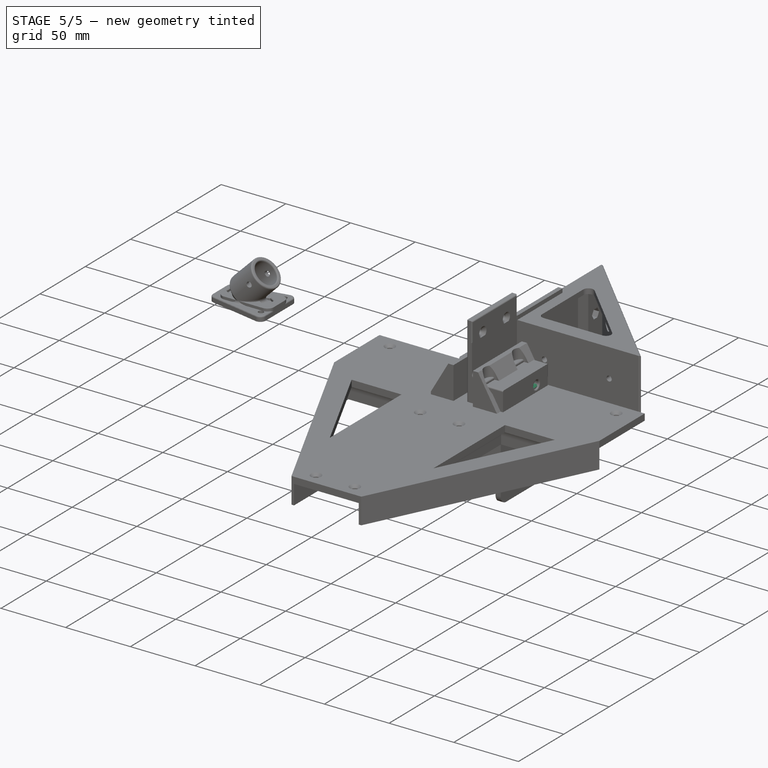
[diagram: stage 5 of 5 — iso view after this stage's code; geometry added in this stage tinted green]
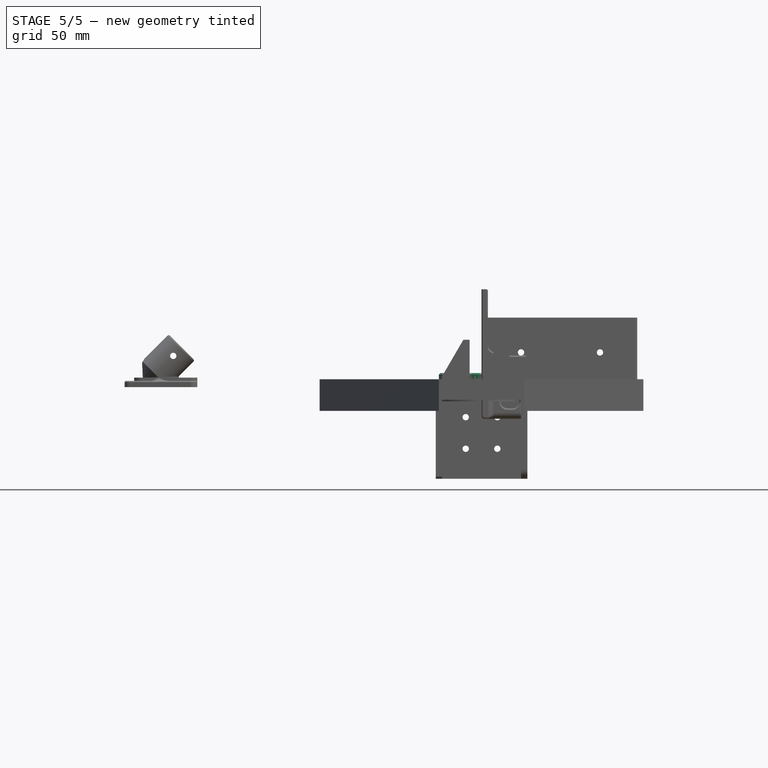
[diagram: stage 5 of 5 — front view after this stage's code; geometry added in this stage tinted green]
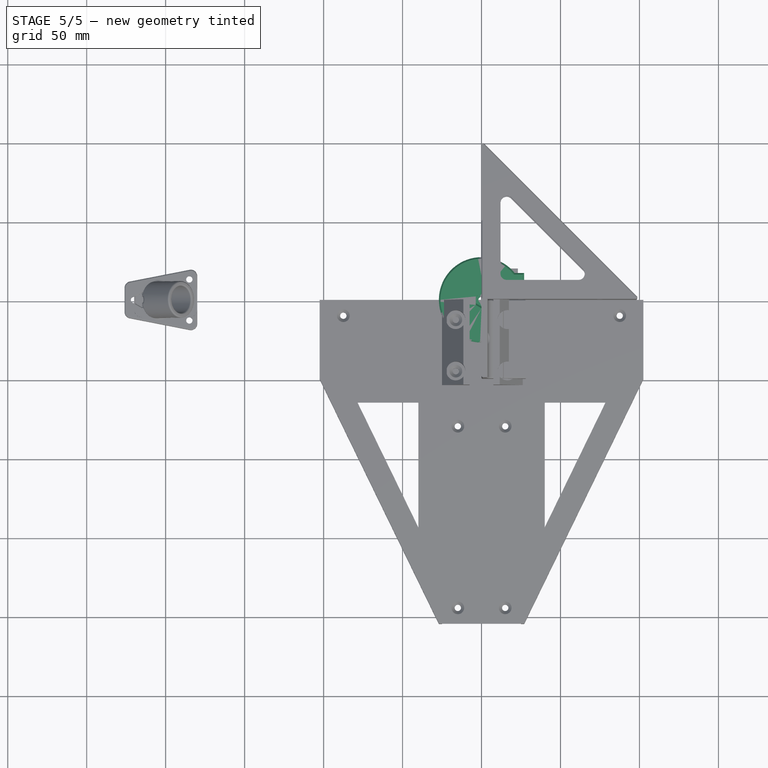
[diagram: stage 5 of 5 — top view after this stage's code; geometry added in this stage tinted green]
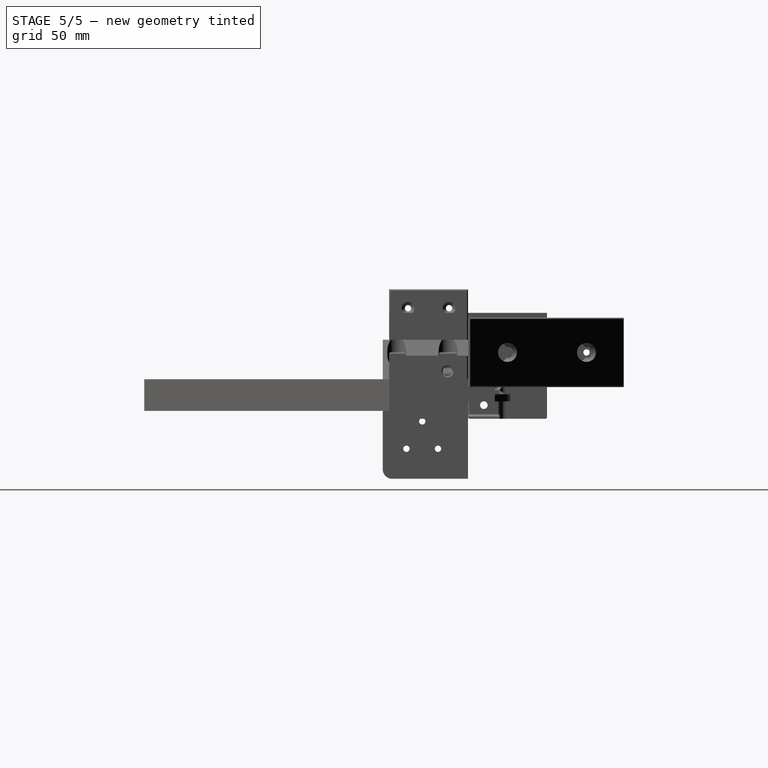
[diagram: stage 5 of 5 — right view after this stage's code; geometry added in this stage tinted green]
FEATURE [Spreadsheet::Sheet] Spreadsheet
  cells = A2='mmAirSpace; B2(mmAirSpace)=1; A3='mmTolerance; B3(mmTolerance)=0.05; A4='DiaBearInt; B4(DiaBearInt)=10; A5='DiaBearExt; B5(DiaBearExt)=30; A6='mmBearHight; B6(mmBearHight)=9; A7='mmBodyLen; B7(mmBodyLen)=50; A8='mmBodyWidth; B8(mmBodyWidth)=30; A9='DiaRope; B9(DiaRope)=2; A10='DiaWoodScrew; B10(DiaWoodScrew)=4; A11='DiaPulleyExt; B11(DiaPulleyExt)==DiaPulleyInt + 5 * DiaRope; A12='DiaPulleyInt; B12(DiaPulleyInt)==DiaBearExt + 4 * mmWallThickness; A13='DiaAxisScrew; B13(DiaAxisScrew)=4; A14='mmWallThickness; B14(mmWallThickness)=2; A15='DiaBearCenter; B15(DiaBearCenter)=24; A16='mmStraightFixLen; B16(mmStraightFixLen)=50; A17='mmStraigthHoleDist; B17(mmStraigthHoleDist)==(mmStraightFixLen - (DiaPulleyExt / 2 + mmWallThickness)) / 3; A18='mmCornerSide; B18(mmCornerSide)=100; A19='mmCornerWidth; B19(mmCornerWidth)=44; A20='mmCornerHight; B20(mmCornerHight)=12; A21='mmCornerWall; B21(mmCornerWall)=4
FEATURE [Sketcher::SketchObject] Sketch
  FullyConstrained = false
  MapMode = 5
  Placement = pos=(0,0,0) rot=(1,0,0;1.5708rad)
  Support = -> [XZ_Plane001]
  expr: Constraints[18] = <<Spreadsheet>>.mmWallThickness
  expr: Constraints[19] = <<Spreadsheet>>.mmBearHight
  expr: Constraints[22] = <<Spreadsheet>>.DiaRope
  expr: Constraints[24] = <<Spreadsheet>>.DiaPulleyExt / 2
  expr: Constraints[26] = <<Spreadsheet>>.DiaBearExt / 2 + <<Spreadsheet>>.mmTolerance
  expr: Constraints[28] = <<Spreadsheet>>.mmAirSpace
  expr: Constraints[31] = <<Spreadsheet>>.mmTolerance
  expr: Constraints[33] = <<Spreadsheet>>.DiaBearExt / 2 + <<Spreadsheet>>.mmWallThickness
  expr: Constraints[48] = <<Spreadsheet>>.mmBearHight / 3 + <<Spreadsheet>>.mmWallThickness
  expr: Constraints[51] = <<Spreadsheet>>.mmWallThickness / 2
  expr: Constraints[52] = <<Spreadsheet>>.mmWallThickness / 2
  expr: Constraints[55] = <<Spreadsheet>>.DiaPulleyInt / 2
  sketch-geometry (22):
    g0: LineSegment StartX=17.5 StartY=-6.5 StartZ=0 EndX=24 EndY=-6.5 EndZ=0
    g1: LineSegment StartX=24 StartY=-6.5 StartZ=0 EndX=24 EndY=-4.5 EndZ=0
    g2: LineSegment StartX=24 StartY=-4.5 StartZ=0 EndX=19.3733 EndY=-0.779274 EndZ=0
    g3: LineSegment StartX=19.3733 StartY=0.779274 StartZ=0 EndX=24 EndY=4.5 EndZ=0
    g4: LineSegment StartX=24 StartY=4.5 StartZ=0 EndX=24 EndY=6.5 EndZ=0
    g5: LineSegment StartX=24 StartY=6.5 StartZ=0 EndX=17.5 EndY=6.5 EndZ=0
    g6: LineSegment StartX=16.5 StartY=6.5 StartZ=0 EndX=15.5 EndY=6.5 EndZ=0
    g7: LineSegment StartX=16.5 StartY=-6.5 StartZ=0 EndX=15.5 EndY=-6.5 EndZ=0
    g8: LineSegment StartX=15.5 StartY=-6.5 StartZ=0 EndX=15 EndY=-4.55 EndZ=0
    g9: LineSegment StartX=15 StartY=-4.55 StartZ=0 EndX=15.05 EndY=-4.5 EndZ=0
    g10: LineSegment StartX=15.05 StartY=-4.5 StartZ=0 EndX=15.05 EndY=4.5 EndZ=0
    g11: LineSegment StartX=15.05 StartY=4.5 StartZ=0 EndX=15 EndY=4.55 EndZ=0
    g12: LineSegment StartX=15 StartY=4.55 StartZ=0 EndX=15.5 EndY=6.5 EndZ=0
    g13: ArcOfCircle CenterX=20 CenterY=0 CenterZ=0 NormalX=0 NormalY=0 NormalZ=1 AngleXU=0 Radius=1 StartAngle=2.24809 EndAngle=4.0351
    g14: LineSegment StartX=17 StartY=8.9111 StartZ=0 EndX=17 EndY=-9.64225 EndZ=0
    g15: LineSegment StartX=16.5 StartY=-6.5 StartZ=0 EndX=16.5 EndY=-2.5 EndZ=0
    g16: LineSegment StartX=17.5 StartY=-6.5 StartZ=0 EndX=17.5 EndY=-2.5 EndZ=0
    g17: LineSegment StartX=16.5 StartY=6.5 StartZ=0 EndX=16.5 EndY=2.5 EndZ=0
    g18: LineSegment StartX=17.5 StartY=6.5 StartZ=0 EndX=17.5 EndY=2.5 EndZ=0
    g19: ArcOfCircle CenterX=17 CenterY=-2.5 CenterZ=0 NormalX=0 NormalY=0 NormalZ=1 AngleXU=0 Radius=0.5 StartAngle=6.28318 EndAngle=9.42478
    g20: ArcOfCircle CenterX=17 CenterY=2.5 CenterZ=0 NormalX=0 NormalY=0 NormalZ=1 AngleXU=0 Radius=0.5 StartAngle=3.14159 EndAngle=6.28319
    g21: LineSegment StartX=19 StartY=7.99404 StartZ=0 EndX=19 EndY=-7.90092 EndZ=0
  constraints (56):
    c: Horizontal(g0)
    c: Coincident(g0,g1)
    c: Vertical(g1)
    c: Coincident(g1,g2)
    c: Coincident(g3,g4)
    c: Coincident(g4,g5)
    c: Horizontal(g5)
    c: Symmetric(g1,g3,g-1)
    c: Symmetric(g4,g0,g-1)
    c: Coincident(g7,g8)
    c: Coincident(g8,g9)
    c: Coincident(g9,g10)
    c: Coincident(g10,g11)
    c: Coincident(g11,g12)
    c: Coincident(g12,g6)
    c: Symmetric(g10,g9,g-1)
    c: Horizontal(g6,g5)
    c: Horizontal(g6)
    c: DistanceY(g4,g4) = 2
    c: DistanceY(g1,g3) = 9
    c: Tangent(g3,g13) = 1.5708
    c: Tangent(g2,g13) = 1.5708
    c: Diameter(g13) = 2
    c: PointOnObject(g13,g-1)
    c: DistanceX(g-1,g0) = 24
    c: Symmetric(g7,g0,g14)
    c: DistanceX(g-1,g9) = 15.05
    c: Horizontal(g10,g3)
    c: DistanceX(g6,g5) = 1
    c: Angle(g11,g-1) = 0.785398
    c: Symmetric(g8,g11,g-1)
    c: Distance(g11,g10) = 0.05
    c: Symmetric(g6,g7,g-1)
    c: Distance(g-1,g14) = 17
    c: Vertical(g6,g7)
    c: Symmetric(g6,g5,g14)
    c: Coincident(g15,g7)
    c: Coincident(g16,g0)
    c: Coincident(g17,g6)
    c: Coincident(g18,g5)
    c: Coincident(g19,g15)
    c: Coincident(g19,g16)
    c: PointOnObject(g20,g14)
    c: Coincident(g20,g17)
    c: Coincident(g20,g18)
    c: Vertical(g18)
    c: Vertical(g17)
    c: Vertical(g15)
    c: Distance(g18,g16) = 5
    c: Symmetric(g20,g19,g-1)
    c: Symmetric(g16,g18,g-1)
    c: Diameter(g20) = 1
    c: DistanceX(g7,g7) = 1
    c: Vertical(g21)
    c: Tangent(g13,g21)
    c: DistanceX(g-1,g21) = 19
FEATURE [PartDesign::Revolution] Revolution
  Angle = 360
  Axis = (1e-16,1e-16,1)
  Base = (0,0,0)
  Placement = pos=(0,0,0) rot=(1,0,0;1.5708rad)
  Profile = -> Sketch
  ReferenceAxis = -> Z_Axis001
  Refine = true
  Reversed = true
FEATURE [Sketcher::SketchObject] Sketch001
  AttachmentOffset = pos=(0,0,1.5) rot=(0,0,1;0rad)
  FullyConstrained = true
  MapMode = 5
  Placement = pos=(0,0,1.5) rot=(0,0,1;0rad)
  Support = -> [XY_Plane001]
  expr: .AttachmentOffset.Base.z = <<Spreadsheet>>.mmBearHight / 6
  expr: Constraints[8] = <<Spreadsheet>>.mmAirSpace
  expr: Constraints[9] = <<Spreadsheet>>.DiaBearExt + <<Spreadsheet>>.mmWallThickness * 2
  sketch-geometry (4):
    g0: LineSegment StartX=-17 StartY=0.5 StartZ=0 EndX=17 EndY=0.5 EndZ=0
    g1: LineSegment StartX=17 StartY=0.5 StartZ=0 EndX=17 EndY=-0.5 EndZ=0
    g2: LineSegment StartX=17 StartY=-0.5 StartZ=0 EndX=-17 EndY=-0.5 EndZ=0
    g3: LineSegment StartX=-17 StartY=-0.5 StartZ=0 EndX=-17 EndY=0.5 EndZ=0
  constraints (10):
    c: Coincident(g0,g1)
    c: Coincident(g1,g2)
    c: Coincident(g2,g3)
    c: Coincident(g3,g0)
    c: Horizontal(g2)
    c: Vertical(g1)
    c: Symmetric(g0,g0,g-2)
    c: Symmetric(g2,g0,g-1)
    c: DistanceY(g1,g1) = 1
    c: DistanceX(g2,g2) = 34
FEATURE [PartDesign::Pocket] Pocket
  BaseFeature = -> Revolution
  Direction = (0,0,-1)
  Length = 18
  Length2 = 5
  Placement = pos=(0,0,0) rot=(1,0,0;1.5708rad)
  Profile = -> Sketch001
  ReferenceAxis = -> Sketch001 [N_Axis]
  Refine = true
  Reversed = true
  Type = 0
  expr: Length = <<Spreadsheet>>.mmBearHight * 2
FEATURE [PartDesign::PolarPattern] PolarPattern
  Angle = 360
  Axis = -> Sketch001 [N_Axis]
  BaseFeature = -> Pocket
  Occurrences = 12
  Originals = -> [Pocket]
  Placement = pos=(0,0,0) rot=(1,0,0;1.5708rad)
  Refine = true
  expr: Occurrences = 12
FEATURE [Sketcher::SketchObject] Sketch002
  AttachmentOffset = pos=(0,0,-1.5) rot=(0,0,1;0rad)
  FullyConstrained = false
  MapMode = 5
  Placement = pos=(0,0,-1.5) rot=(0,0,1;0rad)
  Support = -> [XY_Plane001]
  expr: .AttachmentOffset.Base.z = -<<Spreadsheet>>.mmBearHight / 6
  expr: Constraints[10] = <<Spreadsheet>>.mmAirSpace
  expr: Constraints[9] = <<Spreadsheet>>.DiaBearExt + <<Spreadsheet>>.mmWallThickness * 2
  sketch-geometry (5):
    g0: LineSegment StartX=-16.4426 StartY=-3.88815 StartZ=0 EndX=16.3988 EndY=4.91169 EndZ=0
    g1: LineSegment StartX=16.3988 StartY=4.91169 StartZ=0 EndX=16.6577 EndY=3.94577 EndZ=0
    g2: LineSegment StartX=16.6577 StartY=3.94577 StartZ=0 EndX=-16.1838 EndY=-4.85408 EndZ=0
    g3: LineSegment StartX=-16.1838 StartY=-4.85408 StartZ=0 EndX=-16.4426 EndY=-3.88815 EndZ=0
    g4: LineSegment StartX=-19.1703 StartY=-5.13667 StartZ=0 EndX=15.6116 EndY=4.18312 EndZ=0
  constraints (11):
    c: Coincident(g0,g1)
    c: Coincident(g1,g2)
    c: Coincident(g2,g3)
    c: Coincident(g3,g0)
    c: PointOnObject(g-1,g4)
    c: Angle(g4,g-1) = 2.87979
    c: Symmetric(g0,g1,g4)
    c: Symmetric(g2,g0,g4)
    c: Equal(g3,g1)
    c: Distance(g0) = 34
    c: Distance(g1) = 1
FEATURE [PartDesign::Pocket] Pocket001
  BaseFeature = -> PolarPattern
  Direction = (0,0,-1)
  Length = 18
  Length2 = 5
  Placement = pos=(0,0,0) rot=(1,0,0;1.5708rad)
  Profile = -> Sketch002
  ReferenceAxis = -> Sketch002 [N_Axis]
  Refine = true
  Type = 0
  expr: Length = <<Spreadsheet>>.mmBearHight * 2
FEATURE [PartDesign::PolarPattern] PolarPattern001
  Angle = 360
  Axis = -> Sketch002 [N_Axis]
  BaseFeature = -> Pocket001
  Occurrences = 12
  Originals = -> [Pocket001]
  Placement = pos=(0,0,0) rot=(1,0,0;1.5708rad)
  Refine = true
  expr: Occurrences = 12
FEATURE [PartDesign::Fillet] Fillet
  Base = -> PolarPattern001 [Edge1]
  BaseFeature = -> PolarPattern001
  Placement = pos=(0,0,0) rot=(1,0,0;1.5708rad)
  Radius = 1
  Refine = true
  SupportTransform = false
  UseAllEdges = false
FEATURE [PartDesign::Fillet] Fillet001
  Base = -> Fillet [Edge555]
  BaseFeature = -> Fillet
  Placement = pos=(0,0,0) rot=(1,0,0;1.5708rad)
  Radius = 1
  Refine = true
  SupportTransform = false
  UseAllEdges = false
FEATURE [PartDesign::Fillet] Fillet002
  Base = -> Fillet001 [Edge356,Edge2]
  BaseFeature = -> Fillet001
  Placement = pos=(0,0,0) rot=(1,0,0;1.5708rad)
  Radius = 1
  Refine = true
  SupportTransform = false
  UseAllEdges = false
FEATURE [PartDesign::Body] Body  label="PulleyBody"
  Group = -> [Sketch,Revolution,Sketch001,Pocket,PolarPattern,Sketch002,Pocket001,PolarPattern001,Fillet,Fillet001,Fillet002]
  Origin = -> Origin001
  Tip = -> Fillet002
FEATURE [Sketcher::SketchObject] Sketch003
  FullyConstrained = true
  MapMode = 5
  Placement = pos=(0,0,0) rot=(1,0,0;1.5708rad)
  Support = -> [XZ_Plane003]
  expr: Constraints[20] = (<<Spreadsheet>>.mmBearHight + 4 * <<Spreadsheet>>.mmWallThickness + <<Spreadsheet>>.mmAirSpace) / 2
  expr: Constraints[21] = <<Spreadsheet>>.DiaPulleyExt / 2 + <<Spreadsheet>>.mmAirSpace
  expr: Constraints[22] = <<Spreadsheet>>.DiaBearInt / 2
  expr: Constraints[23] = <<Spreadsheet>>.mmBearHight / 2
  expr: Constraints[24] = <<Spreadsheet>>.DiaBearCenter / 2
  expr: Constraints[28] = <<Spreadsheet>>.mmAirSpace
  expr: Constraints[29] = <<Spreadsheet>>.mmBearHight / 2 + <<Spreadsheet>>.mmWallThickness + <<Spreadsheet>>.mmAirSpace
  expr: Constraints[30] = <<Spreadsheet>>.DiaBearExt / 2 + <<Spreadsheet>>.mmWallThickness / 2 - <<Spreadsheet>>.mmAirSpace
  expr: Constraints[31] = <<Spreadsheet>>.mmStraightFixLen * sqrt(2)
  expr: Constraints[32] = <<Spreadsheet>>.DiaBearExt / 2 + <<Spreadsheet>>.mmTolerance - <<Spreadsheet>>.mmTolerance - <<Spreadsheet>>.mmAirSpace
  expr: Constraints[37] = <<Spreadsheet>>.mmWallThickness
  expr: Constraints[43] = <<Spreadsheet>>.DiaAxisScrew / 2 + <<Spreadsheet>>.mmTolerance / 2
  expr: Constraints[44] = <<Spreadsheet>>.mmWallThickness
  sketch-geometry (15):
    g0: LineSegment StartX=2.025 StartY=9 StartZ=0 EndX=70.7107 EndY=9 EndZ=0
    g1: LineSegment StartX=70.7107 StartY=9 StartZ=0 EndX=70.7107 EndY=0 EndZ=0
    g2: LineSegment StartX=70.7107 StartY=0 StartZ=0 EndX=27 EndY=0 EndZ=0
    g3: LineSegment StartX=25 StartY=0 StartZ=0 EndX=25 EndY=7.5 EndZ=0
    g4: LineSegment StartX=25 StartY=7.5 StartZ=0 EndX=15 EndY=7.5 EndZ=0
    g5: LineSegment StartX=15 StartY=7.5 StartZ=0 EndX=14 EndY=5.5 EndZ=0
    g6: LineSegment StartX=5 StartY=4.5 StartZ=0 EndX=5 EndY=0 EndZ=0
    g7: LineSegment StartX=5 StartY=0 StartZ=0 EndX=4.025 EndY=0 EndZ=0
    g8: LineSegment StartX=4.025 StartY=0 StartZ=0 EndX=2.025 EndY=2 EndZ=0
    g9: LineSegment StartX=5 StartY=4.5 StartZ=0 EndX=12 EndY=4.5 EndZ=0
    g10: LineSegment StartX=12 StartY=5.5 StartZ=0 EndX=14 EndY=5.5 EndZ=0
    g11: LineSegment StartX=12 StartY=5.5 StartZ=0 EndX=12 EndY=4.5 EndZ=0
    g12: LineSegment StartX=25 StartY=0 StartZ=0 EndX=26 EndY=1 EndZ=0
    g13: LineSegment StartX=27 StartY=0 StartZ=0 EndX=26 EndY=1 EndZ=0
    g14: LineSegment StartX=2.025 StartY=9 StartZ=0 EndX=2.025 EndY=2 EndZ=0
  constraints (45):
    c: Horizontal(g0)
    c: Coincident(g0,g1)
    c: Vertical(g1)
    c: Coincident(g1,g2)
    c: PointOnObject(g3,g-1)
    c: Horizontal(g2)
    c: Coincident(g3,g4)
    c: Horizontal(g4)
    c: Coincident(g4,g5)
    c: PointOnObject(g6,g-1)
    c: Vertical(g6)
    c: Coincident(g6,g7)
    c: PointOnObject(g7,g-1)
    c: Coincident(g7,g8)
    c: Vertical(g3)
    c: Angle(g8,g-1) = 0.785398
    c: Coincident(g9,g6)
    c: Horizontal(g9)
    c: Coincident(g10,g5)
    c: Horizontal(g10)
    c: DistanceY(g1,g1) = 9
    c: DistanceX(g-2,g3) = 25
    c: DistanceX(g-2,g6) = 5
    c: DistanceY(g6,g6) = 4.5
    c: DistanceX(g-1,g9) = 12
    c: Coincident(g11,g10)
    c: Coincident(g11,g9)
    c: Vertical(g11)
    c: DistanceY(g11,g11) = 1
    c: DistanceY(g3,g3) = 7.5
    c: DistanceX(g-1,g4) = 15
    c: DistanceX(g-1,g1) = 70.7107
    c: DistanceX(g-1,g5) = 14
    c: Coincident(g12,g3)
    c: Coincident(g13,g12)
    c: Angle(g2,g12) = 0.785398
    c: Angle(g13,g-1) = 0.785398
    c: DistanceX(g3,g13) = 2
    c: Coincident(g2,g13)
    c: PointOnObject(g2,g-1)
    c: Coincident(g14,g8)
    c: Vertical(g14)
    c: Coincident(g0,g14)
    c: DistanceX(g-2,g8) = 2.025
    c: DistanceY(g-1,g8) = 2
FEATURE [PartDesign::Revolution] Revolution001
  Angle = 360
  Axis = (0,-2e-16,1)
  Base = (0,0,0)
  Placement = pos=(0,0,0) rot=(1,0,0;1.5708rad)
  Profile = -> Sketch003
  ReferenceAxis = -> Sketch003 [V_Axis]
  Refine = true
  Reversed = true
FEATURE [Sketcher::SketchObject] Sketch004
  FullyConstrained = true
  MapMode = 5
  Support = -> [XY_Plane003]
  expr: Constraints[11] = <<Spreadsheet>>.mmStraightFixLen * 2 * sqrt(2)
  expr: Constraints[13] = <<Spreadsheet>>.DiaPulleyExt + 2 * <<Spreadsheet>>.mmAirSpace + 2 * <<Spreadsheet>>.mmWallThickness
  expr: Constraints[8] = <<Spreadsheet>>.DiaPulleyInt - 2 * <<Spreadsheet>>.mmWallThickness
  expr: Constraints[9] = 0.5 * (<<Spreadsheet>>.DiaPulleyExt + 2 * <<Spreadsheet>>.mmAirSpace + 2 * <<Spreadsheet>>.mmWallThickness)
  sketch-geometry (5):
    g0: LineSegment StartX=20.9762 StartY=17 StartZ=0 EndX=27 EndY=17 EndZ=0
    g1: LineSegment StartX=27 StartY=17 StartZ=0 EndX=27 EndY=-17 EndZ=0
    g2: LineSegment StartX=27 StartY=-17 StartZ=0 EndX=20.9762 EndY=-17 EndZ=0
    g3: ArcOfCircle CenterX=0 CenterY=0 CenterZ=0 NormalX=0 NormalY=0 NormalZ=1 AngleXU=0 Radius=27 StartAngle=0.681076 EndAngle=5.60211
    g4: Circle CenterX=0 CenterY=0 CenterZ=0 NormalX=0 NormalY=0 NormalZ=1 AngleXU=0 Radius=70.7107
  constraints (14):
    c: Coincident(g0,g1)
    c: Coincident(g1,g2)
    c: Horizontal(g0)
    c: Horizontal(g2)
    c: Vertical(g1)
    c: Coincident(g3,g-1)
    c: Coincident(g3,g0)
    c: Coincident(g3,g2)
    c: DistanceY(g1,g1) = 34
    c: DistanceX(g-2,g1) = 27
    c: Coincident(g4,g3)
    c: Diameter(g4) = 141.421
    c: Vertical(g0,g2)
    c: Diameter(g3) = 54
FEATURE [PartDesign::Pocket] Pocket002
  BaseFeature = -> Revolution001
  Direction = (0,0,-1)
  Length = 9
  Length2 = 5
  Placement = pos=(0,0,0) rot=(1,0,0;1.5708rad)
  Profile = -> Sketch004
  ReferenceAxis = -> Sketch004 [N_Axis]
  Refine = true
  Reversed = true
  Type = 0
  expr: Length = <<Spreadsheet>>.mmBearHight
FEATURE [Sketcher::SketchObject] Sketch005
  FullyConstrained = false
  MapMode = 5
  Placement = pos=(0,0,0) rot=(1,0,0;1.5708rad)
  Support = -> [XZ_Plane003]
  expr: Constraints[10] = <<Spreadsheet>>.mmWallThickness
  expr: Constraints[11] = <<Spreadsheet>>.mmStraightFixLen
  expr: Constraints[12] = <<Spreadsheet>>.mmStraigthHoleDist
  expr: Constraints[13] = <<Spreadsheet>>.mmStraigthHoleDist * 1.3
  expr: Constraints[4] = <<Spreadsheet>>.DiaWoodScrew / 2
  sketch-geometry (7):
    g0: LineSegment StartX=31.6 StartY=31.3356 StartZ=0 EndX=31.6 EndY=-18.1078 EndZ=0
    g1: LineSegment StartX=42 StartY=31.6766 StartZ=0 EndX=42 EndY=-17.9373 EndZ=0
    g2: LineSegment StartX=50 StartY=33.3816 StartZ=0 EndX=50 EndY=-18.2783 EndZ=0
    g3: LineSegment StartX=31.6 StartY=2 StartZ=0 EndX=33.6 EndY=2 EndZ=0
    g4: LineSegment StartX=33.6 StartY=2 StartZ=0 EndX=35.6 EndY=0 EndZ=0
    g5: LineSegment StartX=31.6 StartY=0 StartZ=0 EndX=35.6 EndY=0 EndZ=0
    g6: LineSegment StartX=31.6 StartY=2 StartZ=0 EndX=31.6 EndY=0 EndZ=0
  constraints (18):
    c: Horizontal(g3)
    c: PointOnObject(g3,g0)
    c: Angle(g4,g-1) = 0.785398
    c: Coincident(g4,g3)
    c: DistanceX(g3,g3) = 2
    c: Coincident(g6,g3)
    c: PointOnObject(g5,g0)
    c: PointOnObject(g4,g-1)
    c: Coincident(g5,g4)
    c: Coincident(g6,g5)
    c: DistanceY(g-1,g3) = 2
    c: DistanceX(g-1,g2) = 50
    c: Distance(g1,g2) = 8
    c: Distance(g0,g1) = 10.4
    c: Vertical(g0)
    c: Vertical(g1)
    c: Vertical(g2)
    c: Horizontal(g5)
FEATURE [PartDesign::Groove] Groove
  Angle = 360
  Axis = (0,1.1e-14,-49.4434)
  Base = (31.6,-7e-15,31.3356)
  BaseFeature = -> Pocket002
  Placement = pos=(0,0,0) rot=(1,0,0;1.5708rad)
  Profile = -> Sketch005
  ReferenceAxis = -> Sketch005 [Axis0]
  Refine = true
  Reversed = true
FEATURE [Sketcher::SketchObject] Sketch006
  FullyConstrained = false
  MapMode = 5
  Placement = pos=(0,0,0) rot=(1,0,0;1.5708rad)
  Support = -> [XZ_Plane003]
  expr: Constraints[13] = <<Spreadsheet>>.DiaWoodScrew / 2
  expr: Constraints[15] = <<Spreadsheet>>.mmWallThickness
  expr: Constraints[2] = <<Spreadsheet>>.mmStraightFixLen
  expr: Constraints[3] = <<Spreadsheet>>.mmStraigthHoleDist
  sketch-geometry (6):
    g0: LineSegment StartX=50 StartY=42.5825 StartZ=0 EndX=50 EndY=-12.5033 EndZ=0
    g1: LineSegment StartX=42 StartY=42.5825 StartZ=0 EndX=42 EndY=-13.4176 EndZ=0
    g2: LineSegment StartX=46 StartY=0 StartZ=0 EndX=44 EndY=2 EndZ=0
    g3: LineSegment StartX=44 StartY=2 StartZ=0 EndX=42 EndY=2 EndZ=0
    g4: LineSegment StartX=42 StartY=2 StartZ=0 EndX=42 EndY=0 EndZ=0
    g5: LineSegment StartX=42 StartY=0 StartZ=0 EndX=46 EndY=0 EndZ=0
  constraints (16):
    c: Vertical(g0)
    c: Vertical(g1)
    c: DistanceX(g-2,g0) = 50
    c: Distance(g1,g0) = 8
    c: PointOnObject(g2,g-1)
    c: Coincident(g2,g3)
    c: PointOnObject(g3,g1)
    c: Horizontal(g3)
    c: Coincident(g3,g4)
    c: PointOnObject(g4,g1)
    c: Coincident(g4,g5)
    c: Coincident(g5,g2)
    c: Horizontal(g5)
    c: DistanceX(g3,g3) = 2
    c: Angle(g2,g-1) = 0.785398
    c: DistanceY(g-1,g2) = 2
FEATURE [PartDesign::Groove] Groove001
  Angle = 360
  Axis = (0,1.24e-14,-56.0001)
  Base = (42,-9.5e-15,42.5825)
  BaseFeature = -> Groove
  Placement = pos=(0,0,0) rot=(1,0,0;1.5708rad)
  Profile = -> Sketch006
  ReferenceAxis = -> Sketch006 [Axis1]
  Refine = true
  Reversed = true
FEATURE [Sketcher::SketchObject] Sketch007
  AttachmentOffset = pos=(0,0,9) rot=(0,0,1;0rad)
  FullyConstrained = true
  MapMode = 5
  Placement = pos=(0,0,9) rot=(0,0,1;0rad)
  Support = -> [XY_Plane003]
  expr: .AttachmentOffset.Base.z = (<<Spreadsheet>>.mmBearHight + 4 * <<Spreadsheet>>.mmWallThickness + <<Spreadsheet>>.mmAirSpace) / 2
  sketch-geometry (7):
    g0: LineSegment StartX=3.68061 StartY=-2.125 StartZ=0 EndX=3.68061 EndY=2.125 EndZ=0
    g1: LineSegment StartX=3.68061 StartY=2.125 StartZ=0 EndX=0 EndY=4.25 EndZ=0
    g2: LineSegment StartX=0 StartY=4.25 StartZ=0 EndX=-3.68061 EndY=2.125 EndZ=0
    g3: LineSegment StartX=-3.68061 StartY=2.125 StartZ=0 EndX=-3.68061 EndY=-2.125 EndZ=0
    g4: LineSegment StartX=-3.68061 StartY=-2.125 StartZ=0 EndX=4e-16 EndY=-4.25 EndZ=0
    g5: LineSegment StartX=4e-16 StartY=-4.25 StartZ=0 EndX=3.68061 EndY=-2.125 EndZ=0
    g6: Circle CenterX=0 CenterY=0 CenterZ=0 NormalX=0 NormalY=0 NormalZ=1 AngleXU=0 Radius=4.25
  constraints (16):
    c: Coincident(g0,g1)
    c: Coincident(g1,g2)
    c: Coincident(g2,g3)
    c: Coincident(g3,g4)
    c: Coincident(g4,g5)
    c: Coincident(g5,g0)
    c: Equal(g0, g1-g5) x5
    c: PointOnObject(g0,g6)
    c: PointOnObject(g1,g6)
    c: PointOnObject(g2,g6)
    c: PointOnObject(g3,g6)
    c: PointOnObject(g4,g6)
    c: PointOnObject(g5,g6)
    c: Coincident(g6,g-1)
    c: PointOnObject(g1,g-2)
    c: Diameter(g6) = 8.5
FEATURE [PartDesign::Pocket] Pocket003
  BaseFeature = -> Groove001
  Direction = (0,0,-1)
  Length = 3
  Length2 = 5
  Placement = pos=(0,0,0) rot=(1,0,0;1.5708rad)
  Profile = -> Sketch007
  ReferenceAxis = -> Sketch007 [N_Axis]
  Refine = true
  Type = 0
FEATURE [PartDesign::Chamfer] Chamfer
  Angle = 45
  Base = -> Pocket003 [Edge6,Edge5]
  BaseFeature = -> Pocket003
  ChamferType = 0
  FlipDirection = false
  Placement = pos=(0,0,0) rot=(1,0,0;1.5708rad)
  Refine = true
  Size = 2
  Size2 = 1
  SupportTransform = false
  UseAllEdges = false
FEATURE [PartDesign::Chamfer] Chamfer001
  Angle = 45
  Base = -> Chamfer [Edge6,Edge11,Edge10,Edge9,Edge8,Edge7]
  BaseFeature = -> Chamfer
  ChamferType = 0
  FlipDirection = false
  Placement = pos=(0,0,0) rot=(1,0,0;1.5708rad)
  Refine = true
  Size = 1
  Size2 = 1
  SupportTransform = false
  UseAllEdges = false
FEATURE [PartDesign::Chamfer] Chamfer002
  Angle = 45
  Base = -> Chamfer001 [Edge59]
  BaseFeature = -> Chamfer001
  ChamferType = 0
  FlipDirection = false
  Placement = pos=(0,0,0) rot=(1,0,0;1.5708rad)
  Refine = true
  Size = 1.3
  Size2 = 1
  SupportTransform = false
  UseAllEdges = false
FEATURE [Sketcher::SketchObject] Sketch014
  FullyConstrained = true
  MapMode = 5
  Placement = pos=(0,0,0) rot=(1,0,0;1.5708rad)
  Support = -> [XZ_Plane003]
  expr: Constraints[7] = -<<Spreadsheet>>.DiaPulleyExt / 2
  expr: Constraints[8] = -(<<Spreadsheet>>.DiaPulleyExt + 2 * <<Spreadsheet>>.mmAirSpace + 2 * <<Spreadsheet>>.mmWallThickness) / 2
  expr: Constraints[9] = <<Spreadsheet>>.mmBearHight
  sketch-geometry (4):
    g0: LineSegment StartX=-24 StartY=4.5 StartZ=0 EndX=-27 EndY=4.5 EndZ=0
    g1: LineSegment StartX=-27 StartY=4.5 StartZ=0 EndX=-27 EndY=-4.5 EndZ=0
    g2: LineSegment StartX=-27 StartY=-4.5 StartZ=0 EndX=-24 EndY=-4.5 EndZ=0
    g3: LineSegment StartX=-24 StartY=-4.5 StartZ=0 EndX=-24 EndY=4.5 EndZ=0
  constraints (11):
    c: Coincident(g0,g1)
    c: Coincident(g1,g2)
    c: Coincident(g2,g3)
    c: Coincident(g3,g0)
    c: Horizontal(g0)
    c: Horizontal(g2)
    c: Vertical(g3)
    c: DistanceX(g-1,g0) = -24
    c: DistanceX(g-1,g0) = -27
    c: DistanceY(g1,g1) = 9
    c: Symmetric(g0,g1,g-1)
FEATURE [PartDesign::Groove] Groove003
  Angle = 281.954
  Axis = (0,-2e-16,1)
  Base = (0,0,0)
  BaseFeature = -> Chamfer002
  Midplane = true
  Placement = pos=(0,0,0) rot=(1,0,0;1.5708rad)
  Profile = -> Sketch014
  ReferenceAxis = -> Sketch014 [V_Axis]
  Refine = true
  expr: Angle = 360 deg - 2 * asin((<<Spreadsheet>>.DiaPulleyInt - 2 * <<Spreadsheet>>.mmWallThickness) / (<<Spreadsheet>>.DiaPulleyExt + 2 * <<Spreadsheet>>.mmAirSpace + 2 * <<Spreadsheet>>.mmWallThickness))
FEATURE [PartDesign::Body] Body002  label="BearingCenterIn"
  Group = -> [Sketch003,Revolution001,Sketch004,Pocket002,Sketch005,Groove,Sketch006,Groove001,Sketch007,Pocket003,Chamfer,Chamfer001,Chamfer002,Sketch014,Groove003]
  Origin = -> Origin003
  Tip = -> Groove003
FEATURE [Sketcher::SketchObject] Sketch017
  FullyConstrained = false
  MapMode = 5
  Placement = pos=(0,0,0) rot=(1,0,0;1.5708rad)
  Support = -> [XZ_Plane002]
  expr: Constraints[10] = (<<Spreadsheet>>.mmBearHight + 4 * <<Spreadsheet>>.mmWallThickness + <<Spreadsheet>>.mmAirSpace) / 2
  expr: Constraints[16] = <<Spreadsheet>>.mmWallThickness
  expr: Constraints[17] = <<Spreadsheet>>.DiaWoodScrew / 2
  expr: Constraints[2] = <<Spreadsheet>>.mmStraightFixLen
  expr: Constraints[3] = <<Spreadsheet>>.mmStraigthHoleDist
  sketch-geometry (7):
    g0: LineSegment StartX=50 StartY=18.6566 StartZ=0 EndX=50 EndY=-24.2372 EndZ=0
    g1: LineSegment StartX=42 StartY=18.9849 StartZ=0 EndX=42 EndY=-24.7843 EndZ=0
    g2: LineSegment StartX=42 StartY=-7 StartZ=0 EndX=44 EndY=-7 EndZ=0
    g3: LineSegment StartX=44 StartY=-7 StartZ=0 EndX=46 EndY=-9 EndZ=0
    g4: LineSegment StartX=46 StartY=-9 StartZ=0 EndX=42 EndY=-9 EndZ=0
    g5: LineSegment StartX=42 StartY=-9 StartZ=0 EndX=42 EndY=-7 EndZ=0
    g6: LineSegment StartX=57.5978 StartY=-9 StartZ=0 EndX=28.3521 EndY=-9 EndZ=0
  constraints (18):
    c: Vertical(g0)
    c: Vertical(g1)
    c: DistanceX(g-1,g0) = 50
    c: Distance(g1,g0) = 8
    c: Horizontal(g2)
    c: Coincident(g2,g3)
    c: Coincident(g3,g4)
    c: Coincident(g4,g5)
    c: Coincident(g5,g2)
    c: Horizontal(g6)
    c: DistanceY(g6,g-1) = 9
    c: PointOnObject(g3,g6)
    c: Horizontal(g4)
    c: Vertical(g5)
    c: PointOnObject(g2,g1)
    c: Angle(g3,g6) = 0.785398
    c: Distance(g2,g6) = 2
    c: DistanceX(g2,g2) = 2
FEATURE [PartDesign::Groove] Groove004
  Angle = 360
  Axis = (0,9.7e-15,-43.7693)
  Base = (42,-4.2e-15,18.9849)
  BaseFeature = -> Groove002
  Placement = pos=(0,0,0) rot=(1,0,0;1.5708rad)
  Profile = -> Sketch017
  ReferenceAxis = -> Sketch017 [Axis1]
  Refine = true
  Reversed = true
FEATURE [Sketcher::SketchObject] Sketch018
  FullyConstrained = false
  MapMode = 5
  Placement = pos=(0,0,0) rot=(1,0,0;1.5708rad)
  Support = -> [XZ_Plane002]
  expr: Constraints[16] = <<Spreadsheet>>.mmWallThickness
  expr: Constraints[17] = <<Spreadsheet>>.DiaWoodScrew / 2
  expr: Constraints[3] = <<Spreadsheet>>.mmStraightFixLen
  expr: Constraints[4] = <<Spreadsheet>>.mmStraigthHoleDist * 2.3
  expr: Constraints[5] = (<<Spreadsheet>>.mmBearHight + 4 * <<Spreadsheet>>.mmWallThickness + <<Spreadsheet>>.mmAirSpace) / 2
  sketch-geometry (7):
    g0: LineSegment StartX=50 StartY=19.6724 StartZ=0 EndX=50 EndY=-22.1272 EndZ=0
    g1: LineSegment StartX=31.6 StartY=19.8913 StartZ=0 EndX=31.6 EndY=-23.6591 EndZ=0
    g2: LineSegment StartX=18.0939 StartY=-9 StartZ=0 EndX=60.8784 EndY=-9 EndZ=0
    g3: LineSegment StartX=31.6 StartY=-7 StartZ=0 EndX=33.6 EndY=-7 EndZ=0
    g4: LineSegment StartX=33.6 StartY=-7 StartZ=0 EndX=35.6 EndY=-9 EndZ=0
    g5: LineSegment StartX=35.6 StartY=-9 StartZ=0 EndX=31.6 EndY=-9 EndZ=0
    g6: LineSegment StartX=31.6 StartY=-9 StartZ=0 EndX=31.6 EndY=-7 EndZ=0
  constraints (18):
    c: Vertical(g0)
    c: Vertical(g1)
    c: Horizontal(g2)
    c: DistanceX(g-1,g0) = 50
    c: Distance(g1,g0) = 18.4
    c: DistanceY(g2,g-1) = 9
    c: Horizontal(g3)
    c: Coincident(g3,g4)
    c: PointOnObject(g4,g2)
    c: Coincident(g4,g5)
    c: PointOnObject(g5,g2)
    c: Coincident(g5,g6)
    c: Coincident(g6,g3)
    c: Vertical(g6)
    c: Angle(g4,g2) = 0.785398
    c: PointOnObject(g3,g1)
    c: Distance(g3,g2) = 2
    c: DistanceX(g3,g3) = 2
FEATURE [PartDesign::Groove] Groove005
  Angle = 360
  Axis = (0,9.7e-15,-43.5504)
  Base = (31.6,-4.4e-15,19.8913)
  BaseFeature = -> Groove004
  Placement = pos=(0,0,0) rot=(1,0,0;1.5708rad)
  Profile = -> Sketch018
  ReferenceAxis = -> Sketch018 [Axis1]
  Refine = true
  Reversed = true
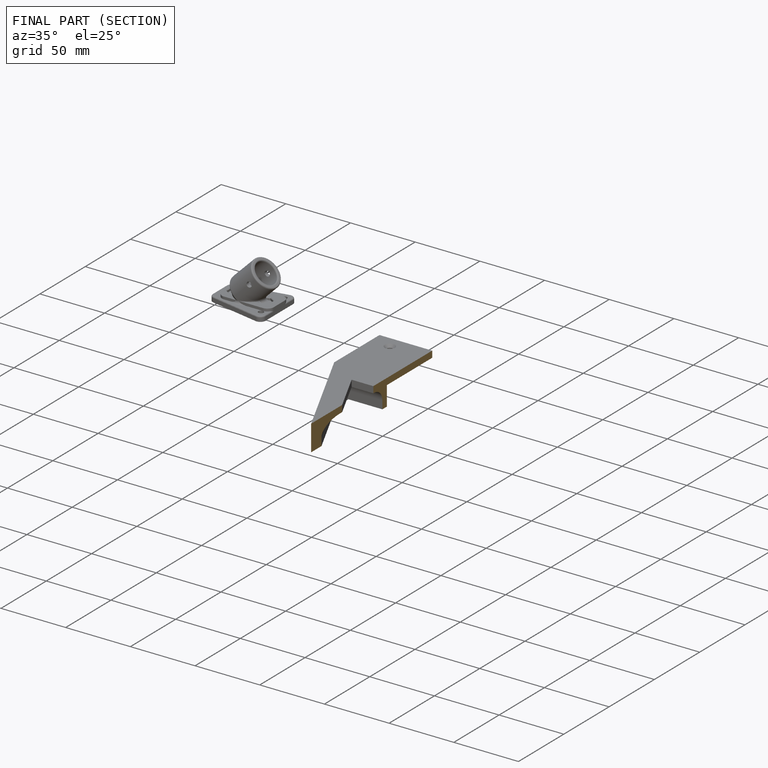
[diagram: finished part — half-section view (interior)]
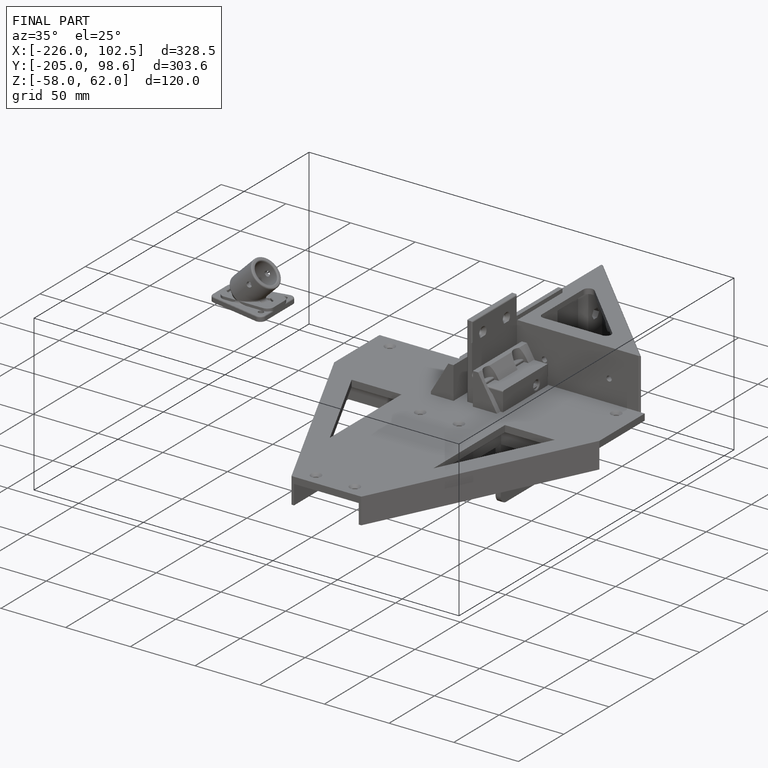
[diagram: finished part — iso view with bounding-box wireframe]
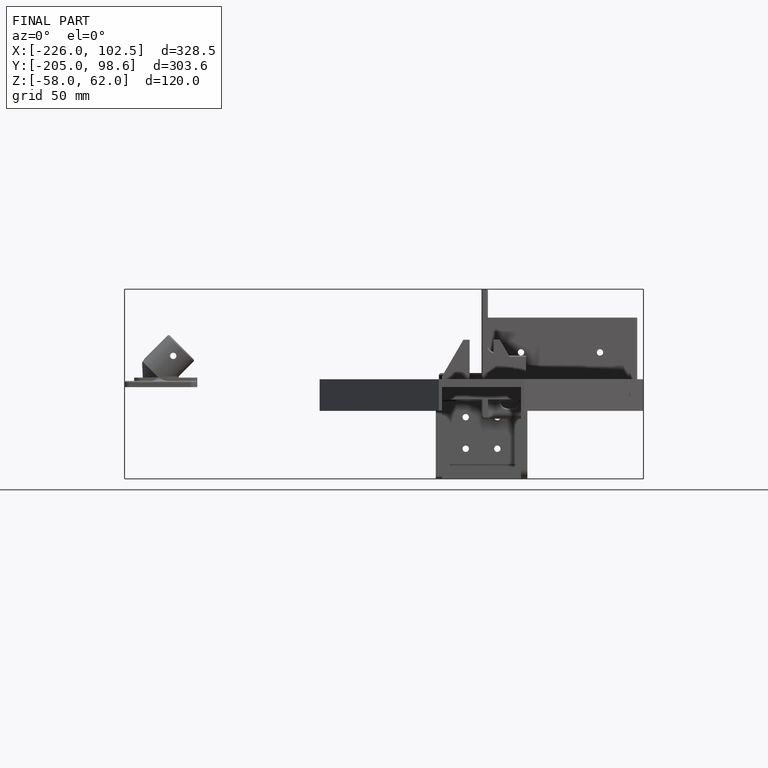
[diagram: finished part — front view with bounding-box wireframe]
